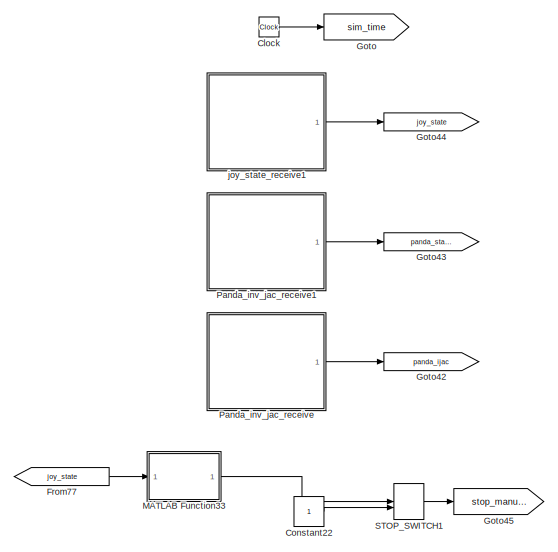
[diagram: root canvas - part 1/12, top left region]
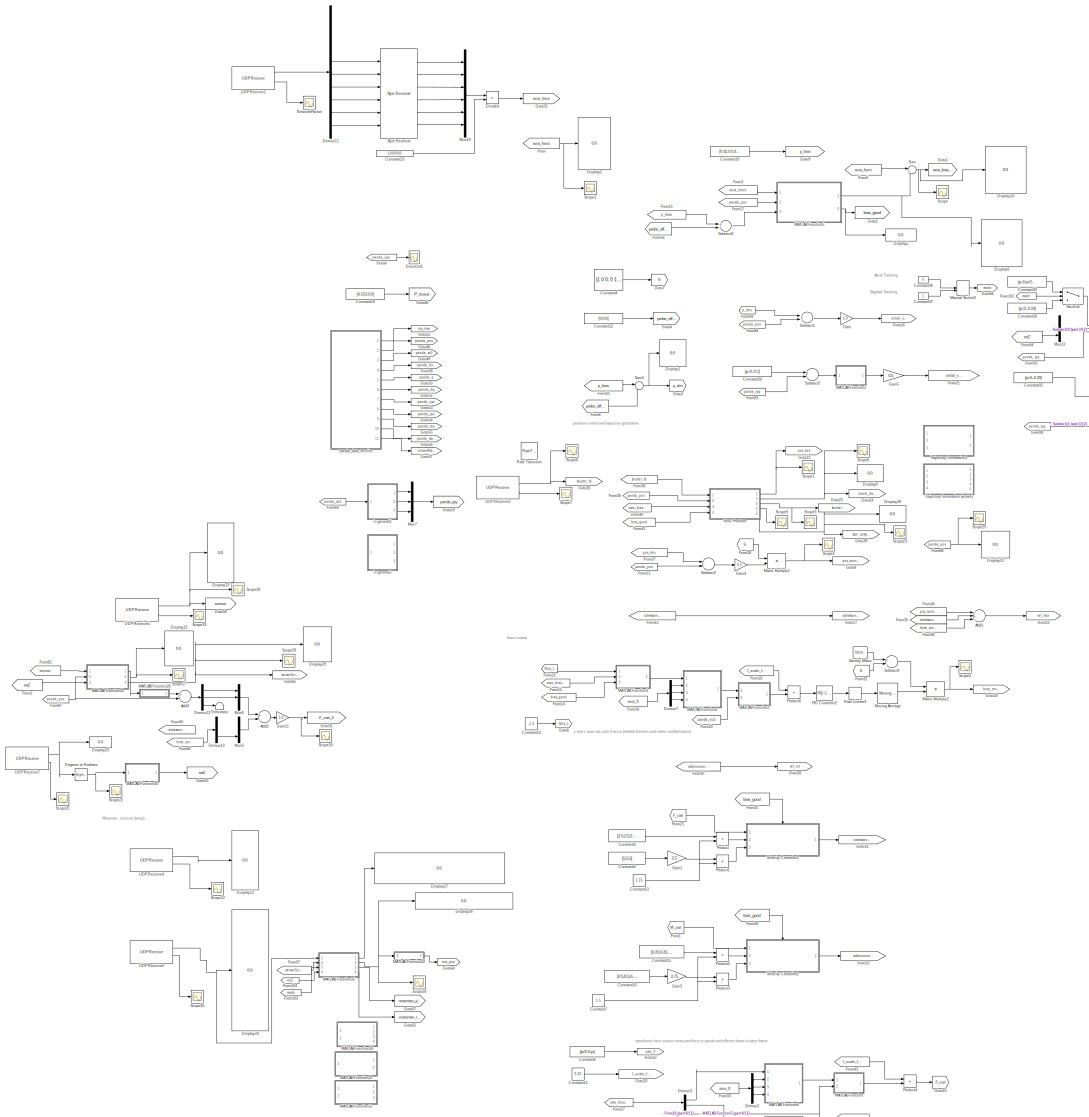
[diagram: root canvas - part 2/12, middle left region]
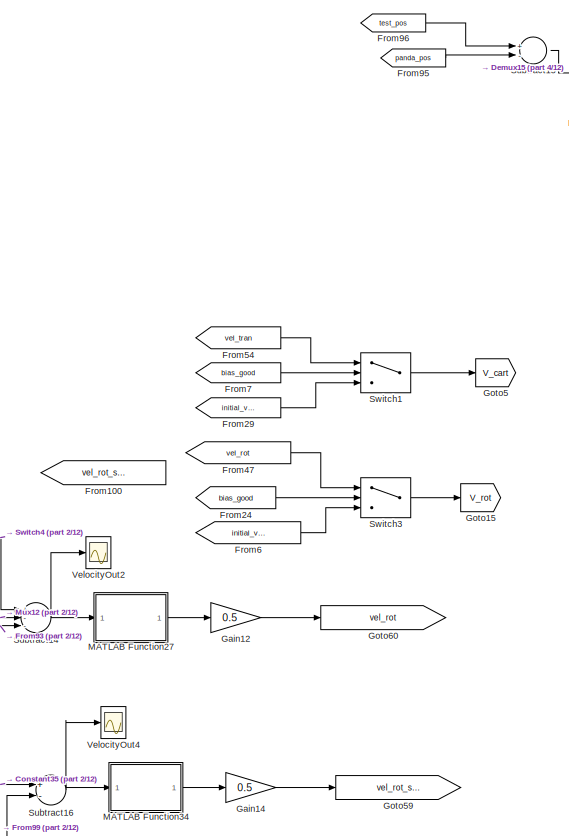
[diagram: root canvas - part 3/12, top center region]
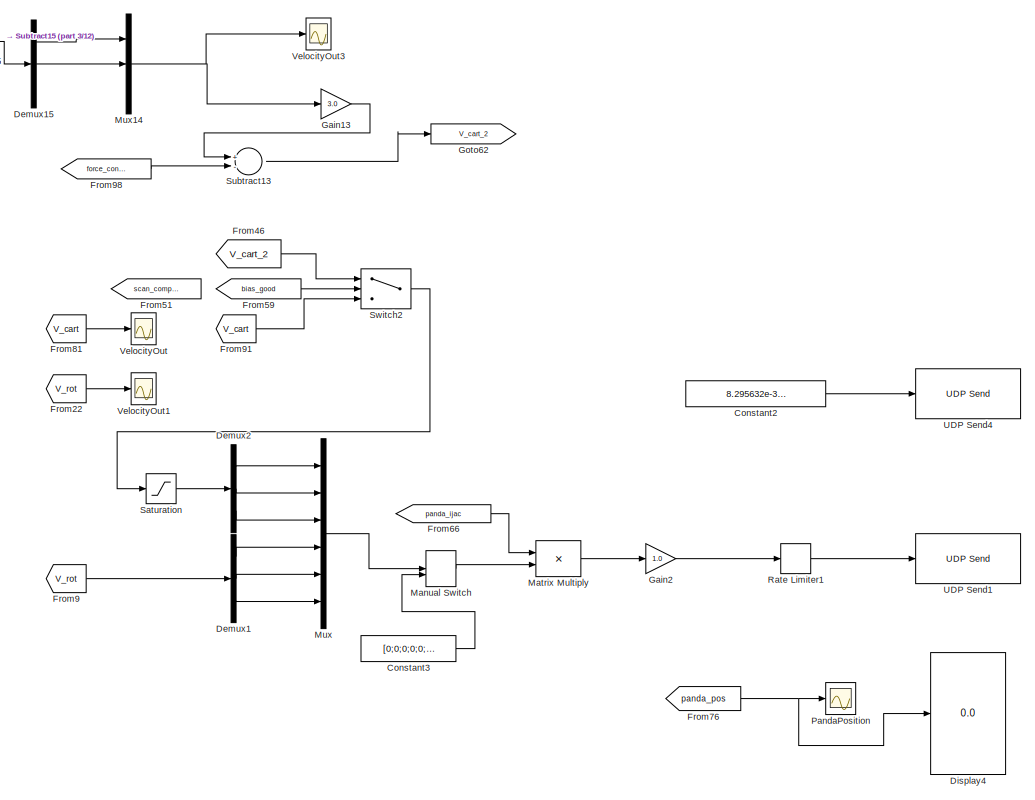
[diagram: root canvas - part 4/12, top center region]
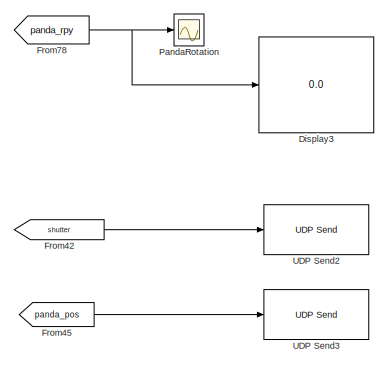
[diagram: root canvas - part 5/12, central region]
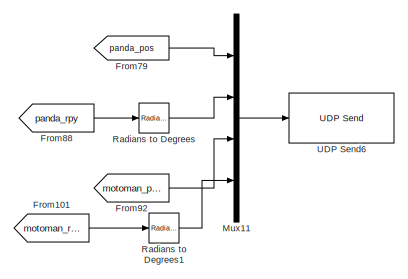
[diagram: root canvas - part 6/12, middle right region]
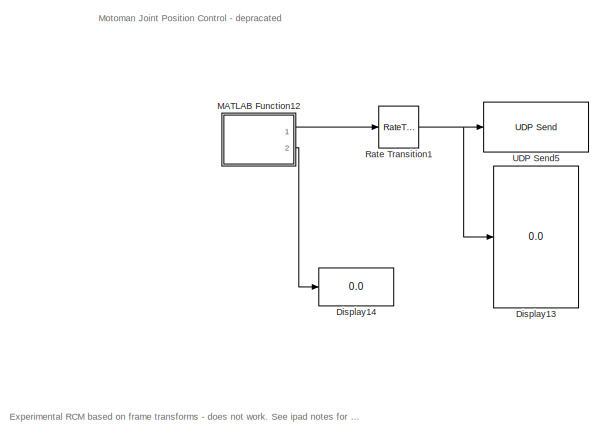
[diagram: root canvas - part 7/12, bottom right region]
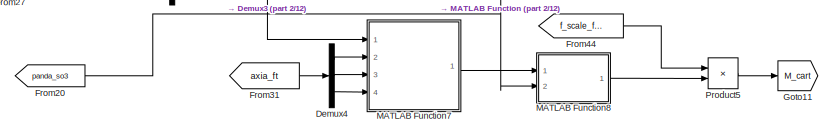
[diagram: root canvas - part 8/12, bottom left region]
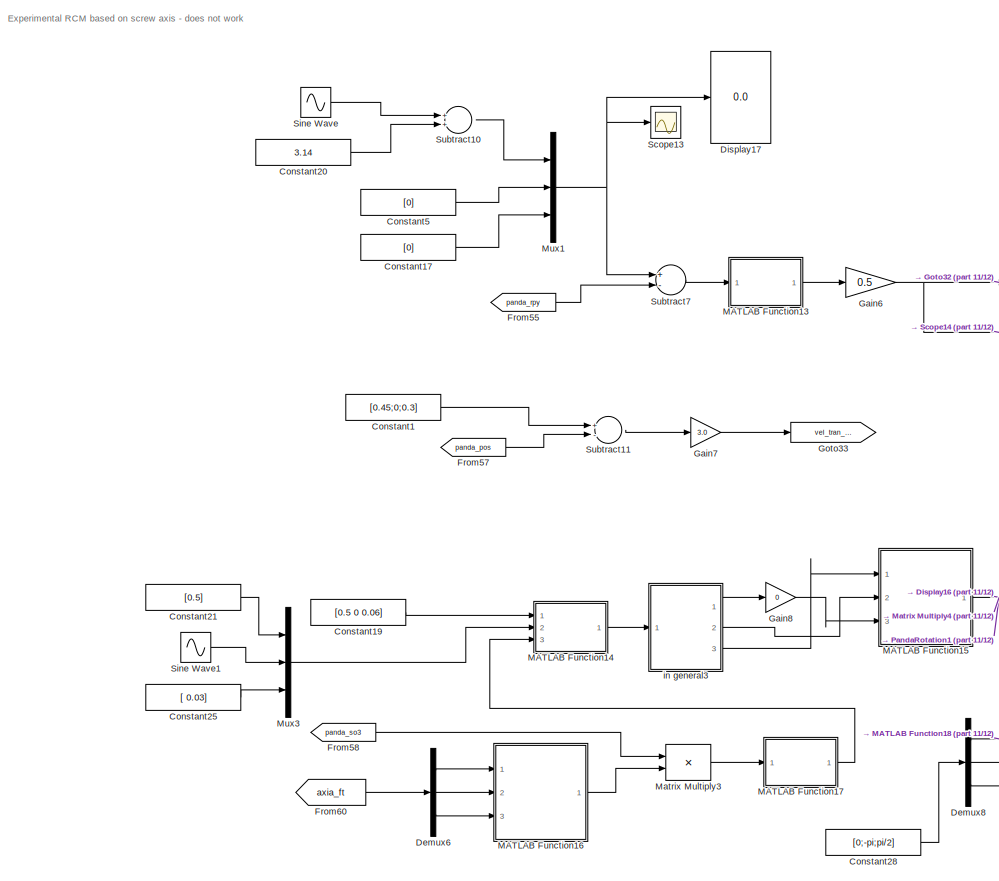
[diagram: root canvas - part 9/12, bottom center region]
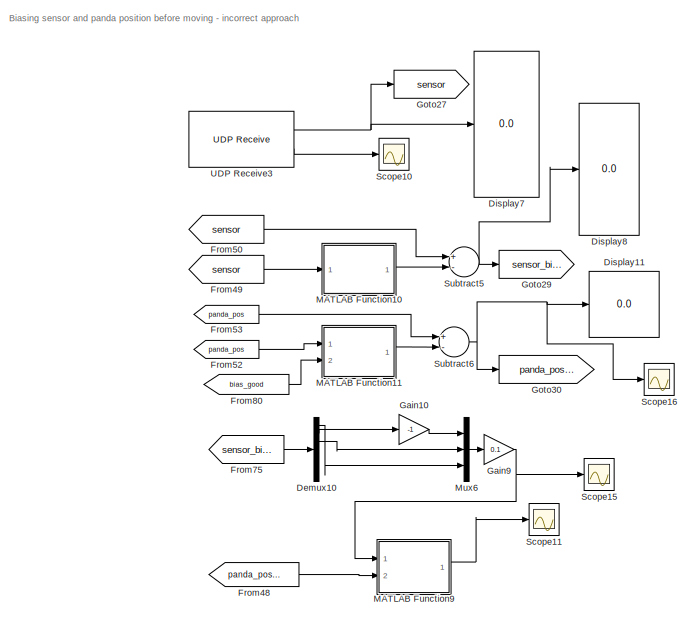
[diagram: root canvas - part 10/12, bottom right region]
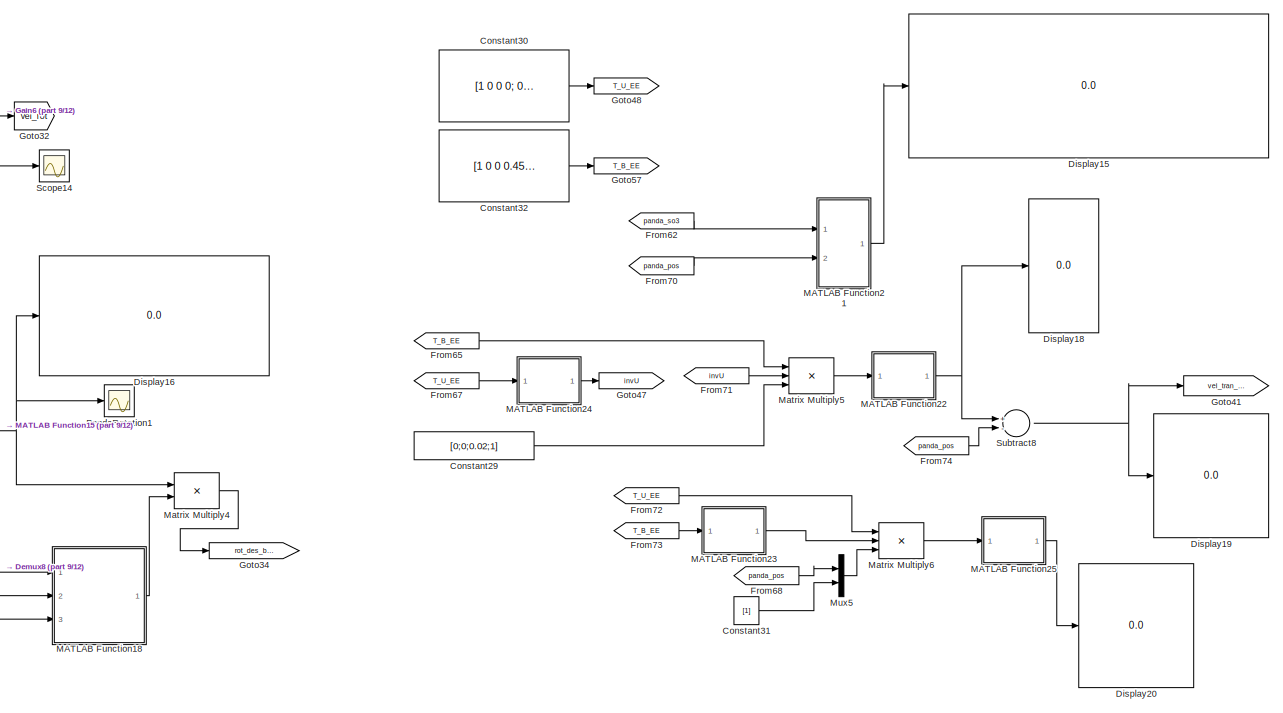
[diagram: root canvas - part 11/12, bottom right region]
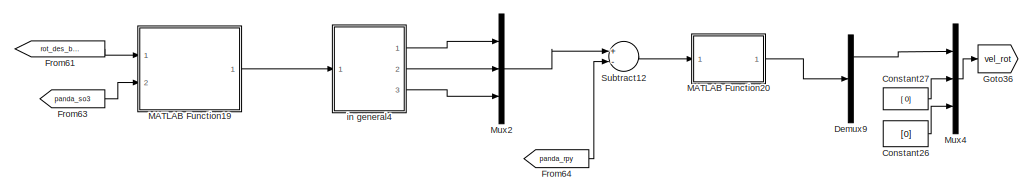
[diagram: root canvas - part 12/12, bottom center region]
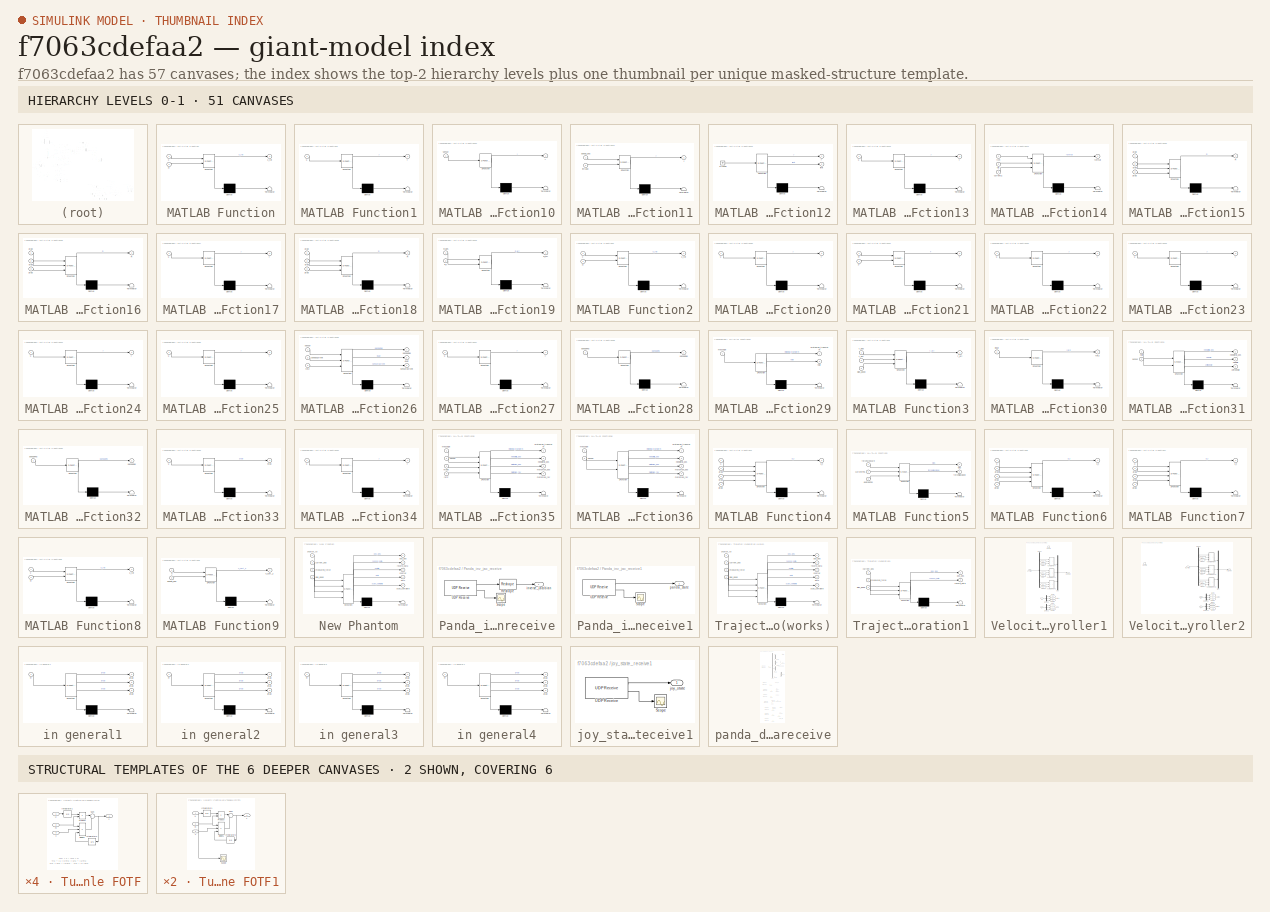
[diagram: thumbnail index - top-2 hierarchy levels (51 canvases) + 2 structural-template representatives of the remaining 6 canvases]
MODEL slx_f7063cdefaa2
KIND model
CONFIG AbsTol = auto
CONFIG EnableMultiTasking = off
CONFIG FixedStep = 0.001
CONFIG MaxStep = auto
CONFIG MinStep = auto
CONFIG RelTol = 1e-3
CONFIG SampleTimeConstraint = Unconstrained
CONFIG Solver = FixedStepAuto
CONFIG SolverName = FixedStepAuto
CONFIG StartTime = 0.0
CONFIG StopTime = inf
BLOCK [Sum] Add1
  InputSameDT = off
  Inputs = ++-
  OutDataTypeStr = Inherit: Inherit via internal rule
  Ports = [3, 1]
  SaturateOnIntegerOverflow = off
BLOCK [Sum] Add2
  InputSameDT = off
  Inputs = +-
  OutDataTypeStr = Inherit: Inherit via internal rule
  Ports = [2, 1]
  SaturateOnIntegerOverflow = off
BLOCK [Sum] Add3
  InputSameDT = off
  Inputs = +-
  OutDataTypeStr = Inherit: Inherit via internal rule
  Ports = [2, 1]
  SaturateOnIntegerOverflow = off
BLOCK [Reference] Byte Reversal  REF=etargetslib/Byte Reversal
  Ports = [6, 6]
  SourceBlock = etargetslib/Byte Reversal
  SourceProductBaseCode = ME
  SourceProductName = MATLAB Coder
  SourceType = Byte Reversal
BLOCK [Clock] Clock
  Decimation = 1
BLOCK [Constant] Constant1
  Commented = on
  Value = [0.45;0;0.3]
BLOCK [Constant] Constant10
  Value = [0.45;0;0.45]
BLOCK [Constant] Constant11
  Value = 0.25
BLOCK [Constant] Constant12
  Value = [0;0;0]
BLOCK [Constant] Constant13
  Value = 2.25
BLOCK [Constant] Constant14
  Value = -1.4
BLOCK [Constant] Constant15
  Commented = on
  Value = [0.25;0.25;0.25]
BLOCK [Constant] Constant16
  Commented = on
  Value = [0.5;0.5;0.5]
BLOCK [Constant] Constant17
  Commented = on
  Value = [0]
BLOCK [Constant] Constant18
  Value = [0.553;0;0]
BLOCK [Constant] Constant19
  Commented = on
  Value = [0.5 0 0.06]
BLOCK [Constant] Constant2
  OutDataTypeStr = double
  Value = 8.295632e-317
BLOCK [Constant] Constant20
  Commented = on
  Value = 3.14
BLOCK [Constant] Constant21
  Commented = on
  Value = [0.5]
BLOCK [Constant] Constant22
BLOCK [Constant] Constant23
  Value = 1000000
BLOCK [Constant] Constant24
  Value = [pi;0;-0.2]
BLOCK [Constant] Constant25
  Commented = on
  Value = [ 0.03]
BLOCK [Constant] Constant26
  Commented = on
  Value = [0]
BLOCK [Constant] Constant27
  Commented = on
  Value = [ 0]
BLOCK [Constant] Constant28
  Commented = on
  Value = [0;-pi;pi/2]
BLOCK [Constant] Constant29
  Commented = on
  Value = [0;0;0.02;1]
BLOCK [Constant] Constant3
  Value = [0;0;0;0;0;0]
BLOCK [Constant] Constant30
  Commented = on
  Value = [1 0 0 0; 0 1 0 0; 0 0 1 -0.05; 0 0 0 1]
BLOCK [Constant] Constant31
  Commented = on
  Value = [1]
BLOCK [Constant] Constant32
  Commented = on
  Value = [1 0 0 0.45; 0 -1 0 0; 0 0 -1 0.3; 0 0 0 1]
BLOCK [Constant] Constant33
  Value = [pi;0;pi/2-0.24]
BLOCK [Constant] Constant34
  Value = [pi;0;-0.24]
BLOCK [Constant] Constant35
  Value = [pi;0;-0.29]
BLOCK [Constant] Constant36
  Value = 0
BLOCK [Constant] Constant37
BLOCK [Constant] Constant4
  Value = [1 0 0; 0 1 0; 0 0 0]
BLOCK [Constant] Constant5
  Commented = on
  Value = [0]
BLOCK [Constant] Constant6
  Value = [pi/2;0;pi]
BLOCK [Constant] Constant7
  Commented = on
  Value = 1.5
BLOCK [Constant] Constant8
  Value = [2.5;2.5;2.5]
BLOCK [Constant] Constant9
  Value = [5;5;5]
BLOCK [Reference] Degrees to Radians  REF=simulink_extras/Transformations/Degrees to
Radians
  Ports = [1, 1]
  SourceBlock = simulink_extras/Transformations/Degrees to\nRadians
  SourceProductBaseCode = SL
  SourceProductName = Simulink
  SourceType = DegreesToRadians
BLOCK [Demux] Demux1
  DisplayOption = bar
  Outputs = 3
  Ports = [1, 3]
BLOCK [Demux] Demux10
  Commented = on
  DisplayOption = bar
  Outputs = 7
  Ports = [1, 7]
BLOCK [Demux] Demux11
  DisplayOption = bar
  Outputs = 9
  Ports = [1, 9]
BLOCK [Demux] Demux12
  DisplayOption = bar
  Outputs = 3
  Ports = [1, 3]
BLOCK [Demux] Demux13
  DisplayOption = bar
  Outputs = 3
  Ports = [1, 3]
BLOCK [Demux] Demux15
  DisplayOption = bar
  Outputs = 3
  Ports = [1, 3]
BLOCK [Demux] Demux2
  DisplayOption = bar
  Outputs = 3
  Ports = [1, 3]
BLOCK [Demux] Demux3
  DisplayOption = bar
  Outputs = 2
  Ports = [1, 2]
BLOCK [Demux] Demux4
  DisplayOption = bar
  Outputs = 3
  Ports = [1, 3]
BLOCK [Demux] Demux5
  DisplayOption = bar
  Outputs = 3
  Ports = [1, 3]
BLOCK [Demux] Demux6
  Commented = on
  DisplayOption = bar
  Outputs = 3
  Ports = [1, 3]
BLOCK [Demux] Demux7
  DisplayOption = bar
  Outputs = 3
  Ports = [1, 3]
BLOCK [Demux] Demux8
  Commented = on
  DisplayOption = bar
  Outputs = 3
  Ports = [1, 3]
BLOCK [Demux] Demux9
  Commented = on
  DisplayOption = bar
  Outputs = 3
  Ports = [1, 3]
BLOCK [Scope] DerivOut1
  Floating = off
  NumInputPorts = 1
  Ports = [1]
  ScopeSpecificationString = Simulink.scopes.TimeScopeBlockCfg('CurrentConfiguration', extmgr.ConfigurationSet(extmgr.Configuration('Core','General UI',true),extmgr.Configuration('Core','Source UI',true),extmgr.Configuration('Sources','WiredSimulink',true,'DataLoggingVariableName','ScopeData3'),extmgr.Configuration('Visuals','Time Domain',true,'SerializedDisplays',{struct('MinYLimReal','-3.25091','MaxYLimReal','3.80484','YLab...<+2513ch>
BLOCK [Display] Display1
  Decimation = 1
  Ports = [1]
BLOCK [Display] Display10
  Decimation = 1
  Ports = [1]
BLOCK [Display] Display11
  Commented = on
  Decimation = 1
  Ports = [1]
BLOCK [Display] Display12
  Decimation = 1
  Ports = [1]
BLOCK [Display] Display13
  Commented = on
  Decimation = 4
  Ports = [1]
BLOCK [Display] Display14
  Commented = on
  Decimation = 4
  Ports = [1]
BLOCK [Display] Display15
  Commented = on
  Decimation = 1
  Ports = [1]
BLOCK [Display] Display16
  Commented = on
  Decimation = 4
  Ports = [1]
BLOCK [Display] Display17
  Commented = on
  Decimation = 1
  Ports = [1]
BLOCK [Display] Display18
  Commented = on
  Decimation = 1
  Ports = [1]
BLOCK [Display] Display19
  Commented = on
  Decimation = 1
  Ports = [1]
BLOCK [Display] Display2
  Decimation = 4
  Ports = [1]
BLOCK [Display] Display20
  Commented = on
  Decimation = 1
  Ports = [1]
BLOCK [Display] Display21
  Decimation = 1
  Ports = [1]
BLOCK [Display] Display22
  Decimation = 1
  Ports = [1]
BLOCK [Display] Display23
  Decimation = 1
  Ports = [1]
BLOCK [Display] Display24
  Decimation = 1
  Ports = [1]
BLOCK [Display] Display25
  Decimation = 1
  Ports = [1]
BLOCK [Display] Display26
  Decimation = 1
  Ports = [1]
BLOCK [Display] Display27
  Decimation = 1
  Ports = [1]
BLOCK [Display] Display28
  Decimation = 1
  Ports = [1]
BLOCK [Display] Display29
  Decimation = 1
  Ports = [1]
BLOCK [Display] Display3
  Decimation = 4
  Format = long
  Ports = [1]
BLOCK [Display] Display4
  Decimation = 4
  Ports = [1]
BLOCK [Display] Display5
  Decimation = 1
  Ports = [1]
BLOCK [Display] Display6
  Decimation = 1
  Ports = [1]
BLOCK [Display] Display7
  Commented = on
  Decimation = 1
  Ports = [1]
BLOCK [Display] Display8
  Commented = on
  Decimation = 1
  Ports = [1]
BLOCK [Display] Display9
  Decimation = 1
  Ports = [1]
BLOCK [Product] Divide4
  InputSameDT = off
  Inputs = */
  OutDataTypeStr = double
  Ports = [2, 1]
  RndMeth = Floor
  SaturateOnIntegerOverflow = off
BLOCK [From] From
  GotoTag = axia_force
BLOCK [From] From1
  Commented = on
  GotoTag = M_cart
BLOCK [From] From10
  GotoTag = p_bias
BLOCK [From] From100
  Commented = on
  GotoTag = vel_rot_scan
BLOCK [From] From101
  GotoTag = motoman_rpy
BLOCK [From] From102
  GotoTag = mode
BLOCK [From] From103
  GotoTag = mode
BLOCK [From] From104
  GotoTag = rotZ
BLOCK [From] From11
  GotoTag = p_bias
BLOCK [From] From12
  Commented = on
  GotoTag = admission_vel_cart
BLOCK [From] From13
  GotoTag = panda_pos
BLOCK [From] From14
  GotoTag = bias_good
BLOCK [From] From15
  GotoTag = axia_biased
BLOCK [From] From16
  GotoTag = axia_ft
BLOCK [From] From17
  GotoTag = panda_pos
BLOCK [From] From18
  GotoTag = f_scale_factor
BLOCK [From] From19
  GotoTag = panda_so3
BLOCK [From] From2
  GotoTag = rotZ
BLOCK [From] From20
  GotoTag = panda_so3
BLOCK [From] From21
  GotoTag = F_cart
BLOCK [From] From22
  GotoTag = V_rot
BLOCK [From] From23
  GotoTag = fdes_z
BLOCK [From] From24
  GotoTag = bias_good
BLOCK [From] From25
  GotoTag = bias_good
BLOCK [From] From26
  Commented = on
  GotoTag = bias_good
BLOCK [From] From27
  GotoTag = axia_biased
BLOCK [From] From28
  GotoTag = S
BLOCK [From] From29
  GotoTag = initial_vel_tran
BLOCK [From] From3
  GotoTag = axia_force
BLOCK [From] From30
  Commented = on
  GotoTag = admission_vel_rot
BLOCK [From] From31
  GotoTag = axia_ft
BLOCK [From] From32
  GotoTag = S
BLOCK [From] From33
  GotoTag = axia_ft
BLOCK [From] From34
  GotoTag = pos_control
BLOCK [From] From35
  GotoTag = admission_control
BLOCK [From] From36
  GotoTag = force_control
BLOCK [From] From37
  GotoTag = pos_des
BLOCK [From] From38
  GotoTag = shutter_fb
BLOCK [From] From39
  GotoTag = panda_pos
BLOCK [From] From4
  GotoTag = panda_ijac
BLOCK [From] From40
  GotoTag = axia_biased
BLOCK [From] From41
  GotoTag = bias_good
BLOCK [From] From42
  GotoTag = shutter
BLOCK [From] From43
  GotoTag = f_scale_factor
BLOCK [From] From44
  GotoTag = f_scale_factor
BLOCK [From] From45
  GotoTag = panda_pos
BLOCK [From] From46
  GotoTag = V_cart_2
BLOCK [From] From47
  GotoTag = vel_rot
BLOCK [From] From48
  Commented = on
  GotoTag = panda_pos_biased
BLOCK [From] From49
  Commented = on
  GotoTag = sensor
BLOCK [From] From5
  GotoTag = axia_force
BLOCK [From] From50
  Commented = on
  GotoTag = sensor
BLOCK [From] From51
  Commented = on
  GotoTag = scan_complete
BLOCK [From] From52
  Commented = on
  GotoTag = panda_pos
BLOCK [From] From53
  Commented = on
  GotoTag = panda_pos
BLOCK [From] From54
  GotoTag = vel_tran
BLOCK [From] From55
  Commented = on
  GotoTag = panda_rpy
BLOCK [From] From56
  GotoTag = probe_offset
BLOCK [From] From57
  Commented = on
  GotoTag = panda_pos
BLOCK [From] From58
  Commented = on
  GotoTag = panda_so3
BLOCK [From] From59
  GotoTag = bias_good
BLOCK [From] From6
  GotoTag = initial_vel_rot
BLOCK [From] From60
  Commented = on
  GotoTag = axia_ft
BLOCK [From] From61
  Commented = on
  GotoTag = rot_des_bf2
BLOCK [From] From62
  Commented = on
  GotoTag = panda_so3
BLOCK [From] From63
  Commented = on
  GotoTag = panda_so3
BLOCK [From] From64
  Commented = on
  GotoTag = panda_rpy
BLOCK [From] From65
  Commented = on
  GotoTag = T_B_EE
BLOCK [From] From66
  GotoTag = panda_ijac
BLOCK [From] From67
  Commented = on
  GotoTag = T_U_EE
BLOCK [From] From68
  Commented = on
  GotoTag = panda_pos
BLOCK [From] From69
  GotoTag = panda_so3
BLOCK [From] From7
  GotoTag = bias_good
BLOCK [From] From70
  Commented = on
  GotoTag = panda_pos
BLOCK [From] From71
  Commented = on
  GotoTag = invU
BLOCK [From] From72
  Commented = on
  GotoTag = T_U_EE
BLOCK [From] From73
  Commented = on
  GotoTag = T_B_EE
BLOCK [From] From74
  Commented = on
  GotoTag = panda_pos
BLOCK [From] From75
  Commented = on
  GotoTag = sensor_biased
BLOCK [From] From76
  GotoTag = panda_pos
BLOCK [From] From77
  GotoTag = joy_state
BLOCK [From] From78
  GotoTag = panda_rpy
BLOCK [From] From79
  GotoTag = panda_pos
BLOCK [From] From8
  GotoTag = probe_offset
BLOCK [From] From80
  Commented = on
  GotoTag = bias_good
BLOCK [From] From81
  GotoTag = V_cart
BLOCK [From] From82
  GotoTag = force_control
BLOCK [From] From83
  GotoTag = panda_rpy
BLOCK [From] From84
  GotoTag = panda_pos
BLOCK [From] From85
  GotoTag = sensor
BLOCK [From] From86
  GotoTag = panda_pos
BLOCK [From] From87
  GotoTag = panda_pos
BLOCK [From] From88
  GotoTag = panda_rpy
BLOCK [From] From89
  GotoTag = p_des
BLOCK [From] From9
  GotoTag = V_rot
BLOCK [From] From90
  Commented = on
  GotoTag = admission_control
BLOCK [From] From91
  GotoTag = V_cart
BLOCK [From] From92
  GotoTag = motoman_pos
BLOCK [From] From93
  GotoTag = panda_rpy
BLOCK [From] From94
  GotoTag = rotZ
BLOCK [From] From95
  GotoTag = panda_pos
BLOCK [From] From96
  GotoTag = test_pos
BLOCK [From] From97
  GotoTag = sensorCurrent
BLOCK [From] From98
  GotoTag = force_control
BLOCK [From] From99
  GotoTag = panda_rpy
BLOCK [Gain] Gain
  Gain = 3.0
  OutDataTypeStr = Inherit: Inherit via internal rule
  ParamDataTypeStr = Inherit: Inherit via internal rule
  SaturateOnIntegerOverflow = off
BLOCK [Gain] Gain1
  Gain = 2.5
  OutDataTypeStr = Inherit: Inherit via internal rule
  ParamDataTypeStr = Inherit: Inherit via internal rule
  SaturateOnIntegerOverflow = off
BLOCK [Gain] Gain10
  Commented = on
  Gain = -1
  OutDataTypeStr = Inherit: Inherit via internal rule
  ParamDataTypeStr = Inherit: Inherit via internal rule
  SaturateOnIntegerOverflow = off
BLOCK [Gain] Gain11
  Gain = 3.0
  OutDataTypeStr = Inherit: Inherit via internal rule
  ParamDataTypeStr = Inherit: Inherit via internal rule
  SaturateOnIntegerOverflow = off
BLOCK [Gain] Gain12
  Gain = 0.5
  OutDataTypeStr = Inherit: Inherit via internal rule
  ParamDataTypeStr = Inherit: Inherit via internal rule
  SaturateOnIntegerOverflow = off
BLOCK [Gain] Gain13
  Gain = 3.0
  OutDataTypeStr = Inherit: Inherit via internal rule
  ParamDataTypeStr = Inherit: Inherit via internal rule
  SaturateOnIntegerOverflow = off
BLOCK [Gain] Gain14
  Gain = 0.5
  OutDataTypeStr = Inherit: Inherit via internal rule
  ParamDataTypeStr = Inherit: Inherit via internal rule
  SaturateOnIntegerOverflow = off
BLOCK [Gain] Gain2
  Gain = 1.0
  OutDataTypeStr = Inherit: Inherit via internal rule
  ParamDataTypeStr = Inherit: Inherit via internal rule
  SaturateOnIntegerOverflow = off
BLOCK [Gain] Gain3
  Commented = on
  Gain = 2.75
  OutDataTypeStr = Inherit: Inherit via internal rule
  ParamDataTypeStr = Inherit: Inherit via internal rule
  SaturateOnIntegerOverflow = off
BLOCK [Gain] Gain4
  Gain = 0.5
  OutDataTypeStr = Inherit: Inherit via internal rule
  ParamDataTypeStr = Inherit: Inherit via internal rule
  SaturateOnIntegerOverflow = off
BLOCK [Gain] Gain5
  Gain = 0.5
  OutDataTypeStr = Inherit: Inherit via internal rule
  ParamDataTypeStr = Inherit: Inherit via internal rule
  SaturateOnIntegerOverflow = off
BLOCK [Gain] Gain6
  Commented = on
  Gain = 0.5
  OutDataTypeStr = Inherit: Inherit via internal rule
  ParamDataTypeStr = Inherit: Inherit via internal rule
  SaturateOnIntegerOverflow = off
BLOCK [Gain] Gain7
  Commented = on
  Gain = 3.0
  OutDataTypeStr = Inherit: Inherit via internal rule
  ParamDataTypeStr = Inherit: Inherit via internal rule
  SaturateOnIntegerOverflow = off
BLOCK [Gain] Gain8
  Commented = on
  Gain = 0
  OutDataTypeStr = Inherit: Inherit via internal rule
  ParamDataTypeStr = Inherit: Inherit via internal rule
  SaturateOnIntegerOverflow = off
BLOCK [Gain] Gain9
  Commented = on
  Gain = 0.1
  OutDataTypeStr = Inherit: Inherit via internal rule
  ParamDataTypeStr = Inherit: Inherit via internal rule
  SaturateOnIntegerOverflow = off
BLOCK [Goto] Goto
  GotoTag = sim_time
BLOCK [Goto] Goto1
  GotoTag = axia_biased
BLOCK [Goto] Goto10
  GotoTag = F_cart
BLOCK [Goto] Goto11
  GotoTag = M_cart
BLOCK [Goto] Goto12
  GotoTag = axia_ft
BLOCK [Goto] Goto13
  Commented = on
  GotoTag = admission_vel_rot
BLOCK [Goto] Goto14
  GotoTag = admission_vel_cart
BLOCK [Goto] Goto15
  GotoTag = V_rot
BLOCK [Goto] Goto16
  GotoTag = initial_vel_tran
BLOCK [Goto] Goto17
  Commented = on
  GotoTag = admission_control
BLOCK [Goto] Goto18
  GotoTag = force_control
BLOCK [Goto] Goto19
  GotoTag = panda_rpy
BLOCK [Goto] Goto2
  GotoTag = bias_good
BLOCK [Goto] Goto20
  GotoTag = f_scale_factor
BLOCK [Goto] Goto21
  GotoTag = initial_vel_rot
BLOCK [Goto] Goto22
  GotoTag = vel_tran
BLOCK [Goto] Goto23
  GotoTag = pos_des
BLOCK [Goto] Goto24
  GotoTag = record_data
BLOCK [Goto] Goto25
  GotoTag = shutter
BLOCK [Goto] Goto26
  GotoTag = shutter_fb
BLOCK [Goto] Goto27
  Commented = on
  GotoTag = sensor
BLOCK [Goto] Goto28
  Commented = on
  GotoTag = vel_rot
BLOCK [Goto] Goto29
  Commented = on
  GotoTag = sensor_biased
BLOCK [Goto] Goto3
  GotoTag = p_des
BLOCK [Goto] Goto30
  Commented = on
  GotoTag = panda_pos_biased
BLOCK [Goto] Goto31
  Commented = on
  GotoTag = V_cart_2
BLOCK [Goto] Goto32
  Commented = on
  GotoTag = vel_rot
BLOCK [Goto] Goto33
  Commented = on
  GotoTag = vel_tran_temp
BLOCK [Goto] Goto34
  Commented = on
  GotoTag = rot_des_bf2
BLOCK [Goto] Goto35
  GotoTag = axia_force
BLOCK [Goto] Goto36
  Commented = on
  GotoTag = vel_rot
BLOCK [Goto] Goto37
  GotoTag = networkVals
BLOCK [Goto] Goto38
  GotoTag = panda_force
BLOCK [Goto] Goto39
  GotoTag = scan_complete
BLOCK [Goto] Goto4
  GotoTag = probe_offset
BLOCK [Goto] Goto40
  GotoTag = P_tissue
BLOCK [Goto] Goto41
  Commented = on
  GotoTag = vel_tran_temp
BLOCK [Goto] Goto42
  Commented = on
  GotoTag = panda_ijac
BLOCK [Goto] Goto43
  Commented = on
  GotoTag = panda_state
BLOCK [Goto] Goto44
  GotoTag = joy_state
BLOCK [Goto] Goto45
  GotoTag = stop_manual
BLOCK [Goto] Goto46
  GotoTag = panda_pos
BLOCK [Goto] Goto47
  Commented = on
  GotoTag = invU
BLOCK [Goto] Goto48
  Commented = on
  GotoTag = T_U_EE
BLOCK [Goto] Goto49
  GotoTag = panda_so3
BLOCK [Goto] Goto5
  GotoTag = V_cart
BLOCK [Goto] Goto50
  GotoTag = panda_q
BLOCK [Goto] Goto51
  GotoTag = panda_dq
BLOCK [Goto] Goto52
  GotoTag = ros_time
BLOCK [Goto] Goto53
  GotoTag = panda_ijac
BLOCK [Goto] Goto54
  GotoTag = panda_jac
BLOCK [Goto] Goto55
  GotoTag = panda_tau
BLOCK [Goto] Goto56
  GotoTag = panda_state
BLOCK [Goto] Goto57
  Commented = on
  GotoTag = T_B_EE
BLOCK [Goto] Goto58
  GotoTag = sensor
BLOCK [Goto] Goto59
  GotoTag = vel_rot_scan
BLOCK [Goto] Goto6
  GotoTag = fdes_z
BLOCK [Goto] Goto60
  GotoTag = vel_rot
BLOCK [Goto] Goto61
  GotoTag = motoman_rpy
BLOCK [Goto] Goto62
  GotoTag = V_cart_2
BLOCK [Goto] Goto63
  GotoTag = rotZ
BLOCK [Goto] Goto64
  GotoTag = test_pos
BLOCK [Goto] Goto65
  GotoTag = sensorCurrent
BLOCK [Goto] Goto66
  GotoTag = mode
BLOCK [Goto] Goto67
  GotoTag = motoman_pos
BLOCK [Goto] Goto7
  GotoTag = S
BLOCK [Goto] Goto8
  GotoTag = pos_control
BLOCK [Goto] Goto9
  GotoTag = p_bias
BLOCK [Reference] Identity Matrix  REF=dspmtrx3/Identity Matrix
  Ports = [0, 1]
  SourceBlock = dspmtrx3/Identity Matrix
  SourceProductBaseCode = DS
  SourceProductName = DSP System Toolbox
  SourceType = Identity Matrix
BLOCK [SubSystem] MATLAB Function
  ErrorFcn = Stateflow.Translate.translate
  PermitHierarchicalResolution = ExplicitOnly
  Ports = [2, 1]
  RequestExecContextInheritance = off
  SFBlockType = MATLAB Function
  TreatAsAtomicUnit = on
BLOCK [Demux] MATLAB Function/ Demux 
  Outputs = 1
  Ports = [1, 1]
BLOCK [S-Function] MATLAB Function/ SFunction 
  EnableBusSupport = on
  FunctionName = sf_sfun
  PortCounts = [2 2]
  Ports = [2, 2]
  SFcnIsStateOwnerBlock = off
  SFunctionDeploymentMode = off
  Tag = Stateflow S-Function AutonomousScan 5
BLOCK [Terminator] MATLAB Function/ Terminator 
BLOCK [Inport] MATLAB Function/R
  IconDisplay = Port number
  Port = 2
BLOCK [Inport] MATLAB Function/x
  IconDisplay = Port number
BLOCK [Outport] MATLAB Function/x_rot
  IconDisplay = Port number
BLOCK [SubSystem] MATLAB Function1
  ErrorFcn = Stateflow.Translate.translate
  PermitHierarchicalResolution = ExplicitOnly
  Ports = [1, 1]
  RequestExecContextInheritance = off
  SFBlockType = MATLAB Function
  TreatAsAtomicUnit = on
BLOCK [Demux] MATLAB Function1/ Demux 
  Outputs = 1
  Ports = [1, 1]
BLOCK [S-Function] MATLAB Function1/ SFunction 
  EnableBusSupport = on
  FunctionName = sf_sfun
  PortCounts = [1 2]
  Ports = [1, 2]
  SFcnIsStateOwnerBlock = off
  SFunctionDeploymentMode = off
  Tag = Stateflow S-Function AutonomousScan 1
BLOCK [Terminator] MATLAB Function1/ Terminator 
BLOCK [Inport] MATLAB Function1/u
  IconDisplay = Port number
BLOCK [Outport] MATLAB Function1/y
  IconDisplay = Port number
BLOCK [SubSystem] MATLAB Function10
  Commented = on
  ErrorFcn = Stateflow.Translate.translate
  PermitHierarchicalResolution = ExplicitOnly
  Ports = [1, 1]
  RequestExecContextInheritance = off
  SFBlockType = MATLAB Function
  TreatAsAtomicUnit = on
BLOCK [Demux] MATLAB Function10/ Demux 
  Outputs = 1
  Ports = [1, 1]
BLOCK [S-Function] MATLAB Function10/ SFunction 
  EnableBusSupport = on
  FunctionName = sf_sfun
  PortCounts = [1 2]
  Ports = [1, 2]
  SFcnIsStateOwnerBlock = off
  SFunctionDeploymentMode = off
  Tag = Stateflow S-Function AutonomousScan 14
BLOCK [Terminator] MATLAB Function10/ Terminator 
BLOCK [Inport] MATLAB Function10/sensor
  IconDisplay = Port number
BLOCK [Outport] MATLAB Function10/y
  IconDisplay = Port number
BLOCK [SubSystem] MATLAB Function11
  Commented = on
  ErrorFcn = Stateflow.Translate.translate
  PermitHierarchicalResolution = ExplicitOnly
  Ports = [2, 1]
  RequestExecContextInheritance = off
  SFBlockType = MATLAB Function
  TreatAsAtomicUnit = on
BLOCK [Demux] MATLAB Function11/ Demux 
  Outputs = 1
  Ports = [1, 1]
BLOCK [S-Function] MATLAB Function11/ SFunction 
  EnableBusSupport = on
  FunctionName = sf_sfun
  PortCounts = [2 2]
  Ports = [2, 2]
  SFcnIsStateOwnerBlock = off
  SFunctionDeploymentMode = off
  Tag = Stateflow S-Function AutonomousScan 15
BLOCK [Terminator] MATLAB Function11/ Terminator 
BLOCK [Inport] MATLAB Function11/intraop
  IconDisplay = Port number
  Port = 2
BLOCK [Inport] MATLAB Function11/panda_pos
  IconDisplay = Port number
BLOCK [Outport] MATLAB Function11/y
  IconDisplay = Port number
BLOCK [SubSystem] MATLAB Function12
  Commented = on
  ErrorFcn = Stateflow.Translate.translate
  PermitHierarchicalResolution = ExplicitOnly
  Ports = [0, 2]
  RequestExecContextInheritance = off
  SFBlockType = MATLAB Function
  TreatAsAtomicUnit = on
BLOCK [Demux] MATLAB Function12/ Demux 
  Outputs = 1
  Ports = [1, 1]
BLOCK [Ground] MATLAB Function12/ Ground 
BLOCK [S-Function] MATLAB Function12/ SFunction 
  EnableBusSupport = on
  FunctionName = sf_sfun
  PortCounts = [1 3]
  Ports = [1, 3]
  SFcnIsStateOwnerBlock = off
  SFunctionDeploymentMode = off
  Tag = Stateflow S-Function AutonomousScan 16
BLOCK [Terminator] MATLAB Function12/ Terminator 
BLOCK [Outport] MATLAB Function12/limit
  IconDisplay = Port number
  Port = 2
BLOCK [Outport] MATLAB Function12/y
  IconDisplay = Port number
BLOCK [SubSystem] MATLAB Function13
  Commented = on
  ErrorFcn = Stateflow.Translate.translate
  PermitHierarchicalResolution = ExplicitOnly
  Ports = [1, 1]
  RequestExecContextInheritance = off
  SFBlockType = MATLAB Function
  TreatAsAtomicUnit = on
BLOCK [Demux] MATLAB Function13/ Demux 
  Outputs = 1
  Ports = [1, 1]
BLOCK [S-Function] MATLAB Function13/ SFunction 
  EnableBusSupport = on
  FunctionName = sf_sfun
  PortCounts = [1 2]
  Ports = [1, 2]
  SFcnIsStateOwnerBlock = off
  SFunctionDeploymentMode = off
  Tag = Stateflow S-Function AutonomousScan 17
BLOCK [Terminator] MATLAB Function13/ Terminator 
BLOCK [Inport] MATLAB Function13/u
  IconDisplay = Port number
BLOCK [Outport] MATLAB Function13/y
  IconDisplay = Port number
BLOCK [SubSystem] MATLAB Function14
  Commented = on
  ErrorFcn = Stateflow.Translate.translate
  PermitHierarchicalResolution = ExplicitOnly
  Ports = [3, 1]
  RequestExecContextInheritance = off
  SFBlockType = MATLAB Function
  TreatAsAtomicUnit = on
BLOCK [Demux] MATLAB Function14/ Demux 
  Outputs = 1
  Ports = [1, 1]
BLOCK [S-Function] MATLAB Function14/ SFunction 
  EnableBusSupport = on
  FunctionName = sf_sfun
  PortCounts = [3 2]
  Ports = [3, 2]
  SFcnIsStateOwnerBlock = off
  SFunctionDeploymentMode = off
  Tag = Stateflow S-Function AutonomousScan 18
BLOCK [Terminator] MATLAB Function14/ Terminator 
BLOCK [Inport] MATLAB Function14/currentZ
  IconDisplay = Port number
  Port = 3
BLOCK [Inport] MATLAB Function14/rcm
  IconDisplay = Port number
BLOCK [Outport] MATLAB Function14/rotmat
  IconDisplay = Port number
BLOCK [Inport] MATLAB Function14/tip
  IconDisplay = Port number
  Port = 2
BLOCK [SubSystem] MATLAB Function15
  Commented = on
  ErrorFcn = Stateflow.Translate.translate
  PermitHierarchicalResolution = ExplicitOnly
  Ports = [3, 1]
  RequestExecContextInheritance = off
  SFBlockType = MATLAB Function
  TreatAsAtomicUnit = on
BLOCK [Demux] MATLAB Function15/ Demux 
  Outputs = 1
  Ports = [1, 1]
BLOCK [S-Function] MATLAB Function15/ SFunction 
  EnableBusSupport = on
  FunctionName = sf_sfun
  PortCounts = [3 2]
  Ports = [3, 2]
  SFcnIsStateOwnerBlock = off
  SFunctionDeploymentMode = off
  Tag = Stateflow S-Function AutonomousScan 20
BLOCK [Terminator] MATLAB Function15/ Terminator 
BLOCK [Outport] MATLAB Function15/R
  IconDisplay = Port number
BLOCK [Inport] MATLAB Function15/arad
  IconDisplay = Port number
BLOCK [Inport] MATLAB Function15/brad
  IconDisplay = Port number
  Port = 2
BLOCK [Inport] MATLAB Function15/grad
  IconDisplay = Port number
  Port = 3
BLOCK [SubSystem] MATLAB Function16
  Commented = on
  ErrorFcn = Stateflow.Translate.translate
  PermitHierarchicalResolution = ExplicitOnly
  Ports = [3, 1]
  RequestExecContextInheritance = off
  SFBlockType = MATLAB Function
  TreatAsAtomicUnit = on
BLOCK [Demux] MATLAB Function16/ Demux 
  Outputs = 1
  Ports = [1, 1]
BLOCK [S-Function] MATLAB Function16/ SFunction 
  EnableBusSupport = on
  FunctionName = sf_sfun
  PortCounts = [3 2]
  Ports = [3, 2]
  SFcnIsStateOwnerBlock = off
  SFunctionDeploymentMode = off
  Tag = Stateflow S-Function AutonomousScan 21
BLOCK [Terminator] MATLAB Function16/ Terminator 
BLOCK [Outport] MATLAB Function16/R
  IconDisplay = Port number
BLOCK [Inport] MATLAB Function16/arad
  IconDisplay = Port number
BLOCK [Inport] MATLAB Function16/brad
  IconDisplay = Port number
  Port = 2
BLOCK [Inport] MATLAB Function16/grad
  IconDisplay = Port number
  Port = 3
BLOCK [SubSystem] MATLAB Function17
  Commented = on
  ErrorFcn = Stateflow.Translate.translate
  PermitHierarchicalResolution = ExplicitOnly
  Ports = [1, 1]
  RequestExecContextInheritance = off
  SFBlockType = MATLAB Function
  TreatAsAtomicUnit = on
BLOCK [Demux] MATLAB Function17/ Demux 
  Outputs = 1
  Ports = [1, 1]
BLOCK [S-Function] MATLAB Function17/ SFunction 
  EnableBusSupport = on
  FunctionName = sf_sfun
  PortCounts = [1 2]
  Ports = [1, 2]
  SFcnIsStateOwnerBlock = off
  SFunctionDeploymentMode = off
  Tag = Stateflow S-Function AutonomousScan 90
BLOCK [Terminator] MATLAB Function17/ Terminator 
BLOCK [Inport] MATLAB Function17/u
  IconDisplay = Port number
BLOCK [Outport] MATLAB Function17/y
  IconDisplay = Port number
BLOCK [SubSystem] MATLAB Function18
  Commented = on
  ErrorFcn = Stateflow.Translate.translate
  PermitHierarchicalResolution = ExplicitOnly
  Ports = [3, 1]
  RequestExecContextInheritance = off
  SFBlockType = MATLAB Function
  TreatAsAtomicUnit = on
BLOCK [Demux] MATLAB Function18/ Demux 
  Outputs = 1
  Ports = [1, 1]
BLOCK [S-Function] MATLAB Function18/ SFunction 
  EnableBusSupport = on
  FunctionName = sf_sfun
  PortCounts = [3 2]
  Ports = [3, 2]
  SFcnIsStateOwnerBlock = off
  SFunctionDeploymentMode = off
  Tag = Stateflow S-Function AutonomousScan 22
BLOCK [Terminator] MATLAB Function18/ Terminator 
BLOCK [Outport] MATLAB Function18/R
  IconDisplay = Port number
BLOCK [Inport] MATLAB Function18/arad
  IconDisplay = Port number
BLOCK [Inport] MATLAB Function18/brad
  IconDisplay = Port number
  Port = 2
BLOCK [Inport] MATLAB Function18/grad
  IconDisplay = Port number
  Port = 3
BLOCK [SubSystem] MATLAB Function19
  Commented = on
  ErrorFcn = Stateflow.Translate.translate
  PermitHierarchicalResolution = ExplicitOnly
  Ports = [2, 1]
  RequestExecContextInheritance = off
  SFBlockType = MATLAB Function
  TreatAsAtomicUnit = on
BLOCK [Demux] MATLAB Function19/ Demux 
  Outputs = 1
  Ports = [1, 1]
BLOCK [S-Function] MATLAB Function19/ SFunction 
  EnableBusSupport = on
  FunctionName = sf_sfun
  PortCounts = [2 2]
  Ports = [2, 2]
  SFcnIsStateOwnerBlock = off
  SFunctionDeploymentMode = off
  Tag = Stateflow S-Function AutonomousScan 56
BLOCK [Terminator] MATLAB Function19/ Terminator 
BLOCK [Inport] MATLAB Function19/R_des
  IconDisplay = Port number
BLOCK [Outport] MATLAB Function19/R_err
  IconDisplay = Port number
BLOCK [Inport] MATLAB Function19/R_i
  IconDisplay = Port number
  Port = 2
BLOCK [SubSystem] MATLAB Function2
  ErrorFcn = Stateflow.Translate.translate
  PermitHierarchicalResolution = ExplicitOnly
  Ports = [2, 1]
  RequestExecContextInheritance = off
  SFBlockType = MATLAB Function
  TreatAsAtomicUnit = on
BLOCK [Demux] MATLAB Function2/ Demux 
  Outputs = 1
  Ports = [1, 1]
BLOCK [S-Function] MATLAB Function2/ SFunction 
  EnableBusSupport = on
  FunctionName = sf_sfun
  PortCounts = [2 2]
  Ports = [2, 2]
  SFcnIsStateOwnerBlock = off
  SFunctionDeploymentMode = off
  Tag = Stateflow S-Function AutonomousScan 2
BLOCK [Terminator] MATLAB Function2/ Terminator 
BLOCK [Inport] MATLAB Function2/R
  IconDisplay = Port number
  Port = 2
BLOCK [Inport] MATLAB Function2/x
  IconDisplay = Port number
BLOCK [Outport] MATLAB Function2/x_rot
  IconDisplay = Port number
BLOCK [SubSystem] MATLAB Function20
  Commented = on
  ErrorFcn = Stateflow.Translate.translate
  PermitHierarchicalResolution = ExplicitOnly
  Ports = [1, 1]
  RequestExecContextInheritance = off
  SFBlockType = MATLAB Function
  TreatAsAtomicUnit = on
BLOCK [Demux] MATLAB Function20/ Demux 
  Outputs = 1
  Ports = [1, 1]
BLOCK [S-Function] MATLAB Function20/ SFunction 
  EnableBusSupport = on
  FunctionName = sf_sfun
  PortCounts = [1 2]
  Ports = [1, 2]
  SFcnIsStateOwnerBlock = off
  SFunctionDeploymentMode = off
  Tag = Stateflow S-Function AutonomousScan 24
BLOCK [Terminator] MATLAB Function20/ Terminator 
BLOCK [Inport] MATLAB Function20/u
  IconDisplay = Port number
BLOCK [Outport] MATLAB Function20/y
  IconDisplay = Port number
BLOCK [SubSystem] MATLAB Function21
  Commented = on
  ErrorFcn = Stateflow.Translate.translate
  PermitHierarchicalResolution = ExplicitOnly
  Ports = [2, 1]
  RequestExecContextInheritance = off
  SFBlockType = MATLAB Function
  TreatAsAtomicUnit = on
BLOCK [Demux] MATLAB Function21/ Demux 
  Outputs = 1
  Ports = [1, 1]
BLOCK [S-Function] MATLAB Function21/ SFunction 
  EnableBusSupport = on
  FunctionName = sf_sfun
  PortCounts = [2 2]
  Ports = [2, 2]
  SFcnIsStateOwnerBlock = off
  SFunctionDeploymentMode = off
  Tag = Stateflow S-Function AutonomousScan 25
BLOCK [Terminator] MATLAB Function21/ Terminator 
BLOCK [Inport] MATLAB Function21/P
  IconDisplay = Port number
  Port = 2
BLOCK [Inport] MATLAB Function21/R
  IconDisplay = Port number
BLOCK [Outport] MATLAB Function21/T
  IconDisplay = Port number
BLOCK [SubSystem] MATLAB Function22
  Commented = on
  ErrorFcn = Stateflow.Translate.translate
  PermitHierarchicalResolution = ExplicitOnly
  Ports = [1, 1]
  RequestExecContextInheritance = off
  SFBlockType = MATLAB Function
  TreatAsAtomicUnit = on
BLOCK [Demux] MATLAB Function22/ Demux 
  Outputs = 1
  Ports = [1, 1]
BLOCK [S-Function] MATLAB Function22/ SFunction 
  EnableBusSupport = on
  FunctionName = sf_sfun
  PortCounts = [1 2]
  Ports = [1, 2]
  SFcnIsStateOwnerBlock = off
  SFunctionDeploymentMode = off
  Tag = Stateflow S-Function AutonomousScan 26
BLOCK [Terminator] MATLAB Function22/ Terminator 
BLOCK [Inport] MATLAB Function22/u
  IconDisplay = Port number
BLOCK [Outport] MATLAB Function22/y
  IconDisplay = Port number
BLOCK [SubSystem] MATLAB Function23
  Commented = on
  ErrorFcn = Stateflow.Translate.translate
  PermitHierarchicalResolution = ExplicitOnly
  Ports = [1, 1]
  RequestExecContextInheritance = off
  SFBlockType = MATLAB Function
  TreatAsAtomicUnit = on
BLOCK [Demux] MATLAB Function23/ Demux 
  Outputs = 1
  Ports = [1, 1]
BLOCK [S-Function] MATLAB Function23/ SFunction 
  EnableBusSupport = on
  FunctionName = sf_sfun
  PortCounts = [1 2]
  Ports = [1, 2]
  SFcnIsStateOwnerBlock = off
  SFunctionDeploymentMode = off
  Tag = Stateflow S-Function AutonomousScan 27
BLOCK [Terminator] MATLAB Function23/ Terminator 
BLOCK [Inport] MATLAB Function23/u
  IconDisplay = Port number
BLOCK [Outport] MATLAB Function23/y
  IconDisplay = Port number
BLOCK [SubSystem] MATLAB Function24
  Commented = on
  ErrorFcn = Stateflow.Translate.translate
  PermitHierarchicalResolution = ExplicitOnly
  Ports = [1, 1]
  RequestExecContextInheritance = off
  SFBlockType = MATLAB Function
  TreatAsAtomicUnit = on
BLOCK [Demux] MATLAB Function24/ Demux 
  Outputs = 1
  Ports = [1, 1]
BLOCK [S-Function] MATLAB Function24/ SFunction 
  EnableBusSupport = on
  FunctionName = sf_sfun
  PortCounts = [1 2]
  Ports = [1, 2]
  SFcnIsStateOwnerBlock = off
  SFunctionDeploymentMode = off
  Tag = Stateflow S-Function AutonomousScan 28
BLOCK [Terminator] MATLAB Function24/ Terminator 
BLOCK [Inport] MATLAB Function24/u
  IconDisplay = Port number
BLOCK [Outport] MATLAB Function24/y
  IconDisplay = Port number
BLOCK [SubSystem] MATLAB Function25
  Commented = on
  ErrorFcn = Stateflow.Translate.translate
  PermitHierarchicalResolution = ExplicitOnly
  Ports = [1, 1]
  RequestExecContextInheritance = off
  SFBlockType = MATLAB Function
  TreatAsAtomicUnit = on
BLOCK [Demux] MATLAB Function25/ Demux 
  Outputs = 1
  Ports = [1, 1]
BLOCK [S-Function] MATLAB Function25/ SFunction 
  EnableBusSupport = on
  FunctionName = sf_sfun
  PortCounts = [1 2]
  Ports = [1, 2]
  SFcnIsStateOwnerBlock = off
  SFunctionDeploymentMode = off
  Tag = Stateflow S-Function AutonomousScan 29
BLOCK [Terminator] MATLAB Function25/ Terminator 
BLOCK [Inport] MATLAB Function25/u
  IconDisplay = Port number
BLOCK [Outport] MATLAB Function25/y
  IconDisplay = Port number
BLOCK [SubSystem] MATLAB Function26
  ErrorFcn = Stateflow.Translate.translate
  PermitHierarchicalResolution = ExplicitOnly
  Ports = [3, 3]
  RequestExecContextInheritance = off
  SFBlockType = MATLAB Function
  TreatAsAtomicUnit = on
BLOCK [Demux] MATLAB Function26/ Demux 
  Outputs = 1
  Ports = [1, 1]
BLOCK [S-Function] MATLAB Function26/ SFunction 
  EnableBusSupport = on
  FunctionName = sf_sfun
  PortCounts = [3 4]
  Ports = [3, 4]
  SFcnIsStateOwnerBlock = off
  SFunctionDeploymentMode = off
  Tag = Stateflow S-Function AutonomousScan 30
BLOCK [Terminator] MATLAB Function26/ Terminator 
BLOCK [Inport] MATLAB Function26/pandaCurrent
  IconDisplay = Port number
  Port = 2
BLOCK [Outport] MATLAB Function26/pandaDes
  IconDisplay = Port number
BLOCK [Outport] MATLAB Function26/quat
  IconDisplay = Port number
  Port = 2
BLOCK [Inport] MATLAB Function26/rotZ
  IconDisplay = Port number
  Port = 3
BLOCK [Inport] MATLAB Function26/sensor
  IconDisplay = Port number
BLOCK [Outport] MATLAB Function26/sensorCurrent
  IconDisplay = Port number
  Port = 3
BLOCK [SubSystem] MATLAB Function27
  ErrorFcn = Stateflow.Translate.translate
  PermitHierarchicalResolution = ExplicitOnly
  Ports = [1, 1]
  RequestExecContextInheritance = off
  SFBlockType = MATLAB Function
  TreatAsAtomicUnit = on
BLOCK [Demux] MATLAB Function27/ Demux 
  Outputs = 1
  Ports = [1, 1]
BLOCK [S-Function] MATLAB Function27/ SFunction 
  EnableBusSupport = on
  FunctionName = sf_sfun
  PortCounts = [1 2]
  Ports = [1, 2]
  SFcnIsStateOwnerBlock = off
  SFunctionDeploymentMode = off
  Tag = Stateflow S-Function AutonomousScan 31
BLOCK [Terminator] MATLAB Function27/ Terminator 
BLOCK [Inport] MATLAB Function27/u
  IconDisplay = Port number
BLOCK [Outport] MATLAB Function27/y
  IconDisplay = Port number
BLOCK [SubSystem] MATLAB Function28
  ErrorFcn = Stateflow.Translate.translate
  PermitHierarchicalResolution = ExplicitOnly
  Ports = [1, 1]
  RequestExecContextInheritance = off
  SFBlockType = MATLAB Function
  TreatAsAtomicUnit = on
BLOCK [Demux] MATLAB Function28/ Demux 
  Outputs = 1
  Ports = [1, 1]
BLOCK [S-Function] MATLAB Function28/ SFunction 
  EnableBusSupport = on
  FunctionName = sf_sfun
  PortCounts = [1 2]
  Ports = [1, 2]
  SFcnIsStateOwnerBlock = off
  SFunctionDeploymentMode = off
  Tag = Stateflow S-Function AutonomousScan 33
BLOCK [Terminator] MATLAB Function28/ Terminator 
BLOCK [Outport] MATLAB Function28/pandaDes
  IconDisplay = Port number
BLOCK [Inport] MATLAB Function28/pandaPos
  IconDisplay = Port number
BLOCK [SubSystem] MATLAB Function29
  Commented = on
  ErrorFcn = Stateflow.Translate.translate
  PermitHierarchicalResolution = ExplicitOnly
  Ports = [1, 2]
  RequestExecContextInheritance = off
  SFBlockType = MATLAB Function
  TreatAsAtomicUnit = on
BLOCK [Demux] MATLAB Function29/ Demux 
  Outputs = 1
  Ports = [1, 1]
BLOCK [S-Function] MATLAB Function29/ SFunction 
  EnableBusSupport = on
  FunctionName = sf_sfun
  PortCounts = [1 3]
  Ports = [1, 3]
  SFcnIsStateOwnerBlock = off
  SFunctionDeploymentMode = off
  Tag = Stateflow S-Function AutonomousScan 34
BLOCK [Terminator] MATLAB Function29/ Terminator 
BLOCK [Outport] MATLAB Function29/hole
  IconDisplay = Port number
  Port = 2
BLOCK [Inport] MATLAB Function29/message
  IconDisplay = Port number
BLOCK [Outport] MATLAB Function29/motoman_transform
  IconDisplay = Port number
BLOCK [SubSystem] MATLAB Function3
  ErrorFcn = Stateflow.Translate.translate
  PermitHierarchicalResolution = ExplicitOnly
  Ports = [3, 1]
  RequestExecContextInheritance = off
  SFBlockType = MATLAB Function
  TreatAsAtomicUnit = on
BLOCK [Demux] MATLAB Function3/ Demux 
  Outputs = 1
  Ports = [1, 1]
BLOCK [S-Function] MATLAB Function3/ SFunction 
  EnableBusSupport = on
  FunctionName = sf_sfun
  PortCounts = [3 2]
  Ports = [3, 2]
  SFcnIsStateOwnerBlock = off
  SFunctionDeploymentMode = off
  Tag = Stateflow S-Function AutonomousScan 3
BLOCK [Terminator] MATLAB Function3/ Terminator 
BLOCK [Inport] MATLAB Function3/bias_good
  IconDisplay = Port number
  Port = 3
BLOCK [Inport] MATLAB Function3/f_act
  IconDisplay = Port number
  Port = 2
BLOCK [Inport] MATLAB Function3/f_des
  IconDisplay = Port number
BLOCK [Outport] MATLAB Function3/f_err
  IconDisplay = Port number
BLOCK [SubSystem] MATLAB Function30
  ErrorFcn = Stateflow.Translate.translate
  PermitHierarchicalResolution = ExplicitOnly
  Ports = [1, 1]
  RequestExecContextInheritance = off
  SFBlockType = MATLAB Function
  TreatAsAtomicUnit = on
BLOCK [Demux] MATLAB Function30/ Demux 
  Outputs = 1
  Ports = [1, 1]
BLOCK [S-Function] MATLAB Function30/ SFunction 
  EnableBusSupport = on
  FunctionName = sf_sfun
  PortCounts = [1 2]
  Ports = [1, 2]
  SFcnIsStateOwnerBlock = off
  SFunctionDeploymentMode = off
  Tag = Stateflow S-Function AutonomousScan 36
BLOCK [Terminator] MATLAB Function30/ Terminator 
BLOCK [Inport] MATLAB Function30/input
  IconDisplay = Port number
BLOCK [Outport] MATLAB Function30/rotZ
  IconDisplay = Port number
BLOCK [SubSystem] MATLAB Function31
  Commented = on
  ErrorFcn = Stateflow.Translate.translate
  PermitHierarchicalResolution = ExplicitOnly
  Ports = [2, 3]
  RequestExecContextInheritance = off
  SFBlockType = MATLAB Function
  TreatAsAtomicUnit = on
BLOCK [Demux] MATLAB Function31/ Demux 
  Outputs = 1
  Ports = [1, 1]
BLOCK [S-Function] MATLAB Function31/ SFunction 
  EnableBusSupport = on
  FunctionName = sf_sfun
  PortCounts = [2 4]
  Ports = [2, 4]
  SFcnIsStateOwnerBlock = off
  SFunctionDeploymentMode = off
  Tag = Stateflow S-Function AutonomousScan 37
BLOCK [Terminator] MATLAB Function31/ Terminator 
BLOCK [Inport] MATLAB Function31/hole
  IconDisplay = Port number
BLOCK [Outport] MATLAB Function31/needle
  IconDisplay = Port number
  Port = 2
BLOCK [Outport] MATLAB Function31/needletip_pos
  IconDisplay = Port number
BLOCK [Inport] MATLAB Function31/sensor
  IconDisplay = Port number
  Port = 2
BLOCK [Outport] MATLAB Function31/unitneedle
  IconDisplay = Port number
  Port = 3
BLOCK [SubSystem] MATLAB Function32
  ErrorFcn = Stateflow.Translate.translate
  PermitHierarchicalResolution = ExplicitOnly
  Ports = [1, 1]
  RequestExecContextInheritance = off
  SFBlockType = MATLAB Function
  TreatAsAtomicUnit = on
BLOCK [Demux] MATLAB Function32/ Demux 
  Outputs = 1
  Ports = [1, 1]
BLOCK [S-Function] MATLAB Function32/ SFunction 
  EnableBusSupport = on
  FunctionName = sf_sfun
  PortCounts = [1 2]
  Ports = [1, 2]
  SFcnIsStateOwnerBlock = off
  SFunctionDeploymentMode = off
  Tag = Stateflow S-Function AutonomousScan 38
BLOCK [Terminator] MATLAB Function32/ Terminator 
BLOCK [Outport] MATLAB Function32/pandaDes
  IconDisplay = Port number
BLOCK [Inport] MATLAB Function32/pandaPos
  IconDisplay = Port number
BLOCK [SubSystem] MATLAB Function33
  ErrorFcn = Stateflow.Translate.translate
  PermitHierarchicalResolution = ExplicitOnly
  Ports = [1, 1]
  RequestExecContextInheritance = off
  SFBlockType = MATLAB Function
  TreatAsAtomicUnit = on
BLOCK [Demux] MATLAB Function33/ Demux 
  Outputs = 1
  Ports = [1, 1]
BLOCK [S-Function] MATLAB Function33/ SFunction 
  EnableBusSupport = on
  FunctionName = sf_sfun
  PortCounts = [1 2]
  Ports = [1, 2]
  SFcnIsStateOwnerBlock = off
  SFunctionDeploymentMode = off
  Tag = Stateflow S-Function AutonomousScan 76
BLOCK [Terminator] MATLAB Function33/ Terminator 
BLOCK [Outport] MATLAB Function33/stop
  IconDisplay = Port number
BLOCK [Inport] MATLAB Function33/u
  IconDisplay = Port number
BLOCK [SubSystem] MATLAB Function34
  ErrorFcn = Stateflow.Translate.translate
  PermitHierarchicalResolution = ExplicitOnly
  Ports = [1, 1]
  RequestExecContextInheritance = off
  SFBlockType = MATLAB Function
  TreatAsAtomicUnit = on
BLOCK [Demux] MATLAB Function34/ Demux 
  Outputs = 1
  Ports = [1, 1]
BLOCK [S-Function] MATLAB Function34/ SFunction 
  EnableBusSupport = on
  FunctionName = sf_sfun
  PortCounts = [1 2]
  Ports = [1, 2]
  SFcnIsStateOwnerBlock = off
  SFunctionDeploymentMode = off
  Tag = Stateflow S-Function AutonomousScan 39
BLOCK [Terminator] MATLAB Function34/ Terminator 
BLOCK [Inport] MATLAB Function34/u
  IconDisplay = Port number
BLOCK [Outport] MATLAB Function34/y
  IconDisplay = Port number
BLOCK [SubSystem] MATLAB Function35
  ErrorFcn = Stateflow.Translate.translate
  PermitHierarchicalResolution = ExplicitOnly
  Ports = [4, 4]
  RequestExecContextInheritance = off
  SFBlockType = MATLAB Function
  TreatAsAtomicUnit = on
BLOCK [Demux] MATLAB Function35/ Demux 
  Outputs = 1
  Ports = [1, 1]
BLOCK [S-Function] MATLAB Function35/ SFunction 
  EnableBusSupport = on
  FunctionName = sf_sfun
  PortCounts = [4 5]
  Ports = [4, 5]
  SFcnIsStateOwnerBlock = off
  SFunctionDeploymentMode = off
  Tag = Stateflow S-Function AutonomousScan 40
BLOCK [Terminator] MATLAB Function35/ Terminator 
BLOCK [Inport] MATLAB Function35/message
  IconDisplay = Port number
BLOCK [Inport] MATLAB Function35/mode
  IconDisplay = Port number
  Port = 3
BLOCK [Outport] MATLAB Function35/motoman_pos
  IconDisplay = Port number
  Port = 3
BLOCK [Outport] MATLAB Function35/motoman_rpy
  IconDisplay = Port number
  Port = 4
BLOCK [Outport] MATLAB Function35/motoman_transform
  IconDisplay = Port number
BLOCK [Outport] MATLAB Function35/needletip_pos
  IconDisplay = Port number
  Port = 2
BLOCK [Inport] MATLAB Function35/rotZ
  IconDisplay = Port number
  Port = 4
BLOCK [Inport] MATLAB Function35/sensor
  IconDisplay = Port number
  Port = 2
BLOCK [SubSystem] MATLAB Function36
  Commented = on
  ErrorFcn = Stateflow.Translate.translate
  PermitHierarchicalResolution = ExplicitOnly
  Ports = [2, 4]
  RequestExecContextInheritance = off
  SFBlockType = MATLAB Function
  TreatAsAtomicUnit = on
BLOCK [Demux] MATLAB Function36/ Demux 
  Outputs = 1
  Ports = [1, 1]
BLOCK [S-Function] MATLAB Function36/ SFunction 
  EnableBusSupport = on
  FunctionName = sf_sfun
  PortCounts = [2 5]
  Ports = [2, 5]
  SFcnIsStateOwnerBlock = off
  SFunctionDeploymentMode = off
  Tag = Stateflow S-Function AutonomousScan 41
BLOCK [Terminator] MATLAB Function36/ Terminator 
BLOCK [Inport] MATLAB Function36/message
  IconDisplay = Port number
BLOCK [Outport] MATLAB Function36/motoman_pos
  IconDisplay = Port number
  Port = 3
BLOCK [Outport] MATLAB Function36/motoman_rpy
  IconDisplay = Port number
  Port = 4
BLOCK [Outport] MATLAB Function36/motoman_transform
  IconDisplay = Port number
BLOCK [Outport] MATLAB Function36/needletip_pos
  IconDisplay = Port number
  Port = 2
BLOCK [Inport] MATLAB Function36/sensor
  IconDisplay = Port number
  Port = 2
BLOCK [SubSystem] MATLAB Function4
  ErrorFcn = Stateflow.Translate.translate
  PermitHierarchicalResolution = ExplicitOnly
  Ports = [4, 1]
  RequestExecContextInheritance = off
  SFBlockType = MATLAB Function
  TreatAsAtomicUnit = on
BLOCK [Demux] MATLAB Function4/ Demux 
  Outputs = 1
  Ports = [1, 1]
BLOCK [S-Function] MATLAB Function4/ SFunction 
  EnableBusSupport = on
  FunctionName = sf_sfun
  PortCounts = [4 2]
  Ports = [4, 2]
  SFcnIsStateOwnerBlock = off
  SFunctionDeploymentMode = off
  Tag = Stateflow S-Function AutonomousScan 4
BLOCK [Terminator] MATLAB Function4/ Terminator 
BLOCK [Inport] MATLAB Function4/X
  IconDisplay = Port number
BLOCK [Outport] MATLAB Function4/X_t
  IconDisplay = Port number
BLOCK [Inport] MATLAB Function4/arad
  IconDisplay = Port number
  Port = 2
BLOCK [Inport] MATLAB Function4/brad
  IconDisplay = Port number
  Port = 3
BLOCK [Inport] MATLAB Function4/grad
  IconDisplay = Port number
  Port = 4
BLOCK [SubSystem] MATLAB Function5
  ErrorFcn = Stateflow.Translate.translate
  PermitHierarchicalResolution = ExplicitOnly
  Ports = [3, 2]
  RequestExecContextInheritance = off
  SFBlockType = MATLAB Function
  TreatAsAtomicUnit = on
BLOCK [Demux] MATLAB Function5/ Demux 
  Outputs = 1
  Ports = [1, 1]
BLOCK [S-Function] MATLAB Function5/ SFunction 
  EnableBusSupport = on
  FunctionName = sf_sfun
  PortCounts = [3 3]
  Ports = [3, 3]
  SFcnIsStateOwnerBlock = off
  SFunctionDeploymentMode = off
  Tag = Stateflow S-Function AutonomousScan 6
BLOCK [Terminator] MATLAB Function5/ Terminator 
BLOCK [Outport] MATLAB Function5/bias
  IconDisplay = Port number
BLOCK [Inport] MATLAB Function5/currentPos
  IconDisplay = Port number
  Port = 2
BLOCK [Inport] MATLAB Function5/desiredPos
  IconDisplay = Port number
  Port = 3
BLOCK [Outport] MATLAB Function5/forceBiasGood
  IconDisplay = Port number
  Port = 2
BLOCK [Inport] MATLAB Function5/forceMeasure
  IconDisplay = Port number
BLOCK [SubSystem] MATLAB Function6
  ErrorFcn = Stateflow.Translate.translate
  PermitHierarchicalResolution = ExplicitOnly
  Ports = [4, 1]
  RequestExecContextInheritance = off
  SFBlockType = MATLAB Function
  TreatAsAtomicUnit = on
BLOCK [Demux] MATLAB Function6/ Demux 
  Outputs = 1
  Ports = [1, 1]
BLOCK [S-Function] MATLAB Function6/ SFunction 
  EnableBusSupport = on
  FunctionName = sf_sfun
  PortCounts = [4 2]
  Ports = [4, 2]
  SFcnIsStateOwnerBlock = off
  SFunctionDeploymentMode = off
  Tag = Stateflow S-Function AutonomousScan 7
BLOCK [Terminator] MATLAB Function6/ Terminator 
BLOCK [Inport] MATLAB Function6/X
  IconDisplay = Port number
BLOCK [Outport] MATLAB Function6/X_t
  IconDisplay = Port number
BLOCK [Inport] MATLAB Function6/arad
  IconDisplay = Port number
  Port = 2
BLOCK [Inport] MATLAB Function6/brad
  IconDisplay = Port number
  Port = 3
BLOCK [Inport] MATLAB Function6/grad
  IconDisplay = Port number
  Port = 4
BLOCK [SubSystem] MATLAB Function7
  ErrorFcn = Stateflow.Translate.translate
  PermitHierarchicalResolution = ExplicitOnly
  Ports = [4, 1]
  RequestExecContextInheritance = off
  SFBlockType = MATLAB Function
  TreatAsAtomicUnit = on
BLOCK [Demux] MATLAB Function7/ Demux 
  Outputs = 1
  Ports = [1, 1]
BLOCK [S-Function] MATLAB Function7/ SFunction 
  EnableBusSupport = on
  FunctionName = sf_sfun
  PortCounts = [4 2]
  Ports = [4, 2]
  SFcnIsStateOwnerBlock = off
  SFunctionDeploymentMode = off
  Tag = Stateflow S-Function AutonomousScan 8
BLOCK [Terminator] MATLAB Function7/ Terminator 
BLOCK [Inport] MATLAB Function7/X
  IconDisplay = Port number
BLOCK [Outport] MATLAB Function7/X_t
  IconDisplay = Port number
BLOCK [Inport] MATLAB Function7/arad
  IconDisplay = Port number
  Port = 2
BLOCK [Inport] MATLAB Function7/brad
  IconDisplay = Port number
  Port = 3
BLOCK [Inport] MATLAB Function7/grad
  IconDisplay = Port number
  Port = 4
BLOCK [SubSystem] MATLAB Function8
  ErrorFcn = Stateflow.Translate.translate
  PermitHierarchicalResolution = ExplicitOnly
  Ports = [2, 1]
  RequestExecContextInheritance = off
  SFBlockType = MATLAB Function
  TreatAsAtomicUnit = on
BLOCK [Demux] MATLAB Function8/ Demux 
  Outputs = 1
  Ports = [1, 1]
BLOCK [S-Function] MATLAB Function8/ SFunction 
  EnableBusSupport = on
  FunctionName = sf_sfun
  PortCounts = [2 2]
  Ports = [2, 2]
  SFcnIsStateOwnerBlock = off
  SFunctionDeploymentMode = off
  Tag = Stateflow S-Function AutonomousScan 10
BLOCK [Terminator] MATLAB Function8/ Terminator 
BLOCK [Inport] MATLAB Function8/R
  IconDisplay = Port number
  Port = 2
BLOCK [Inport] MATLAB Function8/x
  IconDisplay = Port number
BLOCK [Outport] MATLAB Function8/x_rot
  IconDisplay = Port number
BLOCK [SubSystem] MATLAB Function9
  Commented = on
  ErrorFcn = Stateflow.Translate.translate
  PermitHierarchicalResolution = ExplicitOnly
  Ports = [2, 1]
  RequestExecContextInheritance = off
  SFBlockType = MATLAB Function
  TreatAsAtomicUnit = on
BLOCK [Demux] MATLAB Function9/ Demux 
  Outputs = 1
  Ports = [1, 1]
BLOCK [S-Function] MATLAB Function9/ SFunction 
  EnableBusSupport = on
  FunctionName = sf_sfun
  PortCounts = [2 2]
  Ports = [2, 2]
  SFcnIsStateOwnerBlock = off
  SFunctionDeploymentMode = off
  Tag = Stateflow S-Function AutonomousScan 13
BLOCK [Terminator] MATLAB Function9/ Terminator 
BLOCK [Outport] MATLAB Function9/V_cart_2
  IconDisplay = Port number
BLOCK [Inport] MATLAB Function9/panda_pos
  IconDisplay = Port number
  Port = 2
BLOCK [Inport] MATLAB Function9/u
  IconDisplay = Port number
BLOCK [ManualSwitch] Manual Switch
BLOCK [ManualSwitch] Manual Switch2
BLOCK [Product] Matrix Multiply
  InputSameDT = off
  Multiplication = Matrix(*)
  OutDataTypeStr = Inherit: Inherit via internal rule
  Ports = [2, 1]
  RndMeth = Floor
  SaturateOnIntegerOverflow = off
BLOCK [Product] Matrix Multiply1
  InputSameDT = off
  Multiplication = Matrix(*)
  OutDataTypeStr = Inherit: Inherit via internal rule
  Ports = [2, 1]
  RndMeth = Floor
  SaturateOnIntegerOverflow = off
BLOCK [Product] Matrix Multiply2
  InputSameDT = off
  Multiplication = Matrix(*)
  OutDataTypeStr = Inherit: Inherit via internal rule
  Ports = [2, 1]
  RndMeth = Floor
  SaturateOnIntegerOverflow = off
BLOCK [Product] Matrix Multiply3
  Commented = on
  InputSameDT = off
  Multiplication = Matrix(*)
  OutDataTypeStr = Inherit: Inherit via internal rule
  Ports = [2, 1]
  RndMeth = Floor
  SaturateOnIntegerOverflow = off
BLOCK [Product] Matrix Multiply4
  Commented = on
  InputSameDT = off
  Multiplication = Matrix(*)
  OutDataTypeStr = Inherit: Inherit via internal rule
  Ports = [2, 1]
  RndMeth = Floor
  SaturateOnIntegerOverflow = off
BLOCK [Product] Matrix Multiply5
  Commented = on
  InputSameDT = off
  Inputs = 3
  Multiplication = Matrix(*)
  OutDataTypeStr = Inherit: Inherit via internal rule
  Ports = [3, 1]
  RndMeth = Floor
  SaturateOnIntegerOverflow = off
BLOCK [Product] Matrix Multiply6
  Commented = on
  InputSameDT = off
  Inputs = 3
  Multiplication = Matrix(*)
  OutDataTypeStr = Inherit: Inherit via internal rule
  Ports = [3, 1]
  RndMeth = Floor
  SaturateOnIntegerOverflow = off
BLOCK [Reference] Moving Average  REF=dspstat3/Moving
Average
  Ports = [1, 1]
  SourceBlock = dspstat3/Moving\nAverage
  SourceProductBaseCode = DS
  SourceProductName = DSP System Toolbox
  SourceType = dsp.simulink.MovingAverage
BLOCK [Mux] Mux
  DisplayOption = bar
  Inputs = 6
  Ports = [6, 1]
BLOCK [Mux] Mux1
  Commented = on
  DisplayOption = bar
  Inputs = 3
  Ports = [3, 1]
BLOCK [Mux] Mux10
  DisplayOption = bar
  Inputs = 6
  Ports = [6, 1]
BLOCK [Mux] Mux11
  DisplayOption = bar
  Ports = [4, 1]
BLOCK [Mux] Mux12
  DisplayOption = bar
  Inputs = 3
  Ports = [3, 1]
BLOCK [Mux] Mux14
  DisplayOption = bar
  Inputs = 3
  Ports = [3, 1]
BLOCK [Mux] Mux2
  Commented = on
  DisplayOption = bar
  Inputs = 3
  Ports = [3, 1]
BLOCK [Mux] Mux3
  Commented = on
  DisplayOption = bar
  Inputs = 3
  Ports = [3, 1]
BLOCK [Mux] Mux4
  Commented = on
  DisplayOption = bar
  Inputs = 3
  Ports = [3, 1]
BLOCK [Mux] Mux5
  Commented = on
  DisplayOption = bar
  Inputs = 2
  Ports = [2, 1]
BLOCK [Mux] Mux6
  Commented = on
  DisplayOption = bar
  Inputs = 3
  Ports = [3, 1]
BLOCK [Mux] Mux7
  DisplayOption = bar
  Inputs = 3
  Ports = [3, 1]
BLOCK [Mux] Mux8
  DisplayOption = bar
  Inputs = 3
  Ports = [3, 1]
BLOCK [Mux] Mux9
  DisplayOption = bar
  Inputs = 3
  Ports = [3, 1]
BLOCK [Scope] NetworkPacket
  Floating = off
  NumInputPorts = 1
  Ports = [1]
  ScopeSpecificationString = Simulink.scopes.TimeScopeBlockCfg('CurrentConfiguration', extmgr.ConfigurationSet(extmgr.Configuration('Core','General UI',true),extmgr.Configuration('Core','Source UI',true),extmgr.Configuration('Sources','WiredSimulink',true,'DataLoggingVariableName','ScopeData2'),extmgr.Configuration('Visuals','Time Domain',true,'SerializedDisplays',{struct('MinYLimReal','-1.00000','MaxYLimReal','1.00000','YLab...<+1448ch>
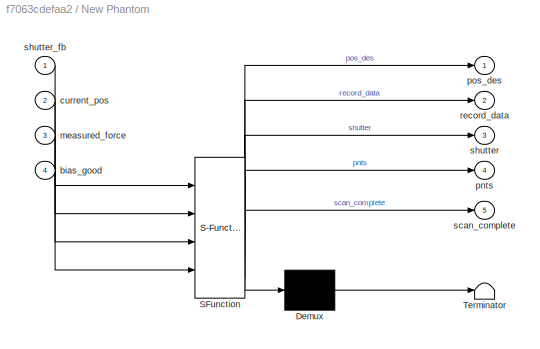
BLOCK [SubSystem] New Phantom
  ErrorFcn = Stateflow.Translate.translate
  PermitHierarchicalResolution = ExplicitOnly
  Ports = [4, 5]
  RequestExecContextInheritance = off
  SFBlockType = MATLAB Function
  TreatAsAtomicUnit = on
BLOCK [Demux] New Phantom/ Demux 
  Outputs = 1
  Ports = [1, 1]
BLOCK [S-Function] New Phantom/ SFunction 
  EnableBusSupport = on
  FunctionName = sf_sfun
  PortCounts = [4 6]
  Ports = [4, 6]
  SFcnIsStateOwnerBlock = off
  SFunctionDeploymentMode = off
  Tag = Stateflow S-Function AutonomousScan 9
BLOCK [Terminator] New Phantom/ Terminator 
BLOCK [Inport] New Phantom/bias_good
  IconDisplay = Port number
  Port = 4
BLOCK [Inport] New Phantom/current_pos
  IconDisplay = Port number
  Port = 2
BLOCK [Inport] New Phantom/measured_force
  IconDisplay = Port number
  Port = 3
BLOCK [Outport] New Phantom/pnts
  IconDisplay = Port number
  Port = 4
BLOCK [Outport] New Phantom/pos_des
  IconDisplay = Port number
BLOCK [Outport] New Phantom/record_data
  IconDisplay = Port number
  Port = 2
BLOCK [Outport] New Phantom/scan_complete
  IconDisplay = Port number
  Port = 5
BLOCK [Outport] New Phantom/shutter
  IconDisplay = Port number
  Port = 3
BLOCK [Inport] New Phantom/shutter_fb
  IconDisplay = Port number
BLOCK [Reference] PID Controller2  REF=simulink/Continuous/PID Controller
  Ports = [1, 1]
  SourceBlock = simulink/Continuous/PID Controller
  SourceProductBaseCode = SL
  SourceProductName = Simulink
  SourceType = PID 1dof
BLOCK [Scope] PandaPosition
  Floating = off
  NumInputPorts = 1
  Ports = [1]
  ScopeSpecificationString = Simulink.scopes.TimeScopeBlockCfg('CurrentConfiguration', extmgr.ConfigurationSet(extmgr.Configuration('Core','General UI',true),extmgr.Configuration('Core','Source UI',true),extmgr.Configuration('Sources','WiredSimulink',true,'DataLoggingVariableName','ScopeData5'),extmgr.Configuration('Visuals','Time Domain',true,'SerializedDisplays',{struct('MinYLimReal','-0.06057','MaxYLimReal','0.54301','YLab...<+1568ch>
BLOCK [Scope] PandaRotation
  Floating = off
  NumInputPorts = 1
  Ports = [1]
  ScopeSpecificationString = Simulink.scopes.TimeScopeBlockCfg('CurrentConfiguration', extmgr.ConfigurationSet(extmgr.Configuration('Core','General UI',true),extmgr.Configuration('Core','Source UI',true),extmgr.Configuration('Sources','WiredSimulink',true,'DataLoggingVariableName','ScopeData6'),extmgr.Configuration('Visuals','Time Domain',true,'SerializedDisplays',{struct('MinYLimReal','-3.92593','MaxYLimReal','3.9266','YLabe...<+1799ch>
BLOCK [Scope] PandaRotation1
  Commented = on
  Floating = off
  NumInputPorts = 1
  Ports = [1]
  ScopeSpecificationString = Simulink.scopes.TimeScopeBlockCfg('CurrentConfiguration', extmgr.ConfigurationSet(extmgr.Configuration('Core','General UI',true),extmgr.Configuration('Core','Source UI',true),extmgr.Configuration('Sources','WiredSimulink',true,'DataLoggingVariableName','ScopeData3'),extmgr.Configuration('Visuals','Time Domain',true,'SerializedDisplays',{struct('MinYLimReal','-1.24903','MaxYLimReal','1.24989','YLab...<+2155ch>
BLOCK [SubSystem] Panda_inv_jac_receive
  Commented = on
  Ports = [0, 1]
  RequestExecContextInheritance = off
BLOCK [Reshape] Panda_inv_jac_receive/Reshape
  OutputDimensionality = Customize
  OutputDimensions = [7,6]
  Ports = [1, 1]
BLOCK [Scope] Panda_inv_jac_receive/Scope
  Commented = on
  Floating = off
  NumInputPorts = 1
  Ports = [1]
  ScopeSpecificationString = Simulink.scopes.TimeScopeBlockCfg('CurrentConfiguration', extmgr.ConfigurationSet(extmgr.Configuration('Core','General UI',true),extmgr.Configuration('Core','Source UI',true),extmgr.Configuration('Sources','WiredSimulink',true,'DataLoggingVariableName','ScopeData3'),extmgr.Configuration('Visuals','Time Domain',true,'SerializedDisplays',{struct('MinYLimReal','-5.25','MaxYLimReal','47.25','YLabelRea...<+1388ch>  <repeated x4 — deduplicated; at blocks: Scope, Scope2>
BLOCK [Reference] Panda_inv_jac_receive/UDP Receive  REF=dspnetwork/UDP Receive
  Ports = [0, 2]
  SourceBlock = dspnetwork/UDP Receive
  SourceProductBaseCode = SL
  SourceProductName = Simulink
  SourceType = UDP Receive
BLOCK [Outport] Panda_inv_jac_receive/inverse_jacobian
  IconDisplay = Port number
BLOCK [SubSystem] Panda_inv_jac_receive1
  Commented = on
  Ports = [0, 1]
  RequestExecContextInheritance = off
BLOCK [Scope] Panda_inv_jac_receive1/Scope
  Commented = on
  Floating = off
  NumInputPorts = 1
  Ports = [1]
BLOCK [Reference] Panda_inv_jac_receive1/UDP Receive  REF=dspnetwork/UDP Receive
  Ports = [0, 2]
  SourceBlock = dspnetwork/UDP Receive
  SourceProductBaseCode = SL
  SourceProductName = Simulink
  SourceType = UDP Receive
BLOCK [Outport] Panda_inv_jac_receive1/panda_state
  IconDisplay = Port number
BLOCK [Product] Product
  InputSameDT = off
  OutDataTypeStr = Inherit: Inherit via internal rule
  Ports = [2, 1]
  RndMeth = Floor
  SaturateOnIntegerOverflow = off
BLOCK [Product] Product1
  InputSameDT = off
  OutDataTypeStr = Inherit: Inherit via internal rule
  Ports = [2, 1]
  RndMeth = Floor
  SaturateOnIntegerOverflow = off
BLOCK [Product] Product2
  Commented = on
  InputSameDT = off
  OutDataTypeStr = Inherit: Inherit via internal rule
  Ports = [2, 1]
  RndMeth = Floor
  SaturateOnIntegerOverflow = off
BLOCK [Product] Product3
  Commented = on
  InputSameDT = off
  OutDataTypeStr = Inherit: Inherit via internal rule
  Ports = [2, 1]
  RndMeth = Floor
  SaturateOnIntegerOverflow = off
BLOCK [Product] Product4
  InputSameDT = off
  OutDataTypeStr = Inherit: Inherit via internal rule
  Ports = [2, 1]
  RndMeth = Floor
  SaturateOnIntegerOverflow = off
BLOCK [Product] Product5
  InputSameDT = off
  OutDataTypeStr = Inherit: Inherit via internal rule
  Ports = [2, 1]
  RndMeth = Floor
  SaturateOnIntegerOverflow = off
BLOCK [Product] Product6
  InputSameDT = off
  OutDataTypeStr = Inherit: Inherit via internal rule
  Ports = [2, 1]
  RndMeth = Floor
  SaturateOnIntegerOverflow = off
BLOCK [Reference] Radians to Degrees  REF=simulink_extras/Transformations/Radians
to Degrees
  Ports = [1, 1]
  SourceBlock = simulink_extras/Transformations/Radians\nto Degrees
  SourceProductBaseCode = SL
  SourceProductName = Simulink
  SourceType = RadiansToDegrees
BLOCK [Reference] Radians to Degrees1  REF=simulink_extras/Transformations/Radians
to Degrees
  Ports = [1, 1]
  SourceBlock = simulink_extras/Transformations/Radians\nto Degrees
  SourceProductBaseCode = SL
  SourceProductName = Simulink
  SourceType = RadiansToDegrees
BLOCK [RateLimiter] Rate Limiter1
  FallingSlewLimit = -2.0
  RisingSlewLimit = 2.0
  SampleTimeMode = inherited
BLOCK [RateLimiter] Rate Limiter3
  FallingSlewLimit = -0.15
  RisingSlewLimit = 0.15
  SampleTimeMode = inherited
BLOCK [RateTransition] Rate Transition
  OutPortSampleTime = 0.01
BLOCK [RateTransition] Rate Transition1
  Commented = on
  OutPortSampleTime = 2
BLOCK [ManualSwitch] STOP_SWITCH1
BLOCK [Saturate] Saturation
  InputPortMap = u0
  LowerLimit = -0.1
  Ports = [1, 1]
  UpperLimit = 0.1
BLOCK [Scope] Scope
  Floating = off
  NumInputPorts = 1
  Ports = [1]
  ScopeSpecificationString = Simulink.scopes.TimeScopeBlockCfg('CurrentConfiguration', extmgr.ConfigurationSet(extmgr.Configuration('Core','General UI',true),extmgr.Configuration('Core','Source UI',true),extmgr.Configuration('Sources','WiredSimulink',true,'DataLoggingVariableName','ScopeData1'),extmgr.Configuration('Visuals','Time Domain',true,'SerializedDisplays',{struct('MinYLimReal','-29.95016','MaxYLimReal','12.33076','YL...<+1622ch>
BLOCK [Scope] Scope1
  Floating = off
  NumInputPorts = 1
  Ports = [1]
  ScopeSpecificationString = Simulink.scopes.TimeScopeBlockCfg('CurrentConfiguration', extmgr.ConfigurationSet(extmgr.Configuration('Core','General UI',true),extmgr.Configuration('Core','Source UI',true),extmgr.Configuration('Sources','WiredSimulink',true,'DataLoggingVariableName','ScopeData1'),extmgr.Configuration('Visuals','Time Domain',true,'SerializedDisplays',{struct('MinYLimReal','-0.06037','MaxYLimReal','0.54337','YLab...<+1634ch>
BLOCK [Scope] Scope10
  Commented = on
  Floating = off
  NumInputPorts = 1
  Ports = [1]
  ScopeSpecificationString = Simulink.scopes.TimeScopeBlockCfg('CurrentConfiguration', extmgr.ConfigurationSet(extmgr.Configuration('Core','General UI',true),extmgr.Configuration('Core','Source UI',true),extmgr.Configuration('Sources','WiredSimulink',true,'DataLoggingVariableName','ScopeData4'),extmgr.Configuration('Visuals','Time Domain',true,'SerializedDisplays',{struct('MinYLimReal','-0.02982','MaxYLimReal','0.04108','YLab...<+1658ch>
BLOCK [Scope] Scope11
  Commented = on
  Floating = off
  NumInputPorts = 1
  Ports = [1]
  ScopeSpecificationString = Simulink.scopes.TimeScopeBlockCfg('CurrentConfiguration', extmgr.ConfigurationSet(extmgr.Configuration('Core','General UI',true),extmgr.Configuration('Core','Source UI',true),extmgr.Configuration('Sources','WiredSimulink',true,'DataLoggingVariableName','ScopeData5'),extmgr.Configuration('Visuals','Time Domain',true,'SerializedDisplays',{struct('MinYLimReal','-0.53043','MaxYLimReal','0.27496','YLab...<+1628ch>
BLOCK [Scope] Scope12
  Floating = off
  NumInputPorts = 1
  Ports = [1]
  ScopeSpecificationString = Simulink.scopes.TimeScopeBlockCfg('CurrentConfiguration', extmgr.ConfigurationSet(extmgr.Configuration('Core','General UI',true),extmgr.Configuration('Core','Source UI',true),extmgr.Configuration('Sources','WiredSimulink',true,'DataLoggingVariableName','ScopeData1'),extmgr.Configuration('Visuals','Time Domain',true,'SerializedDisplays',{struct('MinYLimReal','6.00000','MaxYLimReal','8.00000','YLabe...<+1610ch>
BLOCK [Scope] Scope13
  Commented = on
  Floating = off
  NumInputPorts = 1
  Ports = [1]
  ScopeSpecificationString = Simulink.scopes.TimeScopeBlockCfg('CurrentConfiguration', extmgr.ConfigurationSet(extmgr.Configuration('Core','General UI',true),extmgr.Configuration('Core','Source UI',true),extmgr.Configuration('Sources','WiredSimulink',true,'DataLoggingVariableName','ScopeData1'),extmgr.Configuration('Visuals','Time Domain',true,'SerializedDisplays',{struct('MinYLimReal','-0.4425','MaxYLimReal','3.9825','YLabel...<+1600ch>
BLOCK [Scope] Scope14
  Commented = on
  Floating = off
  NumInputPorts = 1
  Ports = [1]
  ScopeSpecificationString = Simulink.scopes.TimeScopeBlockCfg('CurrentConfiguration', extmgr.ConfigurationSet(extmgr.Configuration('Core','General UI',true),extmgr.Configuration('Core','Source UI',true),extmgr.Configuration('Sources','WiredSimulink',true,'DataLoggingVariableName','ScopeData2'),extmgr.Configuration('Visuals','Time Domain',true,'SerializedDisplays',{struct('MinYLimReal','-0.25238','MaxYLimReal','0.26735','YLab...<+1598ch>
BLOCK [Scope] Scope15
  Commented = on
  Floating = off
  NumInputPorts = 1
  Ports = [1]
  ScopeSpecificationString = Simulink.scopes.TimeScopeBlockCfg('CurrentConfiguration', extmgr.ConfigurationSet(extmgr.Configuration('Core','General UI',true),extmgr.Configuration('Core','Source UI',true),extmgr.Configuration('Sources','WiredSimulink',true,'DataLoggingVariableName','ScopeData6'),extmgr.Configuration('Visuals','Time Domain',true,'SerializedDisplays',{struct('MinYLimReal','-39.51965','MaxYLimReal','27.50418','YL...<+1601ch>
BLOCK [Scope] Scope16
  Commented = on
  Floating = off
  NumInputPorts = 1
  Ports = [1]
  ScopeSpecificationString = Simulink.scopes.TimeScopeBlockCfg('CurrentConfiguration', extmgr.ConfigurationSet(extmgr.Configuration('Core','General UI',true),extmgr.Configuration('Core','Source UI',true),extmgr.Configuration('Sources','WiredSimulink',true,'DataLoggingVariableName','ScopeData7'),extmgr.Configuration('Visuals','Time Domain',true,'SerializedDisplays',{struct('MinYLimReal','-0.35395','MaxYLimReal','0.6874','YLabe...<+1602ch>
BLOCK [Scope] Scope17
  Floating = off
  NumInputPorts = 1
  Ports = [1]
  ScopeSpecificationString = Simulink.scopes.TimeScopeBlockCfg('CurrentConfiguration', extmgr.ConfigurationSet(extmgr.Configuration('Core','General UI',true),extmgr.Configuration('Core','Source UI',true),extmgr.Configuration('Sources','WiredSimulink',true,'DataLoggingVariableName','ScopeData1'),extmgr.Configuration('Visuals','Time Domain',true,'SerializedDisplays',{struct('MinYLimReal','-0.13823','MaxYLimReal','0.54658','YLab...<+1658ch>
BLOCK [Scope] Scope18
  Floating = off
  NumInputPorts = 1
  Ports = [1]
  ScopeSpecificationString = Simulink.scopes.TimeScopeBlockCfg('CurrentConfiguration', extmgr.ConfigurationSet(extmgr.Configuration('Core','General UI',true),extmgr.Configuration('Core','Source UI',true),extmgr.Configuration('Sources','WiredSimulink',true,'DataLoggingVariableName','ScopeData2'),extmgr.Configuration('Visuals','Time Domain',true,'SerializedDisplays',{struct('MinYLimReal','-0.23598','MaxYLimReal','0.13306','YLab...<+1599ch>
BLOCK [Scope] Scope19
  Floating = off
  NumInputPorts = 1
  Ports = [1]
  ScopeSpecificationString = Simulink.scopes.TimeScopeBlockCfg('CurrentConfiguration', extmgr.ConfigurationSet(extmgr.Configuration('Core','General UI',true),extmgr.Configuration('Core','Source UI',true),extmgr.Configuration('Sources','WiredSimulink',true,'DataLoggingVariableName','ScopeData3'),extmgr.Configuration('Visuals','Time Domain',true,'SerializedDisplays',{struct('MinYLimReal','-0.02982','MaxYLimReal','0.04108','YLab...<+1658ch>
BLOCK [Scope] Scope2
  Floating = off
  NumInputPorts = 1
  Ports = [1]
  ScopeSpecificationString = Simulink.scopes.TimeScopeBlockCfg('CurrentConfiguration', extmgr.ConfigurationSet(extmgr.Configuration('Core','General UI',true),extmgr.Configuration('Core','Source UI',true),extmgr.Configuration('Sources','WiredSimulink',true,'DataLoggingVariableName','ScopeData1'),extmgr.Configuration('Visuals','Time Domain',true,'SerializedDisplays',{struct('MinYLimReal','-0.00267','MaxYLimReal','0.02405','YLab...<+1629ch>
BLOCK [Scope] Scope20
  Floating = off
  NumInputPorts = 1
  Ports = [1]
  ScopeSpecificationString = Simulink.scopes.TimeScopeBlockCfg('CurrentConfiguration', extmgr.ConfigurationSet(extmgr.Configuration('Core','General UI',true),extmgr.Configuration('Core','Source UI',true),extmgr.Configuration('Sources','WiredSimulink',true,'DataLoggingVariableName','ScopeData1'),extmgr.Configuration('Visuals','Time Domain',true,'SerializedDisplays',{struct('MinYLimReal','-0.02982','MaxYLimReal','0.04108','YLab...<+1658ch>
BLOCK [Scope] Scope21
  Floating = off
  NumInputPorts = 1
  Ports = [1]
  ScopeSpecificationString = Simulink.scopes.TimeScopeBlockCfg('CurrentConfiguration', extmgr.ConfigurationSet(extmgr.Configuration('Core','General UI',true),extmgr.Configuration('Core','Source UI',true),extmgr.Configuration('Sources','WiredSimulink',true,'DataLoggingVariableName','ScopeData1'),extmgr.Configuration('Visuals','Time Domain',true,'SerializedDisplays',{struct('MinYLimReal','-0.02982','MaxYLimReal','0.04108','YLab...<+1658ch>
BLOCK [Scope] Scope22
  Floating = off
  NumInputPorts = 1
  Ports = [1]
  ScopeSpecificationString = Simulink.scopes.TimeScopeBlockCfg('CurrentConfiguration', extmgr.ConfigurationSet(extmgr.Configuration('Core','General UI',true),extmgr.Configuration('Core','Source UI',true),extmgr.Configuration('Sources','WiredSimulink',true,'DataLoggingVariableName','ScopeData2'),extmgr.Configuration('Visuals','Time Domain',true,'SerializedDisplays',{struct('MinYLimReal','-0.98747','MaxYLimReal','6.88376','YLab...<+1584ch>
BLOCK [Scope] Scope23
  Floating = off
  NumInputPorts = 1
  Ports = [1]
  ScopeSpecificationString = Simulink.scopes.TimeScopeBlockCfg('CurrentConfiguration', extmgr.ConfigurationSet(extmgr.Configuration('Core','General UI',true),extmgr.Configuration('Core','Source UI',true),extmgr.Configuration('Sources','WiredSimulink',true,'DataLoggingVariableName','ScopeData1'),extmgr.Configuration('Visuals','Time Domain',true,'SerializedDisplays',{struct('MinYLimReal','-0.125','MaxYLimReal','1.125','YLabelRe...<+1581ch>
BLOCK [Scope] Scope25
  Floating = off
  NumInputPorts = 1
  Ports = [1]
  ScopeSpecificationString = Simulink.scopes.TimeScopeBlockCfg('CurrentConfiguration', extmgr.ConfigurationSet(extmgr.Configuration('Core','General UI',true),extmgr.Configuration('Core','Source UI',true),extmgr.Configuration('Sources','WiredSimulink',true,'DataLoggingVariableName','ScopeData3'),extmgr.Configuration('Visuals','Time Domain',true,'SerializedDisplays',{struct('MinYLimReal','-0.06509','MaxYLimReal','0.54305','YLab...<+1642ch>
BLOCK [Scope] Scope26
  Floating = off
  NumInputPorts = 1
  Ports = [1]
  ScopeSpecificationString = Simulink.scopes.TimeScopeBlockCfg('CurrentConfiguration', extmgr.ConfigurationSet(extmgr.Configuration('Core','General UI',true),extmgr.Configuration('Core','Source UI',true),extmgr.Configuration('Sources','WiredSimulink',true,'DataLoggingVariableName','ScopeData2'),extmgr.Configuration('Visuals','Time Domain',true,'SerializedDisplays',{struct('MinYLimReal','-0.08133','MaxYLimReal','0.73196','YLab...<+1702ch>
BLOCK [Scope] Scope28
  Floating = off
  NumInputPorts = 1
  Ports = [1]
  ScopeSpecificationString = Simulink.scopes.TimeScopeBlockCfg('CurrentConfiguration', extmgr.ConfigurationSet(extmgr.Configuration('Core','General UI',true),extmgr.Configuration('Core','Source UI',true),extmgr.Configuration('Sources','WiredSimulink',true,'DataLoggingVariableName','ScopeData4'),extmgr.Configuration('Visuals','Time Domain',true,'SerializedDisplays',{struct('MinYLimReal','-0.02982','MaxYLimReal','0.04108','YLab...<+1658ch>
BLOCK [Scope] Scope29
  Floating = off
  NumInputPorts = 1
  Ports = [1]
  ScopeSpecificationString = Simulink.scopes.TimeScopeBlockCfg('CurrentConfiguration', extmgr.ConfigurationSet(extmgr.Configuration('Core','General UI',true),extmgr.Configuration('Core','Source UI',true),extmgr.Configuration('Sources','WiredSimulink',true,'DataLoggingVariableName','ScopeData5'),extmgr.Configuration('Visuals','Time Domain',true,'SerializedDisplays',{struct('MinYLimReal','-0.0998','MaxYLimReal','1.1222','YLabel...<+1703ch>
BLOCK [Scope] Scope3
  Floating = off
  NumInputPorts = 1
  Ports = [1]
  ScopeSpecificationString = Simulink.scopes.TimeScopeBlockCfg('CurrentConfiguration', extmgr.ConfigurationSet(extmgr.Configuration('Core','General UI',true),extmgr.Configuration('Core','Source UI',true),extmgr.Configuration('Sources','WiredSimulink',true,'DataLoggingVariableName','ScopeData1'),extmgr.Configuration('Visuals','Time Domain',true,'SerializedDisplays',{struct('MinYLimReal','-0.125','MaxYLimReal','1.125','YLabelRe...<+1575ch>
BLOCK [Scope] Scope4
  Floating = off
  NumInputPorts = 1
  Ports = [1]
  ScopeSpecificationString = Simulink.scopes.TimeScopeBlockCfg('CurrentConfiguration', extmgr.ConfigurationSet(extmgr.Configuration('Core','General UI',true),extmgr.Configuration('Core','Source UI',true),extmgr.Configuration('Sources','WiredSimulink',true,'DataLoggingVariableName','ScopeData2'),extmgr.Configuration('Visuals','Time Domain',true,'SerializedDisplays',{struct('MinYLimReal','-0.02982','MaxYLimReal','0.04108','YLab...<+1658ch>
BLOCK [Scope] Scope5
  Floating = off
  NumInputPorts = 1
  Ports = [1]
  ScopeSpecificationString = Simulink.scopes.TimeScopeBlockCfg('CurrentConfiguration', extmgr.ConfigurationSet(extmgr.Configuration('Core','General UI',true),extmgr.Configuration('Core','Source UI',true),extmgr.Configuration('Sources','WiredSimulink',true,'DataLoggingVariableName','ScopeData1'),extmgr.Configuration('Visuals','Time Domain',true,'SerializedDisplays',{struct('MinYLimReal','-35.85694','MaxYLimReal','9.40638','YLa...<+1641ch>
BLOCK [Scope] Scope6
  Floating = off
  NumInputPorts = 1
  Ports = [1]
  ScopeSpecificationString = Simulink.scopes.TimeScopeBlockCfg('CurrentConfiguration', extmgr.ConfigurationSet(extmgr.Configuration('Core','General UI',true),extmgr.Configuration('Core','Source UI',true),extmgr.Configuration('Sources','WiredSimulink',true,'DataLoggingVariableName','ScopeData1'),extmgr.Configuration('Visuals','Time Domain',true,'SerializedDisplays',{struct('MinYLimReal','-0.125','MaxYLimReal','1.125','YLabelRe...<+1576ch>
BLOCK [Scope] Scope7
  Floating = off
  NumInputPorts = 1
  Ports = [1]
  ScopeSpecificationString = Simulink.scopes.TimeScopeBlockCfg('CurrentConfiguration', extmgr.ConfigurationSet(extmgr.Configuration('Core','General UI',true),extmgr.Configuration('Core','Source UI',true),extmgr.Configuration('Sources','WiredSimulink',true,'DataLoggingVariableName','ScopeData2'),extmgr.Configuration('Visuals','Time Domain',true,'SerializedDisplays',{struct('MinYLimReal','-0.02982','MaxYLimReal','0.04108','YLab...<+1658ch>
BLOCK [Scope] Scope8
  Floating = off
  NumInputPorts = 1
  Ports = [1]
  ScopeSpecificationString = Simulink.scopes.TimeScopeBlockCfg('CurrentConfiguration', extmgr.ConfigurationSet(extmgr.Configuration('Core','General UI',true),extmgr.Configuration('Core','Source UI',true),extmgr.Configuration('Sources','WiredSimulink',true,'DataLoggingVariableName','ScopeData3'),extmgr.Configuration('Visuals','Time Domain',true,'SerializedDisplays',{struct('MinYLimReal','-0.125','MaxYLimReal','1.125','YLabelRe...<+1567ch>
BLOCK [Scope] Scope9
  Floating = off
  NumInputPorts = 1
  Ports = [1]
  ScopeSpecificationString = Simulink.scopes.TimeScopeBlockCfg('CurrentConfiguration', extmgr.ConfigurationSet(extmgr.Configuration('Core','General UI',true),extmgr.Configuration('Core','Source UI',true),extmgr.Configuration('Sources','WiredSimulink',true,'DataLoggingVariableName','ScopeData4'),extmgr.Configuration('Visuals','Time Domain',true,'SerializedDisplays',{struct('MinYLimReal','-5.00000','MaxYLimReal','55.00000','YLa...<+1589ch>
BLOCK [Sin] Sine Wave
  Amplitude = 0.4
  Commented = on
  Frequency = 3
  Ports = [0, 1]
  SampleTime = 0
BLOCK [Sin] Sine Wave1
  Amplitude = 0.05
  Commented = on
  Frequency = 3
  Ports = [0, 1]
  SampleTime = 0
BLOCK [Sum] Subtract1
  InputSameDT = off
  Inputs = +-
  OutDataTypeStr = Inherit: Inherit via internal rule
  Ports = [2, 1]
  SaturateOnIntegerOverflow = off
BLOCK [Sum] Subtract10
  Commented = on
  InputSameDT = off
  OutDataTypeStr = Inherit: Inherit via internal rule
  Ports = [2, 1]
  SaturateOnIntegerOverflow = off
BLOCK [Sum] Subtract11
  Commented = on
  InputSameDT = off
  Inputs = +-
  OutDataTypeStr = Inherit: Inherit via internal rule
  Ports = [2, 1]
  SaturateOnIntegerOverflow = off
BLOCK [Sum] Subtract12
  Commented = on
  InputSameDT = off
  Inputs = +-
  OutDataTypeStr = Inherit: Inherit via internal rule
  Ports = [2, 1]
  SaturateOnIntegerOverflow = off
BLOCK [Sum] Subtract13
  InputSameDT = off
  Inputs = +-
  OutDataTypeStr = Inherit: Inherit via internal rule
  Ports = [2, 1]
  SaturateOnIntegerOverflow = off
BLOCK [Sum] Subtract14
  InputSameDT = off
  Inputs = +--
  OutDataTypeStr = Inherit: Inherit via internal rule
  Ports = [3, 1]
  SaturateOnIntegerOverflow = off
BLOCK [Sum] Subtract15
  InputSameDT = off
  Inputs = +-
  OutDataTypeStr = Inherit: Inherit via internal rule
  Ports = [2, 1]
  SaturateOnIntegerOverflow = off
BLOCK [Sum] Subtract16
  InputSameDT = off
  Inputs = +-
  OutDataTypeStr = Inherit: Inherit via internal rule
  Ports = [2, 1]
  SaturateOnIntegerOverflow = off
BLOCK [Sum] Subtract2
  InputSameDT = off
  Inputs = +-
  OutDataTypeStr = Inherit: Inherit via internal rule
  Ports = [2, 1]
  SaturateOnIntegerOverflow = off
BLOCK [Sum] Subtract3
  InputSameDT = off
  Inputs = +-
  OutDataTypeStr = Inherit: Inherit via internal rule
  Ports = [2, 1]
  SaturateOnIntegerOverflow = off
BLOCK [Sum] Subtract4
  InputSameDT = off
  Inputs = +-
  OutDataTypeStr = Inherit: Inherit via internal rule
  Ports = [2, 1]
  SaturateOnIntegerOverflow = off
BLOCK [Sum] Subtract5
  Commented = on
  InputSameDT = off
  Inputs = +-
  OutDataTypeStr = Inherit: Inherit via internal rule
  Ports = [2, 1]
  SaturateOnIntegerOverflow = off
BLOCK [Sum] Subtract6
  Commented = on
  InputSameDT = off
  Inputs = +-
  OutDataTypeStr = Inherit: Inherit via internal rule
  Ports = [2, 1]
  SaturateOnIntegerOverflow = off
BLOCK [Sum] Subtract7
  Commented = on
  InputSameDT = off
  Inputs = +-
  OutDataTypeStr = Inherit: Inherit via internal rule
  Ports = [2, 1]
  SaturateOnIntegerOverflow = off
BLOCK [Sum] Subtract8
  Commented = on
  InputSameDT = off
  Inputs = +-
  OutDataTypeStr = Inherit: Inherit via internal rule
  Ports = [2, 1]
  SaturateOnIntegerOverflow = off
BLOCK [Sum] Subtract9
  InputSameDT = off
  OutDataTypeStr = Inherit: Inherit via internal rule
  Ports = [2, 1]
  SaturateOnIntegerOverflow = off
BLOCK [Sum] Sum
  IconShape = round
  InputSameDT = off
  Inputs = |+-
  OutDataTypeStr = Inherit: Inherit via internal rule
  Ports = [2, 1]
  SaturateOnIntegerOverflow = off
BLOCK [Sum] Sum2
  IconShape = round
  InputSameDT = off
  Inputs = |++
  OutDataTypeStr = Inherit: Inherit via internal rule
  Ports = [2, 1]
  SaturateOnIntegerOverflow = off
BLOCK [Switch] Switch1
  Criteria = u2 > Threshold
  InputSameDT = off
  SaturateOnIntegerOverflow = off
BLOCK [Switch] Switch2
  Criteria = u2 > Threshold
  InputSameDT = off
  SaturateOnIntegerOverflow = off
BLOCK [Switch] Switch3
  Criteria = u2 > Threshold
  InputSameDT = off
  SaturateOnIntegerOverflow = off
BLOCK [Switch] Switch4
  Criteria = u2 > Threshold
  InputSameDT = off
  SaturateOnIntegerOverflow = off
BLOCK [Terminator] Terminator
BLOCK [SubSystem] Trajectory Generation (works)
  Commented = on
  ErrorFcn = Stateflow.Translate.translate
  PermitHierarchicalResolution = ExplicitOnly
  Ports = [4, 5]
  RequestExecContextInheritance = off
  SFBlockType = MATLAB Function
  TreatAsAtomicUnit = on
BLOCK [Demux] Trajectory Generation (works)/ Demux 
  Outputs = 1
  Ports = [1, 1]
BLOCK [S-Function] Trajectory Generation (works)/ SFunction 
  EnableBusSupport = on
  FunctionName = sf_sfun
  PortCounts = [4 6]
  Ports = [4, 6]
  SFcnIsStateOwnerBlock = off
  SFunctionDeploymentMode = off
  Tag = Stateflow S-Function AutonomousScan 32
BLOCK [Terminator] Trajectory Generation (works)/ Terminator 
BLOCK [Inport] Trajectory Generation (works)/bias_good
  IconDisplay = Port number
  Port = 4
BLOCK [Inport] Trajectory Generation (works)/current_pos
  IconDisplay = Port number
  Port = 2
BLOCK [Inport] Trajectory Generation (works)/measured_force
  IconDisplay = Port number
  Port = 3
BLOCK [Outport] Trajectory Generation (works)/pnts
  IconDisplay = Port number
  Port = 4
BLOCK [Outport] Trajectory Generation (works)/pos_des
  IconDisplay = Port number
BLOCK [Outport] Trajectory Generation (works)/record_data
  IconDisplay = Port number
  Port = 2
BLOCK [Outport] Trajectory Generation (works)/scan_complete
  IconDisplay = Port number
  Port = 5
BLOCK [Outport] Trajectory Generation (works)/shutter
  IconDisplay = Port number
  Port = 3
BLOCK [Inport] Trajectory Generation (works)/shutter_fb
  IconDisplay = Port number
BLOCK [SubSystem] Trajectory Generation1
  Commented = on
  ErrorFcn = Stateflow.Translate.translate
  PermitHierarchicalResolution = ExplicitOnly
  Ports = [3, 2]
  RequestExecContextInheritance = off
  SFBlockType = MATLAB Function
  TreatAsAtomicUnit = on
BLOCK [Demux] Trajectory Generation1/ Demux 
  Outputs = 1
  Ports = [1, 1]
BLOCK [S-Function] Trajectory Generation1/ SFunction 
  EnableBusSupport = on
  FunctionName = sf_sfun
  PortCounts = [3 3]
  Ports = [3, 3]
  SFcnIsStateOwnerBlock = off
  SFunctionDeploymentMode = off
  Tag = Stateflow S-Function AutonomousScan 12
BLOCK [Terminator] Trajectory Generation1/ Terminator 
BLOCK [Inport] Trajectory Generation1/bias_good
  IconDisplay = Port number
  Port = 3
BLOCK [Inport] Trajectory Generation1/current_pos
  IconDisplay = Port number
BLOCK [Inport] Trajectory Generation1/measured_force
  IconDisplay = Port number
  Port = 2
BLOCK [Outport] Trajectory Generation1/pos_des
  IconDisplay = Port number
BLOCK [Outport] Trajectory Generation1/record_data
  IconDisplay = Port number
  Port = 2
BLOCK [Reference] UDP Receive1  REF=dspnetwork/UDP Receive
  Ports = [0, 2]
  SourceBlock = dspnetwork/UDP Receive
  SourceProductBaseCode = SL
  SourceProductName = Simulink
  SourceType = UDP Receive
BLOCK [Reference] UDP Receive2  REF=dspnetwork/UDP Receive
  Ports = [0, 2]
  SourceBlock = dspnetwork/UDP Receive
  SourceProductBaseCode = SL
  SourceProductName = Simulink
  SourceType = UDP Receive
BLOCK [Reference] UDP Receive3  REF=dspnetwork/UDP Receive
  Commented = on
  Ports = [0, 2]
  SourceBlock = dspnetwork/UDP Receive
  SourceProductBaseCode = SL
  SourceProductName = Simulink
  SourceType = UDP Receive
BLOCK [Reference] UDP Receive4  REF=dspnetwork/UDP Receive
  Ports = [0, 2]
  SourceBlock = dspnetwork/UDP Receive
  SourceProductBaseCode = SL
  SourceProductName = Simulink
  SourceType = UDP Receive
BLOCK [Reference] UDP Receive5  REF=dspnetwork/UDP Receive
  Ports = [0, 2]
  SourceBlock = dspnetwork/UDP Receive
  SourceProductBaseCode = SL
  SourceProductName = Simulink
  SourceType = UDP Receive
BLOCK [Reference] UDP Receive6  REF=dspnetwork/UDP Receive
  Ports = [0, 2]
  SourceBlock = dspnetwork/UDP Receive
  SourceProductBaseCode = SL
  SourceProductName = Simulink
  SourceType = UDP Receive
BLOCK [Reference] UDP Receive7  REF=dspnetwork/UDP Receive
  Ports = [0, 2]
  SourceBlock = dspnetwork/UDP Receive
  SourceProductBaseCode = SL
  SourceProductName = Simulink
  SourceType = UDP Receive
BLOCK [Reference] UDP Send1  REF=dspnetwork/UDP Send
  Ports = [1]
  SourceBlock = dspnetwork/UDP Send
  SourceProductBaseCode = SL
  SourceProductName = Simulink
  SourceType = UDP Send
BLOCK [Reference] UDP Send2  REF=dspnetwork/UDP Send
  Ports = [1]
  SourceBlock = dspnetwork/UDP Send
  SourceProductBaseCode = SL
  SourceProductName = Simulink
  SourceType = UDP Send
BLOCK [Reference] UDP Send3  REF=dspnetwork/UDP Send
  Ports = [1]
  SourceBlock = dspnetwork/UDP Send
  SourceProductBaseCode = SL
  SourceProductName = Simulink
  SourceType = UDP Send
BLOCK [Reference] UDP Send4  REF=dspnetwork/UDP Send
  Ports = [1]
  SourceBlock = dspnetwork/UDP Send
  SourceProductBaseCode = SL
  SourceProductName = Simulink
  SourceType = UDP Send
BLOCK [Reference] UDP Send5  REF=dspnetwork/UDP Send
  Commented = on
  Ports = [1]
  SourceBlock = dspnetwork/UDP Send
  SourceProductBaseCode = SL
  SourceProductName = Simulink
  SourceType = UDP Send
BLOCK [Reference] UDP Send6  REF=dspnetwork/UDP Send
  Ports = [1]
  SourceBlock = dspnetwork/UDP Send
  SourceProductBaseCode = SL
  SourceProductName = Simulink
  SourceType = UDP Send
BLOCK [SubSystem] Velocity Controller1
  Ports = [3, 1, 1]
  RequestExecContextInheritance = off
BLOCK [Demux] Velocity Controller1/Demux
  DisplayOption = bar
  Outputs = 3
  Ports = [1, 3]
BLOCK [Demux] Velocity Controller1/Demux1
  DisplayOption = bar
  Outputs = 3
  Ports = [1, 3]
BLOCK [Demux] Velocity Controller1/Demux2
  DisplayOption = bar
  Outputs = 3
  Ports = [1, 3]
BLOCK [EnablePort] Velocity Controller1/Enable
  Ports = []
BLOCK [Inport] Velocity Controller1/F_Total
  IconDisplay = Port number
BLOCK [From] Velocity Controller1/From2
  GotoTag = m_x
BLOCK [From] Velocity Controller1/From3
  GotoTag = c_x
BLOCK [From] Velocity Controller1/From4
  GotoTag = m_y
BLOCK [From] Velocity Controller1/From7
  GotoTag = c_y
BLOCK [From] Velocity Controller1/From8
  GotoTag = m_z
BLOCK [From] Velocity Controller1/From9
  GotoTag = c_z
BLOCK [Goto] Velocity Controller1/Goto1
  GotoTag = m_x
BLOCK [Goto] Velocity Controller1/Goto2
  GotoTag = c_x
BLOCK [Goto] Velocity Controller1/Goto3
  GotoTag = m_y
BLOCK [Goto] Velocity Controller1/Goto4
  GotoTag = m_z
BLOCK [Goto] Velocity Controller1/Goto5
  GotoTag = c_y
BLOCK [Goto] Velocity Controller1/Goto8
  GotoTag = c_z
BLOCK [Mux] Velocity Controller1/Mux
  DisplayOption = bar
  Inputs = 3
  Ports = [3, 1]
BLOCK [SubSystem] Velocity Controller1/Tunable FOTF
  Ports = [3, 1]
  RequestExecContextInheritance = off
BLOCK [Product] Velocity Controller1/Tunable FOTF/Divide1
  InputSameDT = off
  Inputs = /**
  OutDataTypeStr = Inherit: Inherit via internal rule
  Ports = [3, 1]
  RndMeth = Floor
  SaturateOnIntegerOverflow = off
BLOCK [Integrator] Velocity Controller1/Tunable FOTF/Integrator1
  Ports = [1, 1]
BLOCK [Integrator] Velocity Controller1/Tunable FOTF/Integrator2
  Ports = [1, 1]
BLOCK [Product] Velocity Controller1/Tunable FOTF/Product
  InputSameDT = off
  Inputs = */
  OutDataTypeStr = Inherit: Inherit via internal rule
  Ports = [2, 1]
  RndMeth = Floor
  SaturateOnIntegerOverflow = off
BLOCK [Sum] Velocity Controller1/Tunable FOTF/Sum
  IconShape = round
  InputSameDT = off
  Inputs = |+-
  OutDataTypeStr = Inherit: Inherit via internal rule
  Ports = [2, 1]
  SaturateOnIntegerOverflow = off
BLOCK [Inport] Velocity Controller1/Tunable FOTF/U
  IconDisplay = Port number
BLOCK [Outport] Velocity Controller1/Tunable FOTF/Y
  IconDisplay = Port number
BLOCK [Inport] Velocity Controller1/Tunable FOTF/c
  IconDisplay = Port number
  Port = 3
BLOCK [Inport] Velocity Controller1/Tunable FOTF/m
  IconDisplay = Port number
  Port = 2
BLOCK [SubSystem] Velocity Controller1/Tunable FOTF1
  Ports = [3, 1]
  RequestExecContextInheritance = off
BLOCK [Product] Velocity Controller1/Tunable FOTF1/Divide1
  InputSameDT = off
  Inputs = /**
  OutDataTypeStr = Inherit: Inherit via internal rule
  Ports = [3, 1]
  RndMeth = Floor
  SaturateOnIntegerOverflow = off
BLOCK [Integrator] Velocity Controller1/Tunable FOTF1/Integrator1
  Ports = [1, 1]
BLOCK [Integrator] Velocity Controller1/Tunable FOTF1/Integrator2
  Ports = [1, 1]
BLOCK [Product] Velocity Controller1/Tunable FOTF1/Product
  InputSameDT = off
  Inputs = */
  OutDataTypeStr = Inherit: Inherit via internal rule
  Ports = [2, 1]
  RndMeth = Floor
  SaturateOnIntegerOverflow = off
BLOCK [Scope] Velocity Controller1/Tunable FOTF1/Scope
  Floating = off
  NumInputPorts = 1
  Ports = [1]
  ScopeSpecificationString = Simulink.scopes.TimeScopeBlockCfg('CurrentConfiguration', extmgr.ConfigurationSet(extmgr.Configuration('Core','General UI',true),extmgr.Configuration('Core','Source UI',true),extmgr.Configuration('Sources','WiredSimulink',true,'DataLoggingVariableName','ScopeData4'),extmgr.Configuration('Visuals','Time Domain',true,'SerializedDisplays',{struct('MinYLimReal','-0.24745','MaxYLimReal','1.32304','YLab...<+1391ch>
BLOCK [Sum] Velocity Controller1/Tunable FOTF1/Sum
  IconShape = round
  InputSameDT = off
  Inputs = |+-
  OutDataTypeStr = Inherit: Inherit via internal rule
  Ports = [2, 1]
  SaturateOnIntegerOverflow = off
BLOCK [Inport] Velocity Controller1/Tunable FOTF1/U
  IconDisplay = Port number
BLOCK [Outport] Velocity Controller1/Tunable FOTF1/Y
  IconDisplay = Port number
BLOCK [Inport] Velocity Controller1/Tunable FOTF1/c
  IconDisplay = Port number
  Port = 3
BLOCK [Inport] Velocity Controller1/Tunable FOTF1/m
  IconDisplay = Port number
  Port = 2
BLOCK [SubSystem] Velocity Controller1/Tunable FOTF2
  Ports = [3, 1]
  RequestExecContextInheritance = off
BLOCK [Product] Velocity Controller1/Tunable FOTF2/Divide1
  InputSameDT = off
  Inputs = /**
  OutDataTypeStr = Inherit: Inherit via internal rule
  Ports = [3, 1]
  RndMeth = Floor
  SaturateOnIntegerOverflow = off
BLOCK [Integrator] Velocity Controller1/Tunable FOTF2/Integrator1
  Ports = [1, 1]
BLOCK [Integrator] Velocity Controller1/Tunable FOTF2/Integrator2
  Ports = [1, 1]
BLOCK [Product] Velocity Controller1/Tunable FOTF2/Product
  InputSameDT = off
  Inputs = */
  OutDataTypeStr = Inherit: Inherit via internal rule
  Ports = [2, 1]
  RndMeth = Floor
  SaturateOnIntegerOverflow = off
BLOCK [Sum] Velocity Controller1/Tunable FOTF2/Sum
  IconShape = round
  InputSameDT = off
  Inputs = |+-
  OutDataTypeStr = Inherit: Inherit via internal rule
  Ports = [2, 1]
  SaturateOnIntegerOverflow = off
BLOCK [Inport] Velocity Controller1/Tunable FOTF2/U
  IconDisplay = Port number
BLOCK [Outport] Velocity Controller1/Tunable FOTF2/Y
  IconDisplay = Port number
BLOCK [Inport] Velocity Controller1/Tunable FOTF2/c
  IconDisplay = Port number
  Port = 3
BLOCK [Inport] Velocity Controller1/Tunable FOTF2/m
  IconDisplay = Port number
  Port = 2
BLOCK [Outport] Velocity Controller1/Vel_Cart
  IconDisplay = Port number
BLOCK [Inport] Velocity Controller1/c
  IconDisplay = Port number
  Port = 3
BLOCK [Inport] Velocity Controller1/m
  IconDisplay = Port number
  Port = 2
BLOCK [SubSystem] Velocity Controller2
  Commented = on
  Ports = [3, 1, 1]
  RequestExecContextInheritance = off
BLOCK [Demux] Velocity Controller2/Demux
  DisplayOption = bar
  Outputs = 3
  Ports = [1, 3]
BLOCK [Demux] Velocity Controller2/Demux1
  DisplayOption = bar
  Outputs = 3
  Ports = [1, 3]
BLOCK [Demux] Velocity Controller2/Demux2
  DisplayOption = bar
  Outputs = 3
  Ports = [1, 3]
BLOCK [EnablePort] Velocity Controller2/Enable
  Ports = []
BLOCK [From] Velocity Controller2/From2
  GotoTag = m_x
BLOCK [From] Velocity Controller2/From3
  GotoTag = c_x
BLOCK [From] Velocity Controller2/From4
  GotoTag = m_y
BLOCK [From] Velocity Controller2/From7
  GotoTag = c_y
BLOCK [From] Velocity Controller2/From8
  GotoTag = m_z
BLOCK [From] Velocity Controller2/From9
  GotoTag = c_z
BLOCK [Goto] Velocity Controller2/Goto1
  GotoTag = m_x
BLOCK [Goto] Velocity Controller2/Goto2
  GotoTag = c_x
BLOCK [Goto] Velocity Controller2/Goto3
  GotoTag = m_y
BLOCK [Goto] Velocity Controller2/Goto4
  GotoTag = m_z
BLOCK [Goto] Velocity Controller2/Goto5
  GotoTag = c_y
BLOCK [Goto] Velocity Controller2/Goto8
  GotoTag = c_z
BLOCK [Inport] Velocity Controller2/M_Total
  IconDisplay = Port number
BLOCK [Mux] Velocity Controller2/Mux
  DisplayOption = bar
  Inputs = 3
  Ports = [3, 1]
BLOCK [SubSystem] Velocity Controller2/Tunable FOTF
  Ports = [3, 1]
  RequestExecContextInheritance = off
BLOCK [Product] Velocity Controller2/Tunable FOTF/Divide1
  InputSameDT = off
  Inputs = /**
  OutDataTypeStr = Inherit: Inherit via internal rule
  Ports = [3, 1]
  RndMeth = Floor
  SaturateOnIntegerOverflow = off
BLOCK [Integrator] Velocity Controller2/Tunable FOTF/Integrator1
  Ports = [1, 1]
BLOCK [Integrator] Velocity Controller2/Tunable FOTF/Integrator2
  Ports = [1, 1]
BLOCK [Product] Velocity Controller2/Tunable FOTF/Product
  InputSameDT = off
  Inputs = */
  OutDataTypeStr = Inherit: Inherit via internal rule
  Ports = [2, 1]
  RndMeth = Floor
  SaturateOnIntegerOverflow = off
BLOCK [Sum] Velocity Controller2/Tunable FOTF/Sum
  IconShape = round
  InputSameDT = off
  Inputs = |+-
  OutDataTypeStr = Inherit: Inherit via internal rule
  Ports = [2, 1]
  SaturateOnIntegerOverflow = off
BLOCK [Inport] Velocity Controller2/Tunable FOTF/U
  IconDisplay = Port number
BLOCK [Outport] Velocity Controller2/Tunable FOTF/Y
  IconDisplay = Port number
BLOCK [Inport] Velocity Controller2/Tunable FOTF/c
  IconDisplay = Port number
  Port = 3
BLOCK [Inport] Velocity Controller2/Tunable FOTF/m
  IconDisplay = Port number
  Port = 2
BLOCK [SubSystem] Velocity Controller2/Tunable FOTF1
  Ports = [3, 1]
  RequestExecContextInheritance = off
BLOCK [Product] Velocity Controller2/Tunable FOTF1/Divide1
  InputSameDT = off
  Inputs = /**
  OutDataTypeStr = Inherit: Inherit via internal rule
  Ports = [3, 1]
  RndMeth = Floor
  SaturateOnIntegerOverflow = off
BLOCK [Integrator] Velocity Controller2/Tunable FOTF1/Integrator1
  Ports = [1, 1]
BLOCK [Integrator] Velocity Controller2/Tunable FOTF1/Integrator2
  Ports = [1, 1]
BLOCK [Product] Velocity Controller2/Tunable FOTF1/Product
  InputSameDT = off
  Inputs = */
  OutDataTypeStr = Inherit: Inherit via internal rule
  Ports = [2, 1]
  RndMeth = Floor
  SaturateOnIntegerOverflow = off
BLOCK [Scope] Velocity Controller2/Tunable FOTF1/Scope
  Floating = off
  NumInputPorts = 1
  Ports = [1]
  ScopeSpecificationString = Simulink.scopes.TimeScopeBlockCfg('CurrentConfiguration', extmgr.ConfigurationSet(extmgr.Configuration('Core','General UI',true),extmgr.Configuration('Core','Source UI',true),extmgr.Configuration('Sources','WiredSimulink',true,'DataLoggingVariableName','ScopeData4'),extmgr.Configuration('Visuals','Time Domain',true,'SerializedDisplays',{struct('MinYLimReal','-0.24745','MaxYLimReal','1.32304','YLab...<+1391ch>
BLOCK [Sum] Velocity Controller2/Tunable FOTF1/Sum
  IconShape = round
  InputSameDT = off
  Inputs = |+-
  OutDataTypeStr = Inherit: Inherit via internal rule
  Ports = [2, 1]
  SaturateOnIntegerOverflow = off
BLOCK [Inport] Velocity Controller2/Tunable FOTF1/U
  IconDisplay = Port number
BLOCK [Outport] Velocity Controller2/Tunable FOTF1/Y
  IconDisplay = Port number
BLOCK [Inport] Velocity Controller2/Tunable FOTF1/c
  IconDisplay = Port number
  Port = 3
BLOCK [Inport] Velocity Controller2/Tunable FOTF1/m
  IconDisplay = Port number
  Port = 2
BLOCK [SubSystem] Velocity Controller2/Tunable FOTF2
  Ports = [3, 1]
  RequestExecContextInheritance = off
BLOCK [Product] Velocity Controller2/Tunable FOTF2/Divide1
  InputSameDT = off
  Inputs = /**
  OutDataTypeStr = Inherit: Inherit via internal rule
  Ports = [3, 1]
  RndMeth = Floor
  SaturateOnIntegerOverflow = off
BLOCK [Integrator] Velocity Controller2/Tunable FOTF2/Integrator1
  Ports = [1, 1]
BLOCK [Integrator] Velocity Controller2/Tunable FOTF2/Integrator2
  Ports = [1, 1]
BLOCK [Product] Velocity Controller2/Tunable FOTF2/Product
  InputSameDT = off
  Inputs = */
  OutDataTypeStr = Inherit: Inherit via internal rule
  Ports = [2, 1]
  RndMeth = Floor
  SaturateOnIntegerOverflow = off
BLOCK [Sum] Velocity Controller2/Tunable FOTF2/Sum
  IconShape = round
  InputSameDT = off
  Inputs = |+-
  OutDataTypeStr = Inherit: Inherit via internal rule
  Ports = [2, 1]
  SaturateOnIntegerOverflow = off
BLOCK [Inport] Velocity Controller2/Tunable FOTF2/U
  IconDisplay = Port number
BLOCK [Outport] Velocity Controller2/Tunable FOTF2/Y
  IconDisplay = Port number
BLOCK [Inport] Velocity Controller2/Tunable FOTF2/c
  IconDisplay = Port number
  Port = 3
BLOCK [Inport] Velocity Controller2/Tunable FOTF2/m
  IconDisplay = Port number
  Port = 2
BLOCK [Outport] Velocity Controller2/Vel_Rot
  IconDisplay = Port number
BLOCK [Inport] Velocity Controller2/c
  IconDisplay = Port number
  Port = 3
BLOCK [Inport] Velocity Controller2/m
  IconDisplay = Port number
  Port = 2
BLOCK [Scope] VelocityOut
  Floating = off
  NumInputPorts = 1
  Ports = [1]
  ScopeSpecificationString = Simulink.scopes.TimeScopeBlockCfg('CurrentConfiguration', extmgr.ConfigurationSet(extmgr.Configuration('Core','General UI',true),extmgr.Configuration('Core','Source UI',true),extmgr.Configuration('Sources','WiredSimulink',true,'DataLoggingVariableName','ScopeData7'),extmgr.Configuration('Visuals','Time Domain',true,'SerializedDisplays',{struct('MinYLimReal','-0.04498','MaxYLimReal','0.17285','YLab...<+1558ch>
BLOCK [Scope] VelocityOut1
  Floating = off
  NumInputPorts = 1
  Ports = [1]
  ScopeSpecificationString = Simulink.scopes.TimeScopeBlockCfg('CurrentConfiguration', extmgr.ConfigurationSet(extmgr.Configuration('Core','General UI',true),extmgr.Configuration('Core','Source UI',true),extmgr.Configuration('Sources','WiredSimulink',true,'DataLoggingVariableName','ScopeData1'),extmgr.Configuration('Visuals','Time Domain',true,'SerializedDisplays',{struct('MinYLimReal','-1.90393','MaxYLimReal','1.88533','YLab...<+1558ch>
BLOCK [Scope] VelocityOut2
  Floating = off
  NumInputPorts = 1
  Ports = [1]
  ScopeSpecificationString = Simulink.scopes.TimeScopeBlockCfg('CurrentConfiguration', extmgr.ConfigurationSet(extmgr.Configuration('Core','General UI',true),extmgr.Configuration('Core','Source UI',true),extmgr.Configuration('Sources','WiredSimulink',true,'DataLoggingVariableName','ScopeData3'),extmgr.Configuration('Visuals','Time Domain',true,'SerializedDisplays',{struct('MinYLimReal','-1.41777','MaxYLimReal','7.13783','YLab...<+1473ch>
BLOCK [Scope] VelocityOut3
  Floating = off
  NumInputPorts = 1
  Ports = [1]
  ScopeSpecificationString = Simulink.scopes.TimeScopeBlockCfg('CurrentConfiguration', extmgr.ConfigurationSet(extmgr.Configuration('Core','General UI',true),extmgr.Configuration('Core','Source UI',true),extmgr.Configuration('Sources','WiredSimulink',true,'DataLoggingVariableName','ScopeData1'),extmgr.Configuration('Visuals','Time Domain',true,'SerializedDisplays',{struct('MinYLimReal','-0.20271','MaxYLimReal','0.07544','YLab...<+1532ch>
BLOCK [Scope] VelocityOut4
  Floating = off
  NumInputPorts = 1
  Ports = [1]
  ScopeSpecificationString = Simulink.scopes.TimeScopeBlockCfg('CurrentConfiguration', extmgr.ConfigurationSet(extmgr.Configuration('Core','General UI',true),extmgr.Configuration('Core','Source UI',true),extmgr.Configuration('Sources','WiredSimulink',true,'DataLoggingVariableName','ScopeData3'),extmgr.Configuration('Visuals','Time Domain',true,'SerializedDisplays',{struct('MinYLimReal','5.42938','MaxYLimReal','6.56852','YLabe...<+1471ch>
BLOCK [SubSystem] in general1
  ErrorFcn = Stateflow.Translate.translate
  PermitHierarchicalResolution = ExplicitOnly
  Ports = [1, 3]
  RequestExecContextInheritance = off
  SFBlockType = MATLAB Function
  TreatAsAtomicUnit = on
BLOCK [Demux] in general1/ Demux 
  Outputs = 1
  Ports = [1, 1]
BLOCK [S-Function] in general1/ SFunction 
  EnableBusSupport = on
  FunctionName = sf_sfun
  PortCounts = [1 4]
  Ports = [1, 4]
  SFcnIsStateOwnerBlock = off
  SFunctionDeploymentMode = off
  Tag = Stateflow S-Function AutonomousScan 35
BLOCK [Terminator] in general1/ Terminator 
BLOCK [Inport] in general1/R
  IconDisplay = Port number
BLOCK [Outport] in general1/arad
  IconDisplay = Port number
  Port = 3
BLOCK [Outport] in general1/brad
  IconDisplay = Port number
  Port = 2
BLOCK [Outport] in general1/grad
  IconDisplay = Port number
BLOCK [SubSystem] in general2
  Commented = on
  ErrorFcn = Stateflow.Translate.translate
  PermitHierarchicalResolution = ExplicitOnly
  Ports = [1, 3]
  RequestExecContextInheritance = off
  SFBlockType = MATLAB Function
  TreatAsAtomicUnit = on
BLOCK [Demux] in general2/ Demux 
  Outputs = 1
  Ports = [1, 1]
BLOCK [S-Function] in general2/ SFunction 
  EnableBusSupport = on
  FunctionName = sf_sfun
  PortCounts = [1 4]
  Ports = [1, 4]
  SFcnIsStateOwnerBlock = off
  SFunctionDeploymentMode = off
  Tag = Stateflow S-Function AutonomousScan 11
BLOCK [Terminator] in general2/ Terminator 
BLOCK [Inport] in general2/R
  IconDisplay = Port number
BLOCK [Outport] in general2/arad
  IconDisplay = Port number
BLOCK [Outport] in general2/brad
  IconDisplay = Port number
  Port = 2
BLOCK [Outport] in general2/grad
  IconDisplay = Port number
  Port = 3
BLOCK [SubSystem] in general3
  Commented = on
  ErrorFcn = Stateflow.Translate.translate
  PermitHierarchicalResolution = ExplicitOnly
  Ports = [1, 3]
  RequestExecContextInheritance = off
  SFBlockType = MATLAB Function
  TreatAsAtomicUnit = on
BLOCK [Demux] in general3/ Demux 
  Outputs = 1
  Ports = [1, 1]
BLOCK [S-Function] in general3/ SFunction 
  EnableBusSupport = on
  FunctionName = sf_sfun
  PortCounts = [1 4]
  Ports = [1, 4]
  SFcnIsStateOwnerBlock = off
  SFunctionDeploymentMode = off
  Tag = Stateflow S-Function AutonomousScan 19
BLOCK [Terminator] in general3/ Terminator 
BLOCK [Inport] in general3/R
  IconDisplay = Port number
BLOCK [Outport] in general3/arad
  IconDisplay = Port number
  Port = 3
BLOCK [Outport] in general3/brad
  IconDisplay = Port number
  Port = 2
BLOCK [Outport] in general3/grad
  IconDisplay = Port number
BLOCK [SubSystem] in general4
  Commented = on
  ErrorFcn = Stateflow.Translate.translate
  PermitHierarchicalResolution = ExplicitOnly
  Ports = [1, 3]
  RequestExecContextInheritance = off
  SFBlockType = MATLAB Function
  TreatAsAtomicUnit = on
BLOCK [Demux] in general4/ Demux 
  Outputs = 1
  Ports = [1, 1]
BLOCK [S-Function] in general4/ SFunction 
  EnableBusSupport = on
  FunctionName = sf_sfun
  PortCounts = [1 4]
  Ports = [1, 4]
  SFcnIsStateOwnerBlock = off
  SFunctionDeploymentMode = off
  Tag = Stateflow S-Function AutonomousScan 23
BLOCK [Terminator] in general4/ Terminator 
BLOCK [Inport] in general4/R
  IconDisplay = Port number
BLOCK [Outport] in general4/arad
  IconDisplay = Port number
  Port = 3
BLOCK [Outport] in general4/brad
  IconDisplay = Port number
  Port = 2
BLOCK [Outport] in general4/grad
  IconDisplay = Port number
BLOCK [SubSystem] joy_state_receive1
  Ports = [0, 1]
  RequestExecContextInheritance = off
BLOCK [Scope] joy_state_receive1/Scope
  Commented = on
  Floating = off
  NumInputPorts = 1
  Ports = [1]
BLOCK [Reference] joy_state_receive1/UDP Receive  REF=dspnetwork/UDP Receive
  Ports = [0, 2]
  SourceBlock = dspnetwork/UDP Receive
  SourceProductBaseCode = SL
  SourceProductName = Simulink
  SourceType = UDP Receive
BLOCK [Outport] joy_state_receive1/joy_state 
  IconDisplay = Port number
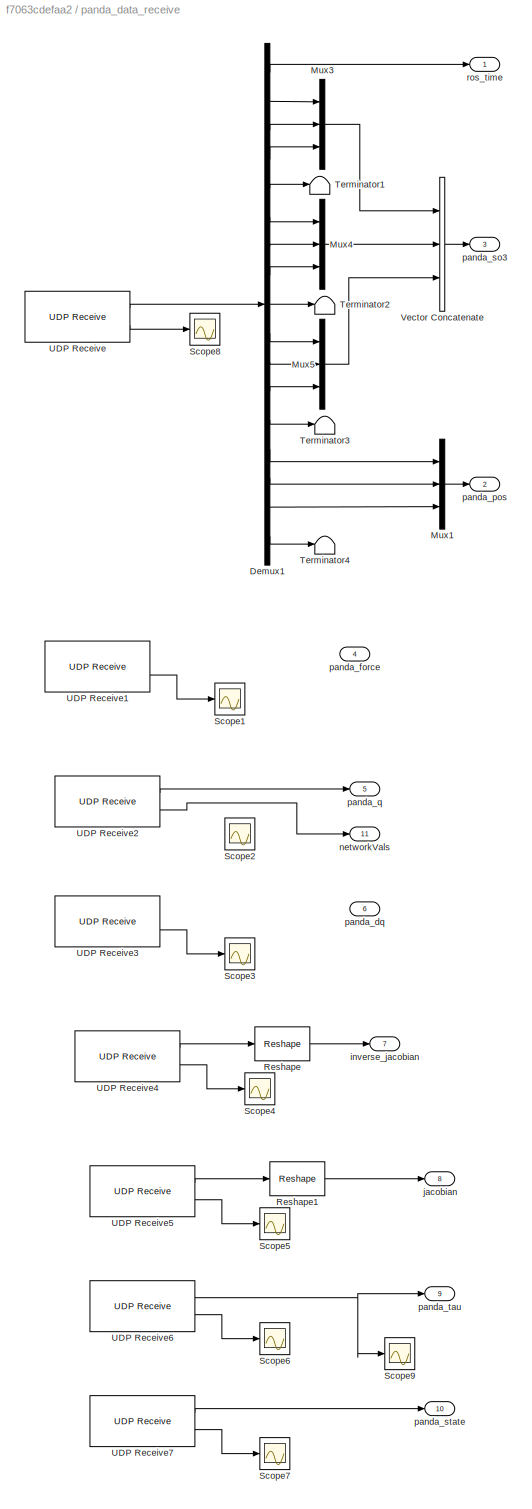
BLOCK [SubSystem] panda_data_receive
  Ports = [0, 11]
  RequestExecContextInheritance = off
BLOCK [Demux] panda_data_receive/Demux1
  DisplayOption = bar
  Outputs = 17
  Ports = [1, 17]
BLOCK [Mux] panda_data_receive/Mux1
  DisplayOption = bar
  Inputs = 3
  Ports = [3, 1]
BLOCK [Mux] panda_data_receive/Mux3
  DisplayOption = bar
  Inputs = 3
  Ports = [3, 1]
BLOCK [Mux] panda_data_receive/Mux4
  DisplayOption = bar
  Inputs = 3
  Ports = [3, 1]
BLOCK [Mux] panda_data_receive/Mux5
  DisplayOption = bar
  Inputs = 3
  Ports = [3, 1]
BLOCK [Reshape] panda_data_receive/Reshape
  OutputDimensionality = Customize
  OutputDimensions = [7,6]
  Ports = [1, 1]
BLOCK [Reshape] panda_data_receive/Reshape1
  Commented = on
  OutputDimensionality = Customize
  OutputDimensions = [7,6]
  Ports = [1, 1]
BLOCK [Scope] panda_data_receive/Scope1
  Commented = on
  Floating = off
  NumInputPorts = 1
  Ports = [1]
  ScopeSpecificationString = Simulink.scopes.TimeScopeBlockCfg('CurrentConfiguration', extmgr.ConfigurationSet(extmgr.Configuration('Core','General UI',true),extmgr.Configuration('Core','Source UI',true),extmgr.Configuration('Sources','WiredSimulink',true,'DataLoggingVariableName','ScopeData2'),extmgr.Configuration('Visuals','Time Domain',true,'SerializedDisplays',{struct('MinYLimReal','-5.25','MaxYLimReal','47.25','YLabelRea...<+1388ch>
BLOCK [Scope] panda_data_receive/Scope2
  Commented = on
  Floating = off
  NumInputPorts = 1
  Ports = [1]
BLOCK [Scope] panda_data_receive/Scope3
  Commented = on
  Floating = off
  NumInputPorts = 1
  Ports = [1]
  ScopeSpecificationString = Simulink.scopes.TimeScopeBlockCfg('CurrentConfiguration', extmgr.ConfigurationSet(extmgr.Configuration('Core','General UI',true),extmgr.Configuration('Core','Source UI',true),extmgr.Configuration('Sources','WiredSimulink',true,'DataLoggingVariableName','ScopeData4'),extmgr.Configuration('Visuals','Time Domain',true,'SerializedDisplays',{struct('MinYLimReal','-5.25','MaxYLimReal','47.25','YLabelRea...<+1388ch>
BLOCK [Scope] panda_data_receive/Scope4
  Commented = on
  Floating = off
  NumInputPorts = 1
  Ports = [1]
  ScopeSpecificationString = Simulink.scopes.TimeScopeBlockCfg('CurrentConfiguration', extmgr.ConfigurationSet(extmgr.Configuration('Core','General UI',true),extmgr.Configuration('Core','Source UI',true),extmgr.Configuration('Sources','WiredSimulink',true,'DataLoggingVariableName','ScopeData5'),extmgr.Configuration('Visuals','Time Domain',true,'SerializedDisplays',{struct('MinYLimReal','-5.25','MaxYLimReal','47.25','YLabelRea...<+1388ch>
BLOCK [Scope] panda_data_receive/Scope5
  Commented = on
  Floating = off
  NumInputPorts = 1
  Ports = [1]
  ScopeSpecificationString = Simulink.scopes.TimeScopeBlockCfg('CurrentConfiguration', extmgr.ConfigurationSet(extmgr.Configuration('Core','General UI',true),extmgr.Configuration('Core','Source UI',true),extmgr.Configuration('Sources','WiredSimulink',true,'DataLoggingVariableName','ScopeData6'),extmgr.Configuration('Visuals','Time Domain',true,'SerializedDisplays',{struct('MinYLimReal','-5.25','MaxYLimReal','47.25','YLabelRea...<+1388ch>
BLOCK [Scope] panda_data_receive/Scope6
  Commented = on
  Floating = off
  NumInputPorts = 1
  Ports = [1]
  ScopeSpecificationString = Simulink.scopes.TimeScopeBlockCfg('CurrentConfiguration', extmgr.ConfigurationSet(extmgr.Configuration('Core','General UI',true),extmgr.Configuration('Core','Source UI',true),extmgr.Configuration('Sources','WiredSimulink',true,'DataLoggingVariableName','ScopeData7'),extmgr.Configuration('Visuals','Time Domain',true,'SerializedDisplays',{struct('MinYLimReal','-1.00000','MaxYLimReal','1.00000','YLab...<+1428ch>
BLOCK [Scope] panda_data_receive/Scope7
  Commented = on
  Floating = off
  NumInputPorts = 1
  Ports = [1]
  ScopeSpecificationString = Simulink.scopes.TimeScopeBlockCfg('CurrentConfiguration', extmgr.ConfigurationSet(extmgr.Configuration('Core','General UI',true),extmgr.Configuration('Core','Source UI',true),extmgr.Configuration('Sources','WiredSimulink',true,'DataLoggingVariableName','ScopeData8'),extmgr.Configuration('Visuals','Time Domain',true,'SerializedDisplays',{struct('MinYLimReal','-5.25','MaxYLimReal','47.25','YLabelRea...<+1388ch>
BLOCK [Scope] panda_data_receive/Scope8
  Floating = off
  NumInputPorts = 1
  Ports = [1]
  ScopeSpecificationString = Simulink.scopes.TimeScopeBlockCfg('CurrentConfiguration', extmgr.ConfigurationSet(extmgr.Configuration('Core','General UI',true),extmgr.Configuration('Core','Source UI',true),extmgr.Configuration('Sources','WiredSimulink',true,'DataLoggingVariableName','ScopeData2'),extmgr.Configuration('Visuals','Time Domain',true,'SerializedDisplays',{struct('MinYLimReal','-1.00000','MaxYLimReal','1.00000','YLab...<+1448ch>
BLOCK [Scope] panda_data_receive/Scope9
  Commented = on
  Floating = off
  NumInputPorts = 1
  Ports = [1]
  ScopeSpecificationString = Simulink.scopes.TimeScopeBlockCfg('CurrentConfiguration', extmgr.ConfigurationSet(extmgr.Configuration('Core','General UI',true),extmgr.Configuration('Core','Source UI',true),extmgr.Configuration('Sources','WiredSimulink',true,'DataLoggingVariableName','ScopeData2'),extmgr.Configuration('Visuals','Time Domain',true,'SerializedDisplays',{struct('MinYLimReal','-1.00000','MaxYLimReal','1.00000','YLab...<+1543ch>
BLOCK [Terminator] panda_data_receive/Terminator1
BLOCK [Terminator] panda_data_receive/Terminator2
BLOCK [Terminator] panda_data_receive/Terminator3
BLOCK [Terminator] panda_data_receive/Terminator4
BLOCK [Reference] panda_data_receive/UDP Receive  REF=dspnetwork/UDP Receive
  Ports = [0, 2]
  SourceBlock = dspnetwork/UDP Receive
  SourceProductBaseCode = SL
  SourceProductName = Simulink
  SourceType = UDP Receive
BLOCK [Reference] panda_data_receive/UDP Receive1  REF=dspnetwork/UDP Receive
  Commented = on
  Ports = [0, 2]
  SourceBlock = dspnetwork/UDP Receive
  SourceProductBaseCode = SL
  SourceProductName = Simulink
  SourceType = UDP Receive
BLOCK [Reference] panda_data_receive/UDP Receive2  REF=dspnetwork/UDP Receive
  Commented = on
  Ports = [0, 2]
  SourceBlock = dspnetwork/UDP Receive
  SourceProductBaseCode = SL
  SourceProductName = Simulink
  SourceType = UDP Receive
BLOCK [Reference] panda_data_receive/UDP Receive3  REF=dspnetwork/UDP Receive
  Commented = on
  Ports = [0, 2]
  SourceBlock = dspnetwork/UDP Receive
  SourceProductBaseCode = SL
  SourceProductName = Simulink
  SourceType = UDP Receive
BLOCK [Reference] panda_data_receive/UDP Receive4  REF=dspnetwork/UDP Receive
  Ports = [0, 2]
  SourceBlock = dspnetwork/UDP Receive
  SourceProductBaseCode = SL
  SourceProductName = Simulink
  SourceType = UDP Receive
BLOCK [Reference] panda_data_receive/UDP Receive5  REF=dspnetwork/UDP Receive
  Commented = on
  Ports = [0, 2]
  SourceBlock = dspnetwork/UDP Receive
  SourceProductBaseCode = SL
  SourceProductName = Simulink
  SourceType = UDP Receive
BLOCK [Reference] panda_data_receive/UDP Receive6  REF=dspnetwork/UDP Receive
  Commented = on
  Ports = [0, 2]
  SourceBlock = dspnetwork/UDP Receive
  SourceProductBaseCode = SL
  SourceProductName = Simulink
  SourceType = UDP Receive
BLOCK [Reference] panda_data_receive/UDP Receive7  REF=dspnetwork/UDP Receive
  Commented = on
  Ports = [0, 2]
  SourceBlock = dspnetwork/UDP Receive
  SourceProductBaseCode = SL
  SourceProductName = Simulink
  SourceType = UDP Receive
BLOCK [Concatenate] panda_data_receive/Vector Concatenate
  ConcatenateDimension = 2
  Mode = Multidimensional array
  NumInputs = 3
  Ports = [3, 1]
BLOCK [Outport] panda_data_receive/inverse_jacobian
  IconDisplay = Port number
  Port = 7
BLOCK [Outport] panda_data_receive/jacobian
  IconDisplay = Port number
  Port = 8
BLOCK [Outport] panda_data_receive/networkVals
  IconDisplay = Port number
  Port = 11
BLOCK [Outport] panda_data_receive/panda_dq
  IconDisplay = Port number
  Port = 6
BLOCK [Outport] panda_data_receive/panda_force
  IconDisplay = Port number
  Port = 4
BLOCK [Outport] panda_data_receive/panda_pos
  IconDisplay = Port number
  Port = 2
BLOCK [Outport] panda_data_receive/panda_q
  IconDisplay = Port number
  Port = 5
BLOCK [Outport] panda_data_receive/panda_so3
  IconDisplay = Port number
  Port = 3
BLOCK [Outport] panda_data_receive/panda_state
  IconDisplay = Port number
  Port = 10
BLOCK [Outport] panda_data_receive/panda_tau
  IconDisplay = Port number
  Port = 9
BLOCK [Outport] panda_data_receive/ros_time
  IconDisplay = Port number
ANNOTATION (root): transforms force sensor measured force to panda end effector frame to base frame
ANNOTATION (root): Axial Tracking
ANNOTATION (root): Biasing sensor and panda position before moving - incorrect approach
ANNOTATION (root): Experimental RCM based on frame transforms - does not work. See ipad notes for details
ANNOTATION (root): Experimental RCM based on screw axis - does not work
ANNOTATION (root): Motoman - receiver (temp)
ANNOTATION (root): Motoman Joint Position Control - depracated
ANNOTATION (root): Sagittal Tracking
ANNOTATION (root): force control
ANNOTATION (root): position control and trajectory generation
ANNOTATION (root): y and z axes are zero'd twice (matlab function and matrix multiplication)
ANNOTATION Velocity Controller1/Tunable FOTF: H(s) = 1 / (ms + c) Y(s) * (1 + c/ms) = U(s) * (1/ms) Y(s) = U(s) * (1/ms) - Y(s) * (c /ms)
ANNOTATION Velocity Controller2/Tunable FOTF: H(s) = 1 / (ms + c) Y(s) * (1 + c/ms) = U(s) * (1/ms) Y(s) = U(s) * (1/ms) - Y(s) * (c /ms)
LINE Add1:1 -> Goto22:1
LINE Add2:1 -> Gain11:1
LINE Add3:1 -> Demux12:1
LINE Byte Reversal:1 -> Mux10:1
LINE Byte Reversal:2 -> Mux10:2
LINE Byte Reversal:3 -> Mux10:3
LINE Byte Reversal:4 -> Mux10:4
LINE Byte Reversal:5 -> Mux10:5
LINE Byte Reversal:6 -> Mux10:6
LINE Clock:1 -> Goto:1
LINE Constant10:1 -> Goto9:1
LINE Constant11:1 -> Goto20:1
LINE Constant12:1 -> Goto4:1
NET Constant13:1 -> Product1:2, Product:2
LINE Constant14:1 -> Goto6:1
LINE Constant15:1 -> Product2:1
LINE Constant16:1 -> Gain3:1
LINE Constant17:1 -> Mux1:3
LINE Constant18:1 -> Goto40:1
LINE Constant19:1 -> MATLAB Function14:1
LINE Constant1:1 -> Subtract11:1
LINE Constant20:1 -> Subtract10:2
LINE Constant21:1 -> Mux3:1
LINE Constant22:1 -> STOP_SWITCH1:2
LINE Constant23:1 -> Divide4:2
LINE Constant24:1 -> Subtract3:1
LINE Constant25:1 -> Mux3:3
LINE Constant26:1 -> Mux4:3
LINE Constant27:1 -> Mux4:2
LINE Constant28:1 -> Demux8:1
LINE Constant29:1 -> Matrix Multiply5:3
LINE Constant2:1 -> UDP Send4:1
LINE Constant30:1 -> Goto48:1
LINE Constant31:1 -> Mux5:2
LINE Constant32:1 -> Goto57:1
LINE Constant33:1 -> Switch4:1
LINE Constant34:1 -> Switch4:3
LINE Constant35:1 -> Subtract16:1
LINE Constant36:1 -> Manual Switch2:1
LINE Constant37:1 -> Manual Switch2:2
LINE Constant3:1 -> Manual Switch:2
LINE Constant4:1 -> Goto7:1
LINE Constant5:1 -> Mux1:2
LINE Constant6:1 -> Goto12:1
NET Constant7:1 -> Product2:2, Product3:2
LINE Constant8:1 -> Product:1
LINE Constant9:1 -> Gain1:1
NET Degrees to Radians:1 -> MATLAB Function30:1, Scope22:1
LINE Demux10:1 -> Mux6:3
LINE Demux10:2 -> Gain10:1
LINE Demux10:3 -> Mux6:2
LINE Demux11:4 -> Byte Reversal:1
LINE Demux11:5 -> Byte Reversal:2
LINE Demux11:6 -> Byte Reversal:3
LINE Demux11:7 -> Byte Reversal:4
LINE Demux11:8 -> Byte Reversal:5
LINE Demux11:9 -> Byte Reversal:6
LINE Demux12:1 -> Mux8:1
LINE Demux12:2 -> Mux8:2
LINE Demux12:3 -> Terminator:1
LINE Demux13:3 -> Mux9:3
LINE Demux15:1 -> Mux14:1
LINE Demux15:2 -> Mux14:2
LINE Demux1:1 -> Mux:4
LINE Demux1:2 -> Mux:5
LINE Demux1:3 -> Mux:6
LINE Demux2:1 -> Mux:1
LINE Demux2:2 -> Mux:2
LINE Demux2:3 -> Mux:3
LINE Demux3:1 -> MATLAB Function6:1
LINE Demux3:2 -> MATLAB Function7:1
LINE Demux4:1 -> MATLAB Function7:2
LINE Demux4:2 -> MATLAB Function7:3
LINE Demux4:3 -> MATLAB Function7:4
LINE Demux5:1 -> MATLAB Function6:2
LINE Demux5:2 -> MATLAB Function6:3
LINE Demux5:3 -> MATLAB Function6:4
LINE Demux6:1 -> MATLAB Function16:1
LINE Demux6:2 -> MATLAB Function16:2
LINE Demux6:3 -> MATLAB Function16:3
LINE Demux7:1 -> MATLAB Function4:2
LINE Demux7:2 -> MATLAB Function4:3
LINE Demux7:3 -> MATLAB Function4:4
LINE Demux8:1 -> MATLAB Function18:1
LINE Demux8:2 -> MATLAB Function18:2
LINE Demux8:3 -> MATLAB Function18:3
LINE Demux9:1 -> Mux4:1
LINE Divide4:1 -> Goto35:1
LINE From101:1 -> Radians to Degrees1:1
LINE From102:1 -> Switch4:2
LINE From103:1 -> MATLAB Function35:3
LINE From104:1 -> MATLAB Function35:4
LINE From10:1 -> Sum2:1
LINE From11:1 -> Subtract9:1
LINE From12:1 -> Goto17:1
LINE From13:1 -> Subtract2:2
LINE From14:1 -> MATLAB Function3:3
LINE From15:1 -> MATLAB Function3:2
LINE From16:1 -> Demux7:1
LINE From17:1 -> MATLAB Function5:2
LINE From18:1 -> Product6:1
LINE From19:1 -> MATLAB Function2:2
LINE From1:1 -> Velocity Controller2:1
NET From20:1 -> MATLAB Function8:2, MATLAB Function:2
LINE From21:1 -> Velocity Controller1:1
LINE From22:1 -> VelocityOut1:1
LINE From23:1 -> MATLAB Function3:1
LINE From24:1 -> Switch3:2
LINE From25:1 -> Velocity Controller1:enable
LINE From26:1 -> Velocity Controller2:enable
LINE From27:1 -> Demux3:1
LINE From28:1 -> Matrix Multiply1:1
LINE From29:1 -> Switch1:3
LINE From2:1 -> MATLAB Function26:3
LINE From30:1 -> Goto28:1
LINE From31:1 -> Demux4:1
LINE From32:1 -> Subtract4:2
LINE From33:1 -> Demux5:1
LINE From34:1 -> Add1:1
LINE From35:1 -> Add1:2
LINE From36:1 -> Add1:3
LINE From37:1 -> Subtract2:1
LINE From38:1 -> New Phantom:1
LINE From39:1 -> New Phantom:2
LINE From3:1 -> MATLAB Function5:1
LINE From40:1 -> New Phantom:3
LINE From41:1 -> New Phantom:4
LINE From42:1 -> UDP Send2:1
LINE From43:1 -> Product4:1
LINE From44:1 -> Product5:1
LINE From45:1 -> UDP Send3:1
LINE From46:1 -> Switch2:1
LINE From47:1 -> Switch3:1
LINE From48:1 -> MATLAB Function9:2
LINE From49:1 -> MATLAB Function10:1
LINE From4:1 -> DerivOut1:1
LINE From50:1 -> Subtract5:1
LINE From52:1 -> MATLAB Function11:1
LINE From53:1 -> Subtract6:1
LINE From54:1 -> Switch1:1
LINE From55:1 -> Subtract7:2
LINE From56:1 -> Subtract9:2
LINE From57:1 -> Subtract11:2
LINE From58:1 -> Matrix Multiply3:1
LINE From59:1 -> Switch2:2
LINE From5:1 -> Sum:1
LINE From60:1 -> Demux6:1
LINE From61:1 -> MATLAB Function19:1
LINE From62:1 -> MATLAB Function21:1
LINE From63:1 -> MATLAB Function19:2
LINE From64:1 -> Subtract12:2
LINE From65:1 -> Matrix Multiply5:1
LINE From66:1 -> Matrix Multiply:1
LINE From67:1 -> MATLAB Function24:1
LINE From68:1 -> Mux5:1
LINE From69:1 -> in general1:1
LINE From6:1 -> Switch3:3
LINE From70:1 -> MATLAB Function21:2
LINE From71:1 -> Matrix Multiply5:2
LINE From72:1 -> Matrix Multiply6:1
LINE From73:1 -> MATLAB Function23:1
LINE From74:1 -> Subtract8:2
LINE From75:1 -> Demux10:1
NET From76:1 -> Display4:1, PandaPosition:1
LINE From77:1 -> MATLAB Function33:1
NET From78:1 -> Display3:1, PandaRotation:1
LINE From79:1 -> Mux11:1
LINE From7:1 -> Switch1:2
LINE From80:1 -> MATLAB Function11:2
LINE From81:1 -> VelocityOut:1
LINE From82:1 -> Demux13:1
LINE From83:1 -> Subtract3:2
LINE From84:1 -> Subtract1:2
LINE From85:1 -> MATLAB Function26:1
NET From86:1 -> Display22:1, Scope25:1
NET From87:1 -> Add3:2, MATLAB Function26:2
LINE From88:1 -> Radians to Degrees:1
LINE From89:1 -> Subtract1:1
LINE From8:1 -> Sum2:2
LINE From91:1 -> Switch2:3
LINE From92:1 -> Mux11:3
LINE From93:1 -> Subtract14:3
LINE From94:1 -> Mux12:3
LINE From95:1 -> Subtract15:2
LINE From96:1 -> Subtract15:1
LINE From97:1 -> MATLAB Function35:2
LINE From98:1 -> Subtract13:2
LINE From99:1 -> Subtract16:2
LINE From9:1 -> Demux1:1
NET From:1 -> Display2:1, Scope5:1
LINE Gain10:1 -> Mux6:1
NET Gain11:1 -> Goto31:1, Scope18:1
LINE Gain12:1 -> Goto60:1
LINE Gain13:1 -> Subtract13:1
LINE Gain14:1 -> Goto59:1
LINE Gain1:1 -> Product1:1
LINE Gain2:1 -> Rate Limiter1:1
LINE Gain3:1 -> Product3:1
LINE Gain4:1 -> Matrix Multiply1:2
LINE Gain5:1 -> Goto21:1
NET Gain6:1 -> Goto32:1, Scope14:1
LINE Gain7:1 -> Goto33:1
LINE Gain8:1 -> MATLAB Function15:3
NET Gain9:1 -> MATLAB Function9:1, Scope15:1
LINE Gain:1 -> Goto16:1
LINE Identity Matrix:1 -> Subtract4:1
LINE MATLAB Function10:1 -> Subtract5:2
LINE MATLAB Function11:1 -> Subtract6:2
LINE MATLAB Function12:1 -> Rate Transition1:1
LINE MATLAB Function12:2 -> Display14:1
LINE MATLAB Function13:1 -> Gain6:1
LINE MATLAB Function14:1 -> in general3:1
NET MATLAB Function15:1 -> Display16:1, Matrix Multiply4:1, PandaRotation1:1
LINE MATLAB Function16:1 -> Matrix Multiply3:2
LINE MATLAB Function17:1 -> MATLAB Function14:3
LINE MATLAB Function18:1 -> Matrix Multiply4:2
LINE MATLAB Function19:1 -> in general4:1
LINE MATLAB Function1:1 -> Gain5:1
LINE MATLAB Function20:1 -> Demux9:1
LINE MATLAB Function21:1 -> Display15:1
NET MATLAB Function22:1 -> Display18:1, Subtract8:1
LINE MATLAB Function23:1 -> Matrix Multiply6:2
LINE MATLAB Function24:1 -> Goto47:1
LINE MATLAB Function25:1 -> Display20:1
NET MATLAB Function26:1 -> Display21:1, MATLAB Function28:1, Scope17:1
NET MATLAB Function26:3 -> Display29:1, Goto65:1, Scope29:1
LINE MATLAB Function27:1 -> Gain12:1
LINE MATLAB Function28:1 -> Add3:1
LINE MATLAB Function2:1 -> Product6:2
LINE MATLAB Function30:1 -> Goto63:1
LINE MATLAB Function32:1 -> Goto64:1
LINE MATLAB Function33:1 -> STOP_SWITCH1:1
LINE MATLAB Function34:1 -> Gain14:1
LINE MATLAB Function35:1 -> Display27:1
NET MATLAB Function35:2 -> Display28:1, MATLAB Function32:1, Scope26:1
LINE MATLAB Function35:3 -> Goto67:1
LINE MATLAB Function35:4 -> Goto61:1
LINE MATLAB Function3:1 -> MATLAB Function4:1
LINE MATLAB Function4:1 -> MATLAB Function2:1
NET MATLAB Function5:1 -> Display6:1, Sum:2
NET MATLAB Function5:2 -> Display5:1, Goto2:1
LINE MATLAB Function6:1 -> MATLAB Function:1
LINE MATLAB Function7:1 -> MATLAB Function8:1
LINE MATLAB Function8:1 -> Product5:2
LINE MATLAB Function9:1 -> Scope11:1
LINE MATLAB Function:1 -> Product4:2
LINE Manual Switch2:1 -> Goto66:1
LINE Manual Switch:1 -> Matrix Multiply:2
NET Matrix Multiply1:1 -> Goto8:1, Scope4:1
NET Matrix Multiply2:1 -> Goto18:1, Scope2:1
LINE Matrix Multiply3:1 -> MATLAB Function17:1
LINE Matrix Multiply4:1 -> Goto34:1
LINE Matrix Multiply5:1 -> MATLAB Function22:1
LINE Matrix Multiply6:1 -> MATLAB Function25:1
LINE Matrix Multiply:1 -> Gain2:1
LINE Moving Average:1 -> Matrix Multiply2:2
LINE Mux10:1 -> Divide4:1
LINE Mux11:1 -> UDP Send6:1
LINE Mux12:1 -> Subtract14:2
NET Mux14:1 -> Gain13:1, VelocityOut3:1
NET Mux1:1 -> Display17:1, Scope13:1, Subtract7:1
LINE Mux2:1 -> Subtract12:1
LINE Mux3:1 -> MATLAB Function14:2
LINE Mux4:1 -> Goto36:1
LINE Mux5:1 -> Matrix Multiply6:3
LINE Mux6:1 -> Gain9:1
LINE Mux7:1 -> Goto19:1
LINE Mux8:1 -> Add2:1
LINE Mux9:1 -> Add2:2
LINE Mux:1 -> Manual Switch:1
NET New Phantom:1 -> Goto23:1, Scope1:1
NET New Phantom:2 -> Display9:1, Goto24:1, Scope6:1
NET New Phantom:3 -> Goto25:1, Scope3:1
LINE New Phantom:4 -> Scope9:1
NET New Phantom:5 -> Display26:1, Goto39:1, Scope23:1
LINE PID Controller2:1 -> Rate Limiter3:1
LINE Panda_inv_jac_receive/Reshape:1 -> Panda_inv_jac_receive/inverse_jacobian:1
LINE Panda_inv_jac_receive/UDP Receive:1 -> Panda_inv_jac_receive/Reshape:1
LINE Panda_inv_jac_receive/UDP Receive:2 -> Panda_inv_jac_receive/Scope:1
LINE Panda_inv_jac_receive1/UDP Receive:1 -> Panda_inv_jac_receive1/panda_state:1
LINE Panda_inv_jac_receive1/UDP Receive:2 -> Panda_inv_jac_receive1/Scope:1
LINE Panda_inv_jac_receive1:1 -> Goto43:1
LINE Panda_inv_jac_receive:1 -> Goto42:1
LINE Product1:1 -> Velocity Controller1:3
LINE Product2:1 -> Velocity Controller2:2
LINE Product3:1 -> Velocity Controller2:3
LINE Product4:1 -> Goto10:1
LINE Product5:1 -> Goto11:1
LINE Product6:1 -> PID Controller2:1
LINE Product:1 -> Velocity Controller1:2
LINE Radians to Degrees1:1 -> Mux11:4
LINE Radians to Degrees:1 -> Mux11:2
LINE Rate Limiter1:1 -> UDP Send1:1
LINE Rate Limiter3:1 -> Moving Average:1
NET Rate Transition1:1 -> Display13:1, UDP Send5:1
LINE STOP_SWITCH1:1 -> Goto45:1
LINE Saturation:1 -> Demux2:1
LINE Sine Wave1:1 -> Mux3:2
LINE Sine Wave:1 -> Subtract10:1
LINE Subtract10:1 -> Mux1:1
LINE Subtract11:1 -> Gain7:1
LINE Subtract12:1 -> MATLAB Function20:1
LINE Subtract13:1 -> Goto62:1
NET Subtract14:1 -> MATLAB Function27:1, VelocityOut2:1
LINE Subtract15:1 -> Demux15:1
NET Subtract16:1 -> MATLAB Function34:1, VelocityOut4:1
LINE Subtract1:1 -> Gain:1
LINE Subtract2:1 -> Gain4:1
LINE Subtract3:1 -> MATLAB Function1:1
LINE Subtract4:1 -> Matrix Multiply2:1
NET Subtract5:1 -> Display8:1, Goto29:1
NET Subtract6:1 -> Display11:1, Goto30:1, Scope16:1
LINE Subtract7:1 -> MATLAB Function13:1
NET Subtract8:1 -> Display19:1, Goto41:1
LINE Subtract9:1 -> MATLAB Function5:3
NET Sum2:1 -> Display1:1, Goto3:1
NET Sum:1 -> Display10:1, Goto1:1, Scope:1
LINE Switch1:1 -> Goto5:1
LINE Switch2:1 -> Saturation:1
LINE Switch3:1 -> Goto15:1
LINE Switch4:1 -> Subtract14:1
LINE UDP Receive1:1 -> Demux11:1
LINE UDP Receive1:2 -> NetworkPacket:1
NET UDP Receive2:1 -> Goto26:1, Scope8:1
LINE UDP Receive2:2 -> Scope7:1
NET UDP Receive3:1 -> Display7:1, Goto27:1
LINE UDP Receive3:2 -> Scope10:1
LINE UDP Receive4:1 -> Display12:1
LINE UDP Receive4:2 -> Scope12:1
NET UDP Receive5:1 -> Display23:1, Goto58:1, Scope28:1
LINE UDP Receive5:2 -> Scope19:1
NET UDP Receive6:1 -> Display24:1, MATLAB Function35:1
LINE UDP Receive6:2 -> Scope20:1
NET UDP Receive7:1 -> Degrees to Radians:1, Display25:1
LINE UDP Receive7:2 -> Scope21:1
LINE Velocity Controller1/Demux1:1 -> Velocity Controller1/Goto1:1
LINE Velocity Controller1/Demux1:2 -> Velocity Controller1/Goto3:1
LINE Velocity Controller1/Demux1:3 -> Velocity Controller1/Goto4:1
LINE Velocity Controller1/Demux2:1 -> Velocity Controller1/Goto2:1
LINE Velocity Controller1/Demux2:2 -> Velocity Controller1/Goto5:1
LINE Velocity Controller1/Demux2:3 -> Velocity Controller1/Goto8:1
LINE Velocity Controller1/Demux:1 -> Velocity Controller1/Tunable FOTF:1
LINE Velocity Controller1/Demux:2 -> Velocity Controller1/Tunable FOTF1:1
LINE Velocity Controller1/Demux:3 -> Velocity Controller1/Tunable FOTF2:1
LINE Velocity Controller1/F_Total:1 -> Velocity Controller1/Demux:1
LINE Velocity Controller1/From2:1 -> Velocity Controller1/Tunable FOTF:2
LINE Velocity Controller1/From3:1 -> Velocity Controller1/Tunable FOTF:3
LINE Velocity Controller1/From4:1 -> Velocity Controller1/Tunable FOTF1:2
LINE Velocity Controller1/From7:1 -> Velocity Controller1/Tunable FOTF1:3
LINE Velocity Controller1/From8:1 -> Velocity Controller1/Tunable FOTF2:2
LINE Velocity Controller1/From9:1 -> Velocity Controller1/Tunable FOTF2:3
LINE Velocity Controller1/Mux:1 -> Velocity Controller1/Vel_Cart:1
LINE Velocity Controller1/Tunable FOTF/Divide1:1 -> Velocity Controller1/Tunable FOTF/Sum:2
LINE Velocity Controller1/Tunable FOTF/Integrator1:1 -> Velocity Controller1/Tunable FOTF/Product:1
LINE Velocity Controller1/Tunable FOTF/Integrator2:1 -> Velocity Controller1/Tunable FOTF/Divide1:3
LINE Velocity Controller1/Tunable FOTF/Product:1 -> Velocity Controller1/Tunable FOTF/Sum:1
NET Velocity Controller1/Tunable FOTF/Sum:1 -> Velocity Controller1/Tunable FOTF/Integrator2:1, Velocity Controller1/Tunable FOTF/Y:1
LINE Velocity Controller1/Tunable FOTF/U:1 -> Velocity Controller1/Tunable FOTF/Integrator1:1
LINE Velocity Controller1/Tunable FOTF/c:1 -> Velocity Controller1/Tunable FOTF/Divide1:2
NET Velocity Controller1/Tunable FOTF/m:1 -> Velocity Controller1/Tunable FOTF/Divide1:1, Velocity Controller1/Tunable FOTF/Product:2
LINE Velocity Controller1/Tunable FOTF1/Divide1:1 -> Velocity Controller1/Tunable FOTF1/Sum:2
LINE Velocity Controller1/Tunable FOTF1/Integrator1:1 -> Velocity Controller1/Tunable FOTF1/Product:1
LINE Velocity Controller1/Tunable FOTF1/Integrator2:1 -> Velocity Controller1/Tunable FOTF1/Divide1:3
LINE Velocity Controller1/Tunable FOTF1/Product:1 -> Velocity Controller1/Tunable FOTF1/Sum:1
NET Velocity Controller1/Tunable FOTF1/Sum:1 -> Velocity Controller1/Tunable FOTF1/Integrator2:1, Velocity Controller1/Tunable FOTF1/Y:1
NET Velocity Controller1/Tunable FOTF1/U:1 -> Velocity Controller1/Tunable FOTF1/Integrator1:1, Velocity Controller1/Tunable FOTF1/Scope:1
LINE Velocity Controller1/Tunable FOTF1/c:1 -> Velocity Controller1/Tunable FOTF1/Divide1:2
NET Velocity Controller1/Tunable FOTF1/m:1 -> Velocity Controller1/Tunable FOTF1/Divide1:1, Velocity Controller1/Tunable FOTF1/Product:2
LINE Velocity Controller1/Tunable FOTF1:1 -> Velocity Controller1/Mux:2
LINE Velocity Controller1/Tunable FOTF2/Divide1:1 -> Velocity Controller1/Tunable FOTF2/Sum:2
LINE Velocity Controller1/Tunable FOTF2/Integrator1:1 -> Velocity Controller1/Tunable FOTF2/Product:1
LINE Velocity Controller1/Tunable FOTF2/Integrator2:1 -> Velocity Controller1/Tunable FOTF2/Divide1:3
LINE Velocity Controller1/Tunable FOTF2/Product:1 -> Velocity Controller1/Tunable FOTF2/Sum:1
NET Velocity Controller1/Tunable FOTF2/Sum:1 -> Velocity Controller1/Tunable FOTF2/Integrator2:1, Velocity Controller1/Tunable FOTF2/Y:1
LINE Velocity Controller1/Tunable FOTF2/U:1 -> Velocity Controller1/Tunable FOTF2/Integrator1:1
LINE Velocity Controller1/Tunable FOTF2/c:1 -> Velocity Controller1/Tunable FOTF2/Divide1:2
NET Velocity Controller1/Tunable FOTF2/m:1 -> Velocity Controller1/Tunable FOTF2/Divide1:1, Velocity Controller1/Tunable FOTF2/Product:2
LINE Velocity Controller1/Tunable FOTF2:1 -> Velocity Controller1/Mux:3
LINE Velocity Controller1/Tunable FOTF:1 -> Velocity Controller1/Mux:1
LINE Velocity Controller1/c:1 -> Velocity Controller1/Demux2:1
LINE Velocity Controller1/m:1 -> Velocity Controller1/Demux1:1
LINE Velocity Controller1:1 -> Goto14:1
LINE Velocity Controller2/Demux1:1 -> Velocity Controller2/Goto1:1
LINE Velocity Controller2/Demux1:2 -> Velocity Controller2/Goto3:1
LINE Velocity Controller2/Demux1:3 -> Velocity Controller2/Goto4:1
LINE Velocity Controller2/Demux2:1 -> Velocity Controller2/Goto2:1
LINE Velocity Controller2/Demux2:2 -> Velocity Controller2/Goto5:1
LINE Velocity Controller2/Demux2:3 -> Velocity Controller2/Goto8:1
LINE Velocity Controller2/Demux:1 -> Velocity Controller2/Tunable FOTF:1
LINE Velocity Controller2/Demux:2 -> Velocity Controller2/Tunable FOTF1:1
LINE Velocity Controller2/Demux:3 -> Velocity Controller2/Tunable FOTF2:1
LINE Velocity Controller2/From2:1 -> Velocity Controller2/Tunable FOTF:2
LINE Velocity Controller2/From3:1 -> Velocity Controller2/Tunable FOTF:3
LINE Velocity Controller2/From4:1 -> Velocity Controller2/Tunable FOTF1:2
LINE Velocity Controller2/From7:1 -> Velocity Controller2/Tunable FOTF1:3
LINE Velocity Controller2/From8:1 -> Velocity Controller2/Tunable FOTF2:2
LINE Velocity Controller2/From9:1 -> Velocity Controller2/Tunable FOTF2:3
LINE Velocity Controller2/M_Total:1 -> Velocity Controller2/Demux:1
LINE Velocity Controller2/Mux:1 -> Velocity Controller2/Vel_Rot:1
LINE Velocity Controller2/Tunable FOTF/Divide1:1 -> Velocity Controller2/Tunable FOTF/Sum:2
LINE Velocity Controller2/Tunable FOTF/Integrator1:1 -> Velocity Controller2/Tunable FOTF/Product:1
LINE Velocity Controller2/Tunable FOTF/Integrator2:1 -> Velocity Controller2/Tunable FOTF/Divide1:3
LINE Velocity Controller2/Tunable FOTF/Product:1 -> Velocity Controller2/Tunable FOTF/Sum:1
NET Velocity Controller2/Tunable FOTF/Sum:1 -> Velocity Controller2/Tunable FOTF/Integrator2:1, Velocity Controller2/Tunable FOTF/Y:1
LINE Velocity Controller2/Tunable FOTF/U:1 -> Velocity Controller2/Tunable FOTF/Integrator1:1
LINE Velocity Controller2/Tunable FOTF/c:1 -> Velocity Controller2/Tunable FOTF/Divide1:2
NET Velocity Controller2/Tunable FOTF/m:1 -> Velocity Controller2/Tunable FOTF/Divide1:1, Velocity Controller2/Tunable FOTF/Product:2
LINE Velocity Controller2/Tunable FOTF1/Divide1:1 -> Velocity Controller2/Tunable FOTF1/Sum:2
LINE Velocity Controller2/Tunable FOTF1/Integrator1:1 -> Velocity Controller2/Tunable FOTF1/Product:1
LINE Velocity Controller2/Tunable FOTF1/Integrator2:1 -> Velocity Controller2/Tunable FOTF1/Divide1:3
LINE Velocity Controller2/Tunable FOTF1/Product:1 -> Velocity Controller2/Tunable FOTF1/Sum:1
NET Velocity Controller2/Tunable FOTF1/Sum:1 -> Velocity Controller2/Tunable FOTF1/Integrator2:1, Velocity Controller2/Tunable FOTF1/Y:1
NET Velocity Controller2/Tunable FOTF1/U:1 -> Velocity Controller2/Tunable FOTF1/Integrator1:1, Velocity Controller2/Tunable FOTF1/Scope:1
LINE Velocity Controller2/Tunable FOTF1/c:1 -> Velocity Controller2/Tunable FOTF1/Divide1:2
NET Velocity Controller2/Tunable FOTF1/m:1 -> Velocity Controller2/Tunable FOTF1/Divide1:1, Velocity Controller2/Tunable FOTF1/Product:2
LINE Velocity Controller2/Tunable FOTF1:1 -> Velocity Controller2/Mux:2
LINE Velocity Controller2/Tunable FOTF2/Divide1:1 -> Velocity Controller2/Tunable FOTF2/Sum:2
LINE Velocity Controller2/Tunable FOTF2/Integrator1:1 -> Velocity Controller2/Tunable FOTF2/Product:1
LINE Velocity Controller2/Tunable FOTF2/Integrator2:1 -> Velocity Controller2/Tunable FOTF2/Divide1:3
LINE Velocity Controller2/Tunable FOTF2/Product:1 -> Velocity Controller2/Tunable FOTF2/Sum:1
NET Velocity Controller2/Tunable FOTF2/Sum:1 -> Velocity Controller2/Tunable FOTF2/Integrator2:1, Velocity Controller2/Tunable FOTF2/Y:1
LINE Velocity Controller2/Tunable FOTF2/U:1 -> Velocity Controller2/Tunable FOTF2/Integrator1:1
LINE Velocity Controller2/Tunable FOTF2/c:1 -> Velocity Controller2/Tunable FOTF2/Divide1:2
NET Velocity Controller2/Tunable FOTF2/m:1 -> Velocity Controller2/Tunable FOTF2/Divide1:1, Velocity Controller2/Tunable FOTF2/Product:2
LINE Velocity Controller2/Tunable FOTF2:1 -> Velocity Controller2/Mux:3
LINE Velocity Controller2/Tunable FOTF:1 -> Velocity Controller2/Mux:1
LINE Velocity Controller2/c:1 -> Velocity Controller2/Demux2:1
LINE Velocity Controller2/m:1 -> Velocity Controller2/Demux1:1
LINE Velocity Controller2:1 -> Goto13:1
LINE in general1:1 -> Mux7:1
LINE in general1:2 -> Mux7:2
LINE in general1:3 -> Mux7:3
LINE in general3:1 -> Gain8:1
LINE in general3:2 -> MATLAB Function15:2
LINE in general3:3 -> MATLAB Function15:1
LINE in general4:1 -> Mux2:1
LINE in general4:2 -> Mux2:2
LINE in general4:3 -> Mux2:3
LINE joy_state_receive1/UDP Receive:1 -> joy_state_receive1/joy_state :1
LINE joy_state_receive1/UDP Receive:2 -> joy_state_receive1/Scope:1
LINE joy_state_receive1:1 -> Goto44:1
LINE panda_data_receive/Demux1:1 -> panda_data_receive/ros_time:1
LINE panda_data_receive/Demux1:10 -> panda_data_receive/Mux5:1
LINE panda_data_receive/Demux1:11 -> panda_data_receive/Mux5:2
LINE panda_data_receive/Demux1:12 -> panda_data_receive/Mux5:3
LINE panda_data_receive/Demux1:13 -> panda_data_receive/Terminator3:1
LINE panda_data_receive/Demux1:14 -> panda_data_receive/Mux1:1
LINE panda_data_receive/Demux1:15 -> panda_data_receive/Mux1:2
LINE panda_data_receive/Demux1:16 -> panda_data_receive/Mux1:3
LINE panda_data_receive/Demux1:17 -> panda_data_receive/Terminator4:1
LINE panda_data_receive/Demux1:2 -> panda_data_receive/Mux3:1
LINE panda_data_receive/Demux1:3 -> panda_data_receive/Mux3:2
LINE panda_data_receive/Demux1:4 -> panda_data_receive/Mux3:3
LINE panda_data_receive/Demux1:5 -> panda_data_receive/Terminator1:1
LINE panda_data_receive/Demux1:6 -> panda_data_receive/Mux4:1
LINE panda_data_receive/Demux1:7 -> panda_data_receive/Mux4:2
LINE panda_data_receive/Demux1:8 -> panda_data_receive/Mux4:3
LINE panda_data_receive/Demux1:9 -> panda_data_receive/Terminator2:1
LINE panda_data_receive/Mux1:1 -> panda_data_receive/panda_pos:1
LINE panda_data_receive/Mux3:1 -> panda_data_receive/Vector Concatenate:1
LINE panda_data_receive/Mux4:1 -> panda_data_receive/Vector Concatenate:2
LINE panda_data_receive/Mux5:1 -> panda_data_receive/Vector Concatenate:3
LINE panda_data_receive/Reshape1:1 -> panda_data_receive/jacobian:1
LINE panda_data_receive/Reshape:1 -> panda_data_receive/inverse_jacobian:1
LINE panda_data_receive/UDP Receive1:2 -> panda_data_receive/Scope1:1
LINE panda_data_receive/UDP Receive2:1 -> panda_data_receive/panda_q:1
LINE panda_data_receive/UDP Receive2:2 -> panda_data_receive/networkVals:1
LINE panda_data_receive/UDP Receive3:2 -> panda_data_receive/Scope3:1
LINE panda_data_receive/UDP Receive4:1 -> panda_data_receive/Reshape:1
LINE panda_data_receive/UDP Receive4:2 -> panda_data_receive/Scope4:1
LINE panda_data_receive/UDP Receive5:1 -> panda_data_receive/Reshape1:1
LINE panda_data_receive/UDP Receive5:2 -> panda_data_receive/Scope5:1
NET panda_data_receive/UDP Receive6:1 -> panda_data_receive/Scope9:1, panda_data_receive/panda_tau:1
LINE panda_data_receive/UDP Receive6:2 -> panda_data_receive/Scope6:1
LINE panda_data_receive/UDP Receive7:1 -> panda_data_receive/panda_state:1
LINE panda_data_receive/UDP Receive7:2 -> panda_data_receive/Scope7:1
LINE panda_data_receive/UDP Receive:1 -> panda_data_receive/Demux1:1
LINE panda_data_receive/UDP Receive:2 -> panda_data_receive/Scope8:1
LINE panda_data_receive/Vector Concatenate:1 -> panda_data_receive/panda_so3:1
LINE panda_data_receive:1 -> Goto52:1
LINE panda_data_receive:10 -> Goto56:1
LINE panda_data_receive:11 -> Goto37:1
LINE panda_data_receive:2 -> Goto46:1
LINE panda_data_receive:3 -> Goto49:1
LINE panda_data_receive:4 -> Goto38:1
LINE panda_data_receive:5 -> Goto50:1
LINE panda_data_receive:6 -> Goto51:1
LINE panda_data_receive:7 -> Goto53:1
LINE panda_data_receive:8 -> Goto54:1
LINE panda_data_receive:9 -> Goto55:1
note: NET lines group one-source signal fan-out (src -> all destinations, sorted); 1:1 wires keep LINE
CHART MATLAB Function1 states=1 transitions=1
  STATE_LABEL 'eML_blk_kernel()'
  STATE_LABEL 'SCRIPT:\nfunction y = fcn(u)\n    for i = 1:3\n        if u(i)>pi\n            u(i) = u(i)-(2*pi)\n        elseif u(i)<-pi\n            u(i) = u(i)+(2*pi)\n        end\n    end\ny = u;\n'  <repeated x5 — deduplicated; at blocks: MATLAB Function1, MATLAB Function13, MATLAB Function20, MATLAB Function27, MATLAB Function34>
CHART MATLAB Function2 states=1 transitions=1
  STATE_LABEL 'eML_blk_kernel()'
  STATE_LABEL 'SCRIPT:\nfunction x_rot = rot(x,R)\n%#codegen\nx_rot = R*x;\nend\n'
CHART MATLAB Function3 states=1 transitions=1
  STATE_LABEL 'eML_blk_kernel()'
  STATE_LABEL 'SCRIPT:\nfunction f_err  = f_err_z(f_des, f_act, bias_good)\n%#codegen\nf_err = zeros(3,1);\nif bias_good == false\n    return\nelseif bias_good == true    \n    f_err(3) = f_des - f_act(3);\nend\n\n'
CHART MATLAB Function4 states=1 transitions=1
  STATE_LABEL 'eML_blk_kernel()'
  STATE_LABEL 'SCRIPT:\nfunction X_t  = rot(X,arad,brad,grad)\n%#codegen\nRz = [cos(arad) -sin(arad) 0; sin(arad) cos(arad) 0; 0 0 1];\nRy = [cos(brad) 0 sin(brad); 0 1 0; -sin(brad) 0 cos(brad)];\nRx = [1 0 0; 0 cos(grad) -sin(grad); 0 sin(grad) cos(grad)];\nT = Rz * Ry * Rx;\nT = -T;\nX_t = T*X;'
CHART MATLAB Function states=1 transitions=1
  STATE_LABEL 'eML_blk_kernel()'
  STATE_LABEL 'SCRIPT:\nfunction x_rot = rot(x,R)\n%#codegen\nx_rot = R*x;\nend\n'
CHART MATLAB Function5 states=1 transitions=1
  STATE_LABEL 'eML_blk_kernel()'
  STATE_LABEL 'SCRIPT:\nfunction [bias, forceBiasGood] = forceBias(forceMeasure,currentPos,desiredPos)\npersistent n force_sensor_data\ndata_limit = 5000;\npos_max_error = 0.0007;\n\nif isempty(force_sensor_data)\n    force_sensor_data = zeros(6,data_limit);\nend\n\nif isempty(n)\n    n = 1;\nend\n\nerrPos = sum(abs(currentPos - desiredPos));\nif(errPos <= pos_max_error && n <= data_limit)\n    %if(n <= data_limit && biasPosGoo...<+311ch>'
CHART MATLAB Function6 states=1 transitions=1
  STATE_LABEL 'eML_blk_kernel()'
  STATE_LABEL 'SCRIPT:\nfunction X_t  = rot(X,arad,brad,grad)\n%#codegen\nRz = [cos(arad) -sin(arad) 0; sin(arad) cos(arad) 0; 0 0 1];\nRy = [cos(brad) 0 sin(brad); 0 1 0; -sin(brad) 0 cos(brad)];\nRx = [1 0 0; 0 cos(grad) -sin(grad); 0 sin(grad) cos(grad)];\nT = Rz * Ry * Rx;\nT = -T; %force sensor was installed upside down\nX_t = T*X;'
CHART MATLAB Function7 states=1 transitions=1
  STATE_LABEL 'eML_blk_kernel()'
  STATE_LABEL 'SCRIPT:\nfunction X_t  = rot(X,arad,brad,grad)\n%#codegen\nRz = [cos(arad) -sin(arad) 0; sin(arad) cos(arad) 0; 0 0 1];\nRy = [cos(brad) 0 sin(brad); 0 1 0; -sin(brad) 0 cos(brad)];\nRx = [1 0 0; 0 cos(grad) -sin(grad); 0 sin(grad) cos(grad)];\nT = Rz * Ry * Rx;\nT(3,3) = -T(3,3);\nX_t = T*X;'
CHART New Phantom states=1 transitions=1
  STATE_LABEL 'eML_blk_kernel()'
  STATE_LABEL 'SCRIPT:\nfunction [pos_des, record_data, shutter, pnts, scan_complete] = fcn(shutter_fb, current_pos, measured_force, bias_good)\npersistent k contact_made pnt shutter_pass scan_fin\n\nif isempty(k)\n    k = 1;\nend\n\nif isempty(contact_made)\n    contact_made = false;\nend\n\nif isempty(pnt)\n    pnt = 1;\nend\n\nif isempty(shutter_pass)\n    shutter_pass = 0;\nend\n\nif isempty(scan_fin)\n    scan_fin = 0;\nend\n\n\n%c...<+2232ch>'
CHART MATLAB Function8 states=1 transitions=1
  STATE_LABEL 'eML_blk_kernel()'
  STATE_LABEL 'SCRIPT:\nfunction x_rot = rot(x,R)\n%#codegen\nx_rot = R*x;\nend\n'
CHART in general2 states=1 transitions=1
  STATE_LABEL 'eML_blk_kernel()'
  STATE_LABEL 'SCRIPT:\nfunction [arad,brad,grad] = so3_to_rpy(R)\nsy = sqrt(R(3,2)^2 + R(3,3)^2);\nif sy > eps\n    % non singular\n    arad = atan2(R(3,2),R(3,3));\n    brad = atan2(-R(3,1),sy);\n    grad = atan2(R(2,1),R(1,1));\nelse\n    % singular\n    arad = atan2(-R(2,3),R(2,2));\n    brad = atan2(-R(3,1),sy);\n    grad = 0;\nend\nend\n'
CHART Trajectory Generation1 states=1 transitions=1
  STATE_LABEL 'eML_blk_kernel()'
  STATE_LABEL 'SCRIPT:\nfunction [pos_des, record_data] = fcn( current_pos, measured_force, bias_good)\npersistent k contact_made pnt \n\nif isempty(k)\n    k = 1;\nend\n\nif isempty(contact_made)\n    contact_made = false;\nend\n\nif isempty(pnt)\n    pnt = 1;\nend\n\n%constants\ntrajectory = [0.45 0 0;\n    0.475 -0.025 0;\n    0.425 -0.025 0;\n    0.415 0 0;\n    0.485 0 0;\n    0.475 0.025 0;\n    0.425 0.025 0\n    0.425 0.025 0];...<+1648ch>'
CHART MATLAB Function9 states=1 transitions=1
  STATE_LABEL 'eML_blk_kernel()'
  STATE_LABEL 'SCRIPT:\nfunction V_cart_2 = fcn(u, panda_pos)\npersistent n\nif isempty(n)\n    n=1;\nend\n\ndesPos = u(1:2,1)/100;\n\nV_cart_2 = [desPos - panda_pos(1:2);0];\n\n'
CHART MATLAB Function10 states=1 transitions=1
  STATE_LABEL 'eML_blk_kernel()'
  STATE_LABEL 'SCRIPT:\nfunction y = fcn(sensor)\npersistent n origSensor\n\nif isempty(n)\n    n = 1;\nend\n\nif isempty(origSensor)\n    origSensor = zeros(7,1);\nend\n\nif n == 1 && sensor(1)~=0\n    origSensor = sensor;\n    \n    n = 2;\nend    \n\ny = origSensor;\n'
CHART MATLAB Function11 states=1 transitions=1
  STATE_LABEL 'eML_blk_kernel()'
  STATE_LABEL 'SCRIPT:\nfunction y = fcn(panda_pos, intraop)\npersistent n origPanda\n\nif isempty(n)\n    n = 1;\nend\n\nif isempty(origPanda)\n    origPanda = zeros(3,1);\nend\n\nif n == 1 && panda_pos(1)~=0 && intraop == 1\n    origPanda = panda_pos;\n    \n    n = 2;\nend    \n\ny = origPanda;\n'
CHART MATLAB Function12 states=1 transitions=1
  STATE_LABEL 'eML_blk_kernel()'
  STATE_LABEL 'SCRIPT:\nfunction [y, limit] = fcn()\npersistent n\n\nif isempty(n)\n    n = 0;\nend\n\nn=n+1;\n\nif n<=5000\n    y = [0 0 0 0 0 0 0];\nelseif n>5000 && n<= 10000\n    y = [0 0 0 0 1 0 0];\nelseif n>10000 && n<=15000\n    y = [0 0 0 0 0 0 0];\nelse\n    y = [0 0 0 0 1 0 0];\nend\n\n\nlimit = n;\n'
CHART MATLAB Function13 states=1 transitions=1
  STATE_LABEL 'eML_blk_kernel()'
CHART MATLAB Function14 states=1 transitions=1
  STATE_LABEL 'eML_blk_kernel()'
  STATE_LABEL 'SCRIPT:\nfunction rotmat = fcn(rcm, tip, currentZ)\n\nnewZ = tip-rcm;\nnewZ = newZ/norm(newZ);\nnormPlane = cross(currentZ, newZ);\n\naxisRot = normPlane/norm(normPlane);\nnx = axisRot(1);\nny = axisRot(2);\nnz = axisRot(3);\n\ntheta = acos(dot(currentZ,newZ)/(norm(currentZ)*norm(newZ)));\n\nv=1-cos(theta);\nc=cos(theta);\ns=sin(theta);\n\nrotmat =[nx^2*v+c,nx*ny*v-nz*s,nx*nz*v+ny*s;...\n                            ...<+106ch>'
CHART in general3 states=1 transitions=1
  STATE_LABEL 'eML_blk_kernel()'
  STATE_LABEL 'SCRIPT:\nfunction [grad,brad,arad] = so3_to_rpy(R)\nsy = sqrt(R(3,2)^2 + R(3,3)^2);\nif sy > eps\n    % non singular\n    grad = atan2(R(3,2),R(3,3));\n    brad = atan2(-R(3,1),sy);\n    arad = atan2(R(2,1),R(1,1));\nelse\n    % singular\n    grad = atan2(-R(2,3),R(2,2));\n    brad = atan2(-R(3,1),sy);\n    arad = 0;\nend\nend\n'  <repeated x3 — deduplicated; at blocks: in general3, in general4, in general1>
CHART MATLAB Function15 states=1 transitions=1
  STATE_LABEL 'eML_blk_kernel()'
  STATE_LABEL 'SCRIPT:\nfunction R  = rot(arad,brad,grad)\n%#codegen\nRz = [cos(arad) -sin(arad) 0; sin(arad) cos(arad) 0; 0 0 1];\nRy = [cos(brad) 0 sin(brad); 0 1 0; -sin(brad) 0 cos(brad)];\nRx = [1 0 0; 0 cos(grad) -sin(grad); 0 sin(grad) cos(grad)];\nR = Rz * Ry * Rx;'  <repeated x3 — deduplicated; at blocks: MATLAB Function15, MATLAB Function16, MATLAB Function18>
CHART MATLAB Function16 states=1 transitions=1
  STATE_LABEL 'eML_blk_kernel()'
CHART MATLAB Function18 states=1 transitions=1
  STATE_LABEL 'eML_blk_kernel()'
CHART in general4 states=1 transitions=1
  STATE_LABEL 'eML_blk_kernel()'
CHART MATLAB Function20 states=1 transitions=1
  STATE_LABEL 'eML_blk_kernel()'
CHART MATLAB Function21 states=1 transitions=1
  STATE_LABEL 'eML_blk_kernel()'
  STATE_LABEL 'SCRIPT:\nfunction T = fcn(R, P)\n\nT = [R P; 0 0 0 1];\n\n'
CHART MATLAB Function22 states=1 transitions=1
  STATE_LABEL 'eML_blk_kernel()'
  STATE_LABEL 'SCRIPT:\nfunction y = fcn(u)\ny = u(1:3,end);\n'
CHART MATLAB Function23 states=1 transitions=1
  STATE_LABEL 'eML_blk_kernel()'
  STATE_LABEL 'SCRIPT:\nfunction y = fcn(u)\ny=inv(u);'
CHART MATLAB Function24 states=1 transitions=1
  STATE_LABEL 'eML_blk_kernel()'
  STATE_LABEL 'SCRIPT:\nfunction y = fcn(u)\ny=inv(u);'
CHART MATLAB Function25 states=1 transitions=1
  STATE_LABEL 'eML_blk_kernel()'
  STATE_LABEL 'SCRIPT:\nfunction y = fcn(u)\ny = u(1:3,end);\n'
CHART MATLAB Function26 states=1 transitions=1
  STATE_LABEL 'eML_blk_kernel()'
  STATE_LABEL 'SCRIPT:\nfunction [pandaDes, quat, sensorCurrent]  = fcn(sensor, pandaCurrent, rotZ)\npersistent transform transform2\n\nif isempty(transform)\n%     transform = [\n%     0.0157   -0.0208   -0.9820   -0.0000\n%     1.0071    0.0053    0.0197    0.0000\n%     0.0034   -1.0071    0.0285   -0.0000\n%     0.4598   -0.2811    0.0175    1.0000];\n\ntransform = [\n    0.0229   -0.0241   -1.0002   -0.0000\n    1.0080 ...<+1689ch>'
CHART MATLAB Function27 states=1 transitions=1
  STATE_LABEL 'eML_blk_kernel()'
CHART Trajectory Generation (works) states=1 transitions=1
  STATE_LABEL 'eML_blk_kernel()'
  STATE_LABEL 'SCRIPT:\nfunction [pos_des, record_data, shutter, pnts, scan_complete] = fcn(shutter_fb, current_pos, measured_force, bias_good)\npersistent k contact_made pnt shutter_pass\n\nif isempty(k)\n    k = 1;\nend\n\nif isempty(contact_made)\n    contact_made = false;\nend\n\nif isempty(pnt)\n    pnt = 1;\nend\n\nif isempty(shutter_pass)\n    shutter_pass = 0;\nend\n\n%change to 0 when need to scan\nscan_complete = 1;\n\n%cons...<+2179ch>'
CHART MATLAB Function28 states=1 transitions=1
  STATE_LABEL 'eML_blk_kernel()'
  STATE_LABEL 'SCRIPT:\nfunction pandaDes   = safetybox(pandaPos)\nsafetyboxX = [0.4478 0.492];\nsafetyboxY = [0.05284 0.18];\n\nif pandaPos(1) < safetyboxX(1)\n    pandaPos(1) = safetyboxX(1);\nelseif pandaPos(1) > safetyboxX(2)\n    pandaPos(1) = safetyboxX(2);\nend\n\nif pandaPos(2) < safetyboxY(1)\n    pandaPos(2) = safetyboxY(1);\nelseif pandaPos(2) > safetyboxY(2)\n    pandaPos(2) = safetyboxY(2);\nend\n\npandaDes = [panda...<+13ch>'
CHART MATLAB Function29 states=1 transitions=1
  STATE_LABEL 'eML_blk_kernel()'
  STATE_LABEL "SCRIPT:\nfunction [motoman_transform, hole] = transform(message)\n\nmotoman_transform = [message(4:6)' ,message(1); message(7:9)', message(2); message(10:12)', message(3); 0 0 0 1];\n\ncurrent_motoman = [\n    0.07043 0.9957 -0.06055 0.4181; \n    -0.02056 0.06214 0.9979 -0.06345; \n    0.9973 -0.06903 0.02485 0.2356]; \n\nnewrotm = motoman_transform(1:3,1:3)*current_motoman(1:3,1:3); \n\n%motoman_offset = [1...<+576ch>"
CHART in general1 states=1 transitions=1
  STATE_LABEL 'eML_blk_kernel()'
CHART MATLAB Function30 states=1 transitions=1
  STATE_LABEL 'eML_blk_kernel()'
  STATE_LABEL 'SCRIPT:\nfunction rotZ   = filter(input)\npersistent rotZ_dummy\n\nif isempty(rotZ_dummy)\n    rotZ_dummy = 0;\nend \n\nif input > 4\n    rotZ = rotZ_dummy;\nelse\n    rotZ_dummy = input;\n    rotZ = input;\nend  \n    \n\nend\n'
CHART MATLAB Function31 states=1 transitions=1
  STATE_LABEL 'eML_blk_kernel()'
  STATE_LABEL 'SCRIPT:\nfunction [needletip_pos, needle, unitneedle]  = offset(hole, sensor)\npersistent needletip_dummy\n\nif isempty(needletip_dummy)\n    needletip_dummy = [0.5 0 0];\nend \n\nneedle = [(hole(1) - sensor(1)) (hole(2) - sensor(2)) 0]; \n\nunitneedle = needle/norm(needle);  \n\nneedletip_test = [(sensor(1) + 0.2*unitneedle(1)) (sensor(2) + 0.2*unitneedle(2)) 0];\n\nif abs(needletip_test(1)) > 1000 || abs(need...<+154ch>'
CHART MATLAB Function32 states=1 transitions=1
  STATE_LABEL 'eML_blk_kernel()'
  STATE_LABEL 'SCRIPT:\nfunction pandaDes   = safetybox(pandaPos)\nsafetyboxX = [0.42 0.4748];\nsafetyboxY = [-0.0225 0.035];\n\nif pandaPos(1) < safetyboxX(1)\n    pandaPos(1) = safetyboxX(1);\nelseif pandaPos(1) > safetyboxX(2)\n    pandaPos(1) = safetyboxX(2);\nend\n\nif pandaPos(2) < safetyboxY(1)\n    pandaPos(2) = safetyboxY(1);\nelseif pandaPos(2) > safetyboxY(2)\n    pandaPos(2) = safetyboxY(2);\nend\n\npandaDes = [panda...<+14ch>'
CHART MATLAB Function34 states=1 transitions=1
  STATE_LABEL 'eML_blk_kernel()'
CHART MATLAB Function35 states=1 transitions=1
  STATE_LABEL 'eML_blk_kernel()'
  STATE_LABEL "SCRIPT:\nfunction [motoman_transform, needletip_pos, motoman_pos, motoman_rpy]  = transform(message, sensor, mode, rotZ)\npersistent needletip_dummy\n\nif isempty(needletip_dummy)\n    needletip_dummy = [0.5 0 0];\nend \n\nmotoman_transform = [message(4:6)' ,message(1); message(7:9)', message(2); message(10:12)', message(3); 0 0 0 1];\n%current_motoman = [0.0153 0.0582 0.9982 0.4147; -0.0478 -0.9971 0.0589...<+3182ch>"
CHART MATLAB Function36 states=1 transitions=1
  STATE_LABEL 'eML_blk_kernel()'
  STATE_LABEL "SCRIPT:\nfunction [motoman_transform, needletip_pos, motoman_pos, motoman_rpy]  = transform(message, sensor)\npersistent needletip_dummy\n\nif isempty(needletip_dummy)\n    needletip_dummy = [0.5 0 0];\nend \n\nmotoman_transform = [message(4:6)' ,message(1); message(7:9)', message(2); message(10:12)', message(3); 0 0 0 1];\n%current_motoman = [0.0153 0.0582 0.9982 0.4147; -0.0478 -0.9971 0.0589 0.0060; 0.9...<+2995ch>"
CHART MATLAB Function19 states=1 transitions=1
  STATE_LABEL 'eML_blk_kernel()'
  STATE_LABEL "SCRIPT:\nfunction R_err  = R_err(R_des,R_i)\n%#codegen\nR_err = R_des*R_i';"
CHART MATLAB Function33 states=1 transitions=1
  STATE_LABEL 'eML_blk_kernel()'
  STATE_LABEL 'SCRIPT:\nfunction stop = fcn(u)\nif u(16) == 1 && u(17) == 1\n    stop = 1;\nelse\n    stop = 0;\nend\n'
CHART MATLAB Function17 states=1 transitions=1
  STATE_LABEL 'eML_blk_kernel()'
  STATE_LABEL 'SCRIPT:\nfunction y = fcn(u)\n\ny = u(:,3);\n'
